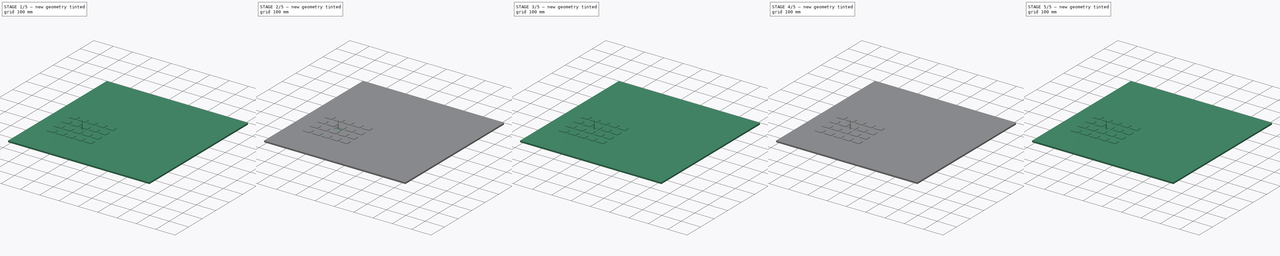
[diagram: build sequence overview — one tinted view per stage of 5, left to right]
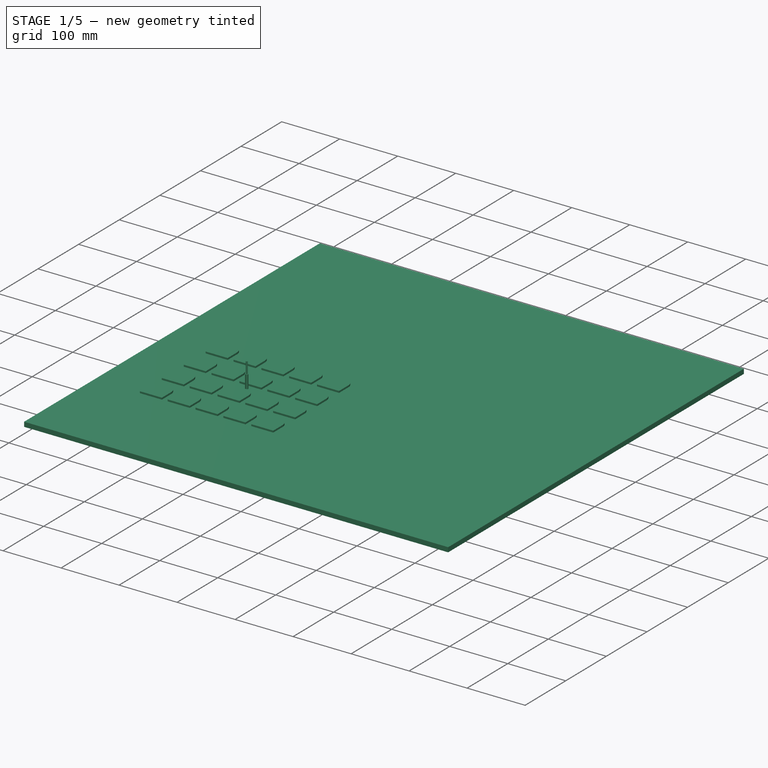
[diagram: stage 1 of 5 — iso view after this stage's code; geometry added in this stage tinted green]
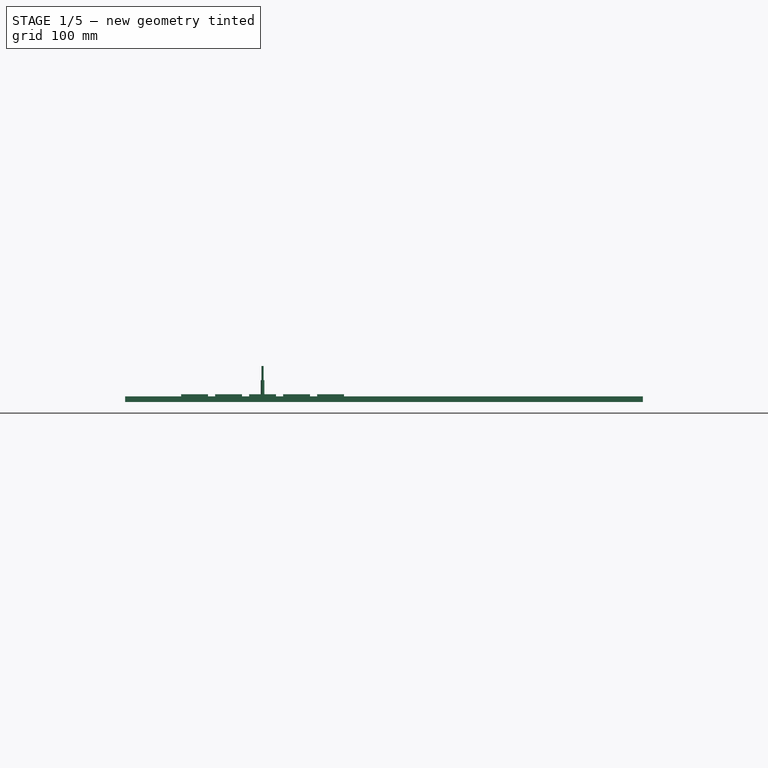
[diagram: stage 1 of 5 — front view after this stage's code; geometry added in this stage tinted green]
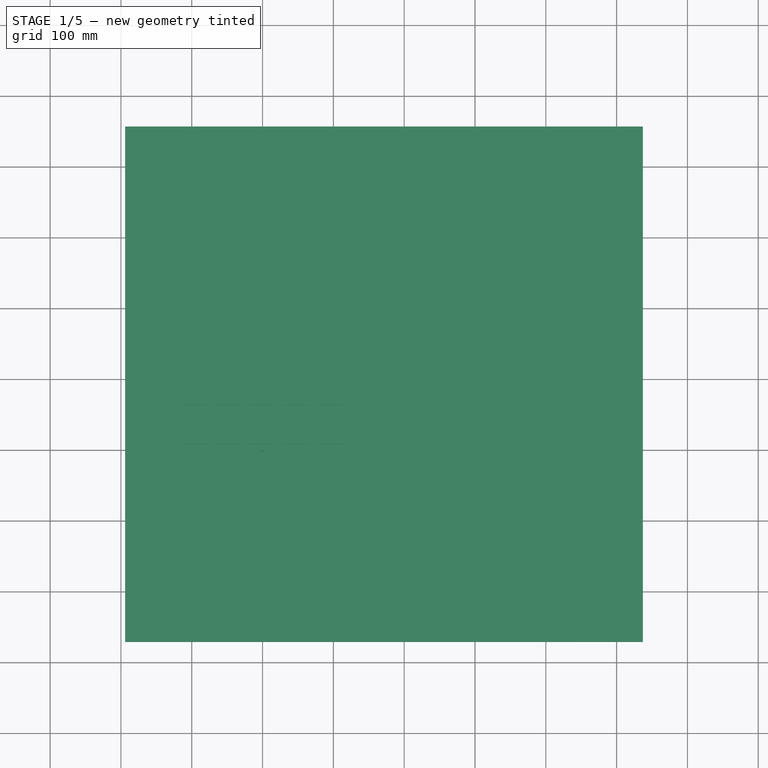
[diagram: stage 1 of 5 — top view after this stage's code; geometry added in this stage tinted green]
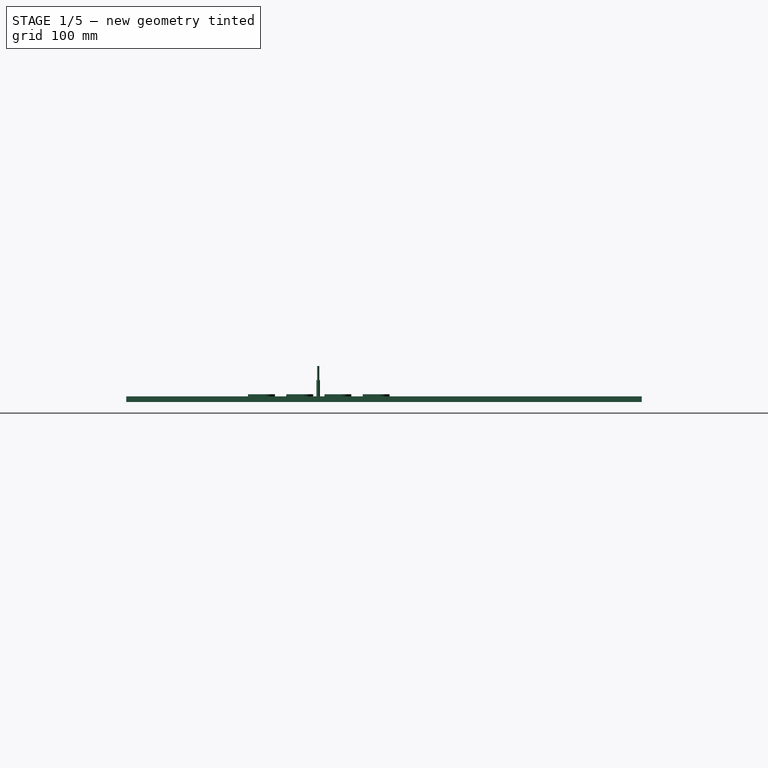
[diagram: stage 1 of 5 — right view after this stage's code; geometry added in this stage tinted green]
FCSTD DOCUMENT  (FreeCAD 0.21R33771 (Git))
Label: logic-gates
License: All rights reserved
LicenseURL: http://en.wikipedia.org/wiki/All_rights_reserved
objects: Sketcher::SketchObject×44, PartDesign::Pad×40, PartDesign::SubShapeBinder×40, PartDesign::Body×35, PartDesign::Pocket×28, PartDesign::Fillet×16, PartDesign::FeatureBase×16, App::Part×7, PartDesign::Thickness×4, PartDesign::Hole×4, PartDesign::Boolean×4, PartDesign::ShapeBinder×3, Part::FeaturePython×3, App::DocumentObjectGroup×3, Spreadsheet::Sheet×2, Part::Fillet×2, Part::Box×2, Path::FeaturePython×2, PartDesign::PolarPattern×1, Image::ImagePlane×1, +4 more types
note: 333 computed .brp shape members not serialized (recipe doc carries the construction recipe); baked Part::Feature solids carry a one-line shape summary decoded from their .brp

FEATURE [PartDesign::Body] Body  label="Board"
  Group = -> [Sketch,Pad]
  Origin = -> Origin
  Tip = -> Pad
FEATURE [Sketcher::SketchObject] Sketch003
  FullyConstrained = true
  MapMode = 5
  expr: Constraints[1] = Spreadsheet.DiodeDiameter / 2
  expr: Constraints[2] = Spreadsheet.DiodeYSeparation
  sketch-geometry (1):
    g0: Circle CenterX=0 CenterY=7 CenterZ=0 NormalX=0 NormalY=0 NormalZ=1 AngleXU=0 Radius=2.5
  constraints (3):
    c: PointOnObject(g0,g-2)
    c: Radius(g0) = 2.5
    c: DistanceY(g-1,g0) = 7
FEATURE [PartDesign::Pad] Pad003
  Direction = (0,0,1)
  Length = 7
  Length2 = 10
  Profile = -> Sketch003
  ReferenceAxis = -> Sketch003 [N_Axis]
  Type = 0
FEATURE [Part::Fillet] Fillet002  label="LED"
  Base = -> Pad003
  Edges = 1 edges r=2: [Edge3]
  Placement = pos=(0,0,-1) rot=(0,0,1;0rad)
FEATURE [Sketcher::SketchObject] Sketch022
  FullyConstrained = true
  MapMode = 5
  Placement = pos=(0,0,0) rot=(1,0,0;1.5708rad)
  Support = -> [XZ_Plane015]
  expr: Constraints[10] = Spreadsheet.ClosingTabZOffset
  expr: Constraints[7] = 1 mm
  expr: Constraints[8] = Spreadsheet.ClosingTabWidth + 0.2
  sketch-geometry (4):
    g0: LineSegment StartX=-1.1 StartY=5.65 StartZ=0 EndX=1.1 EndY=5.65 EndZ=0
    g1: LineSegment StartX=1.1 StartY=5.65 StartZ=0 EndX=1.1 EndY=4.65 EndZ=0
    g2: LineSegment StartX=1.1 StartY=4.65 StartZ=0 EndX=-1.1 EndY=4.65 EndZ=0
    g3: LineSegment StartX=-1.1 StartY=4.65 StartZ=0 EndX=-1.1 EndY=5.65 EndZ=0
  constraints (11):
    c: Coincident(g0,g1)
    c: Coincident(g1,g2)
    c: Coincident(g2,g3)
    c: Coincident(g3,g0)
    c: Horizontal(g2)
    c: Vertical(g1)
    c: Vertical(g3)
    c: DistanceY(g1,g1) = 1
    c: DistanceX(g0,g0) = 2.2
    c: Symmetric(g0,g0,g-2)
    c: DistanceY(g-1,g2) = 4.65
FEATURE [PartDesign::Pad] Pad017
  Direction = (0,-1,-2e-16)
  Length = 7.2
  Length2 = 10
  Placement = pos=(0,0,0) rot=(1,0,0;1.5708rad)
  Profile = -> Sketch022
  ReferenceAxis = -> Sketch022 [N_Axis]
  Type = 0
  expr: Length = Spreadsheet.OutsideBoxWidth / 5
FEATURE [PartDesign::PolarPattern] PolarPattern
  Angle = 360
  Axis = -> Sketch022 [V_Axis]
  BaseFeature = -> Pad017
  Occurrences = 3
  Originals = -> [Pad017]
  Placement = pos=(0,0,0) rot=(1,0,0;1.5708rad)
FEATURE [PartDesign::FeatureBase] Clone002
  BaseFeature = -> Pad017
  Placement = pos=(0,0,0) rot=(1,0,0;1.5708rad)
FEATURE [PartDesign::Body] Body015
  Group = -> [Clone002]
  Origin = -> Origin020
  Placement = pos=(9,0,0) rot=(0,0,1;0rad)
  Tip = -> Clone002
  expr: .Placement.Base.x = Spreadsheet.OutsideBoxWidth / 4
FEATURE [PartDesign::FeatureBase] Clone003
  BaseFeature = -> Pad017
  Placement = pos=(0,0,0) rot=(1,0,0;1.5708rad)
FEATURE [PartDesign::Body] Body028  label="ContainerTopXOR"
  Group = -> [Binder038,Pad039,Binder039,Binder040,Pad040,Sketch044,Pocket023,Sketch045,Pad041,Boolean003,Binder041,Sketch047,Pocket024,Fillet020]
  Origin = -> Origin035
  Tip = -> Fillet020
FEATURE [App::Part] Part005  label="EnclosureXOR"
  Group = -> [Body027,Body028]
  Origin = -> Origin033
FEATURE [Spreadsheet::Sheet] Spreadsheet001  label="SpreadsheetBoard"
  cells = A1='StockWidth; B1(StockWidth)=600; A2='StockHeight; B2(StockHeight)=600; A3='StockThickness; B3(StockThickness)=6; A4='GameBoardInputs; B4(GameBoardInputs)=5; C4='Also same number of outputs; A5='GameCircuitDepth; B5(GameCircuitDepth)=4; C5='Max number of gates connected inline; A6='LogicGatesWidthSeparation; B6(LogicGatesWidthSeparation)=20; A7='LogicGatesHeightSeparation; B7(LogicGatesHeightSeparation)=18; A8='GameBoardBorder; B8(GameBoardBorder)=9; A9='GamePlayableAreaWidth; B9(GamePlayableAreaWidth)==GameBoardWidth - GameControlPanelWidth - GameBoardBorder * 2; A10='GameControlPanelWidth; B10(GameControlPanelWidth)=30; A11='GameBoardWidth; B11(GameBoardWidth)==(LogicGatesWidthSeparation + Spreadsheet.OutsideBoxWidth) * (GameBoardInputs - 1) + LogicGatesWidthSeparation + GameBoardBorder * 2 + GameControlPanelWidth; A12='GameBoardHeight; B12(GameBoardHeight)==(LogicGatesHeightSeparation + Spreadsheet.OutsideBoxHeight) * GameCircuitDepth + LogicGatesHeightSeparation + GameBoardBorder * 2; A13='GameBoardCornerRadius; B13(GameBoardCornerRadius)=12; A14='GameBoardLayerCount; B14(GameBoardLayerCount)=4; A15='GameBoardLayerThickness; B15(GameBoardLayerThickness)=6; A16='GameBoardThickness; B16(GameBoardThickness)==GameBoardLayerCount * GameBoardLayerThickness; A17='GameBoardScrewHoleDiameter; B17(GameBoardScrewHoleDiameter)=3.3; A18='DiodeDiameter; B18(DiodeDiameter)=5; A19='ConnectorWidth; B19(ConnectorWidth)=2.52; A20='ConnectorLength; B20(ConnectorLength)=21.2; A21='LedInputSeparation; B21(LedInputSeparation)==(GamePlayableAreaWidth - ConnectorWidth) / GameBoardInputs; C21==(GamePlayableAreaWidth - ConnectorWidth) / (GameBoardInputs - 1); A22='LogicGatesVerticalSeparation; B22(LogicGatesVerticalSeparation)==(GameBoardHeight - GameBoardBorder * 2 - ConnectorLength) / 4; A23='ScreenWidth; B23(ScreenWidth)=20; A24='ScreenHeight; B24(ScreenHeight)=32; A25='RotaryEncoderDiameter; B25(RotaryEncoderDiameter)=7; A26='PowerSwitchWidth; B26(PowerSwitchWidth)=10; A27='PowerSwitchHeight; B27(PowerSwitchHeight)=5
FEATURE [Sketcher::SketchObject] Sketch048
  FullyConstrained = true
  MapMode = 5
  Support = -> [XY_Plane041]
  expr: Constraints[21] = Spreadsheet001.GameBoardCornerRadius
  expr: Constraints[29] = Spreadsheet001.GameBoardScrewHoleDiameter / 2
  expr: Constraints[35] = Spreadsheet001.GamePlayableAreaWidth / 2 + Spreadsheet001.GameBoardBorder
  expr: Constraints[38] = Spreadsheet001.GameBoardBorder / 2
  expr: Constraints[44] = Spreadsheet001.GameBoardBorder / 2
  expr: Constraints[4] = Spreadsheet001.GameBoardWidth
  expr: Constraints[57] = Spreadsheet001.GameBoardBorder / 2
  expr: Constraints[5] = Spreadsheet001.GameBoardHeight
  expr: Constraints[62] = Spreadsheet001.GameBoardBorder / 2
  expr: Constraints[64] = Spreadsheet001.GameBoardBorder / 2
  expr: Constraints[68] = Spreadsheet001.GameBoardBorder / 2
  expr: Constraints[70] = Spreadsheet001.GameBoardBorder / 2
  expr: Constraints[78] = Spreadsheet001.GameBoardBorder / 2
  expr: Constraints[80] = Spreadsheet001.GameControlPanelWidth / 2
  expr: Constraints[82] = Spreadsheet001.GameControlPanelWidth / 2
  sketch-geometry (30):
    g0: LineSegment StartX=-131 StartY=126 StartZ=0 EndX=161 EndY=126 EndZ=0
    g1: LineSegment StartX=161 StartY=126 StartZ=0 EndX=161 EndY=-126 EndZ=0
    g2: LineSegment StartX=161 StartY=-126 StartZ=0 EndX=-131 EndY=-126 EndZ=0
    g3: LineSegment StartX=-131 StartY=-126 StartZ=0 EndX=-131 EndY=126 EndZ=0
    g4: ArcOfCircle CenterX=-119 CenterY=114 CenterZ=0 NormalX=0 NormalY=0 NormalZ=1 AngleXU=0 Radius=12 StartAngle=1.5708 EndAngle=3.14159
    g5: LineSegment StartX=-119 StartY=126 StartZ=0 EndX=149 EndY=126 EndZ=0
    g6: ArcOfCircle CenterX=149 CenterY=114 CenterZ=0 NormalX=0 NormalY=0 NormalZ=1 AngleXU=0 Radius=12 StartAngle=0 EndAngle=1.5708
    g7: LineSegment StartX=161 StartY=114 StartZ=0 EndX=161 EndY=-114 EndZ=0
    g8: ArcOfCircle CenterX=149 CenterY=-114 CenterZ=0 NormalX=0 NormalY=0 NormalZ=1 AngleXU=0 Radius=12 StartAngle=4.71239 EndAngle=6.28319
    g9: LineSegment StartX=149 StartY=-126 StartZ=0 EndX=-119 EndY=-126 EndZ=0
    g10: ArcOfCircle CenterX=-119 CenterY=-114 CenterZ=0 NormalX=0 NormalY=0 NormalZ=1 AngleXU=0 Radius=12 StartAngle=3.14159 EndAngle=4.71239
    g11: LineSegment StartX=-131 StartY=-114 StartZ=0 EndX=-131 EndY=114 EndZ=0
    g12: GeomPoint X=-131 Y=126 Z=0
    g13: GeomPoint X=161 Y=-126 Z=0
    g14: Circle CenterX=-124.303 CenterY=119.303 CenterZ=0 NormalX=0 NormalY=0 NormalZ=1 AngleXU=0 Radius=1.65
    g15: Circle CenterX=154.303 CenterY=119.303 CenterZ=0 NormalX=0 NormalY=0 NormalZ=1 AngleXU=0 Radius=1.65
    g16: Circle CenterX=154.303 CenterY=-119.303 CenterZ=0 NormalX=0 NormalY=0 NormalZ=1 AngleXU=0 Radius=1.65
    g17: Circle CenterX=-124.303 CenterY=-119.303 CenterZ=0 NormalX=0 NormalY=0 NormalZ=1 AngleXU=0 Radius=1.65
    g18: Circle CenterX=15 CenterY=-121.5 CenterZ=0 NormalX=0 NormalY=0 NormalZ=1 AngleXU=0 Radius=1.65
    g19: Circle CenterX=15 CenterY=121.5 CenterZ=0 NormalX=0 NormalY=0 NormalZ=1 AngleXU=0 Radius=1.65
    g20: LineSegment StartX=-126.5 StartY=121.5 StartZ=0 EndX=156.5 EndY=121.5 EndZ=0
    g21: LineSegment StartX=156.5 StartY=-121.5 StartZ=0 EndX=-126.5 EndY=-121.5 EndZ=0
    g22: LineSegment StartX=-126.5 StartY=126 StartZ=0 EndX=-126.5 EndY=-126 EndZ=0
    g23: LineSegment StartX=156.5 StartY=-126 StartZ=0 EndX=156.5 EndY=126 EndZ=0
    g24: Circle CenterX=-126.5 CenterY=0 CenterZ=0 NormalX=0 NormalY=0 NormalZ=1 AngleXU=0 Radius=1.65
    g25: Circle CenterX=156.5 CenterY=0 CenterZ=0 NormalX=0 NormalY=0 NormalZ=1 AngleXU=0 Radius=1.65
    g26: LineSegment StartX=-127.485 StartY=-122.485 StartZ=0 EndX=-119 EndY=-114 EndZ=0
    g27: LineSegment StartX=-127.485 StartY=122.485 StartZ=0 EndX=-119 EndY=114 EndZ=0
    g28: LineSegment StartX=157.485 StartY=122.485 StartZ=0 EndX=149 EndY=114 EndZ=0
    g29: LineSegment StartX=157.485 StartY=-122.485 StartZ=0 EndX=149 EndY=-114 EndZ=0
  constraints (85):
    c: Horizontal(g0)
    c: Horizontal(g2)
    c: Vertical(g1)
    c: Vertical(g3)
    c: DistanceX(g0,g0) = 292
    c: DistanceY(g3,g3) = 252
    c: Tangent(g6,g7) = 1.5708
    c: Tangent(g7,g8) = 1.5708
    c: Tangent(g8,g9) = 1.5708
    c: Tangent(g10,g11) = 1.5708
    c: Tangent(g11,g4) = 1.5708
    c: Horizontal(g5)
    c: Horizontal(g9)
    c: Vertical(g7)
    c: Equal(g4,g6)
    c: Equal(g6,g8)
    c: Equal(g8,g10)
    c: PointOnObject(g12,g5)
    c: PointOnObject(g12,g11)
    c: PointOnObject(g13,g7)
    c: PointOnObject(g13,g9)
    c: Radius(g4) = 12
    c: Equal(g14,g17)
    c: Equal(g17,g18)
    c: Equal(g18,g16)
    c: Equal(g16,g15)
    c: Equal(g15,g19)
    c: Horizontal(g20)
    c: Horizontal(g21)
    c: Radius(g14) = 1.65
    c: PointOnObject(g24,g-1)
    c: PointOnObject(g25,g-1)
    c: Equal(g25,g24)
    c: Equal(g24,g14)
    c: Symmetric(g4,g10,g-1)
    c: DistanceX(g4,g-1) = 131
    c: Tangent(g5,g4) = 1.5708
    c: PointOnObject(g22,g0)
    c: DistanceX(g0,g22) = 4.5
    c: Tangent(g9,g10) = 1.5708
    c: PointOnObject(g22,g2)
    c: Vertical(g22)
    c: Tangent(g6,g5) = 1.5708
    c: PointOnObject(g23,g0)
    c: DistanceX(g23,g0) = 4.5
    c: PointOnObject(g23,g2)
    c: Vertical(g23)
    c: Coincident(g26,g10)
    c: Coincident(g27,g4)
    c: Coincident(g28,g6)
    c: Coincident(g29,g8)
    c: PointOnObject(g21,g23)
    c: PointOnObject(g16,g29)
    c: Coincident(g2,g1)
    c: Coincident(g13,g1)
    c: PointOnObject(g29,g8)
    c: PointOnObject(g21,g29)
    c: Distance(g16,g29) = 4.5
    c: PointOnObject(g21,g26)
    c: PointOnObject(g21,g22)
    c: Coincident(g2,g3)
    c: PointOnObject(g26,g10)
    c: DistanceY(g22,g21) = 4.5
    c: PointOnObject(g17,g26)
    c: Distance(g17,g26) = 4.5
    c: Coincident(g12,g3)
    c: Coincident(g12,g0)
    c: PointOnObject(g20,g22)
    c: DistanceY(g20,g22) = 4.5
    c: PointOnObject(g14,g27)
    c: Distance(g14,g27) = 4.5
    c: PointOnObject(g27,g4)
    c: PointOnObject(g20,g27)
    c: PointOnObject(g15,g28)
    c: PointOnObject(g20,g23)
    c: Coincident(g1,g0)
    c: PointOnObject(g0,g28)
    c: PointOnObject(g28,g6)
    c: Distance(g15,g28) = 4.5
    c: PointOnObject(g18,g21)
    c: DistanceX(g-1,g18) = 15
    c: PointOnObject(g19,g20)
    c: DistanceX(g-1,g19) = 15
    c: PointOnObject(g24,g22)
    c: PointOnObject(g25,g23)
FEATURE [PartDesign::Pad] Pad043
  Direction = (0,0,1)
  Length = 6
  Length2 = 10
  Profile = -> Sketch048
  ReferenceAxis = -> Sketch048 [N_Axis]
  Type = 0
  expr: Length = Spreadsheet001.GameBoardLayerThickness
FEATURE [PartDesign::Body] Body032  label="GameBoardLayerBottom"
  Group = -> [Sketch048,Pad043]
  Origin = -> Origin040
  Placement = pos=(0,0,-24) rot=(0,0,1;0rad)
  Tip = -> Pad043
  expr: .Placement.Base.z = -Spreadsheet001.GameBoardLayerCount * Spreadsheet001.GameBoardLayerThickness
FEATURE [Sketcher::SketchObject] Sketch049
  FullyConstrained = true
  MapMode = 5
  Support = -> [XY_Plane042]
  expr: Constraints[31] = Spreadsheet001.GameBoardCornerRadius
  expr: Constraints[50] = Spreadsheet001.GameBoardCornerRadius / 3
  expr: Constraints[52] = Spreadsheet001.GameBoardHeight / 2 - Spreadsheet001.GameBoardBorder
  expr: Constraints[53] = Spreadsheet001.GameBoardBorder
  expr: Constraints[54] = Spreadsheet001.GamePlayableAreaWidth / 2 + Spreadsheet001.GameBoardBorder
  expr: Constraints[55] = Spreadsheet001.GameBoardBorder
  expr: Constraints[56] = Spreadsheet001.GameBoardBorder
  expr: Constraints[8] = Spreadsheet001.GameBoardWidth
  expr: Constraints[9] = Spreadsheet001.GameBoardHeight
  sketch-geometry (24):
    g0: LineSegment StartX=-131 StartY=126 StartZ=0 EndX=161 EndY=126 EndZ=0
    g1: LineSegment StartX=161 StartY=126 StartZ=0 EndX=161 EndY=-126 EndZ=0
    g2: LineSegment StartX=161 StartY=-126 StartZ=0 EndX=-131 EndY=-126 EndZ=0
    g3: LineSegment StartX=-131 StartY=-126 StartZ=0 EndX=-131 EndY=126 EndZ=0
    g4: ArcOfCircle CenterX=-119 CenterY=114 CenterZ=0 NormalX=0 NormalY=0 NormalZ=1 AngleXU=0 Radius=12 StartAngle=1.5708 EndAngle=3.14159
    g5: LineSegment StartX=-119 StartY=126 StartZ=0 EndX=149 EndY=126 EndZ=0
    g6: ArcOfCircle CenterX=149 CenterY=114 CenterZ=0 NormalX=0 NormalY=0 NormalZ=1 AngleXU=0 Radius=12 StartAngle=5e-16 EndAngle=1.5708
    g7: LineSegment StartX=161 StartY=114 StartZ=0 EndX=161 EndY=-114 EndZ=0
    g8: ArcOfCircle CenterX=149 CenterY=-114 CenterZ=0 NormalX=0 NormalY=0 NormalZ=1 AngleXU=0 Radius=12 StartAngle=4.71239 EndAngle=6.28319
    g9: LineSegment StartX=149 StartY=-126 StartZ=0 EndX=-119 EndY=-126 EndZ=0
    g10: ArcOfCircle CenterX=-119 CenterY=-114 CenterZ=0 NormalX=0 NormalY=0 NormalZ=1 AngleXU=0 Radius=12 StartAngle=3.14159 EndAngle=4.71239
    g11: LineSegment StartX=-131 StartY=-114 StartZ=0 EndX=-131 EndY=114 EndZ=0
    g12: GeomPoint X=-131 Y=126 Z=0
    g13: GeomPoint X=161 Y=-126 Z=0
    g14: ArcOfCircle CenterX=-118 CenterY=113 CenterZ=0 NormalX=0 NormalY=0 NormalZ=1 AngleXU=0 Radius=4 StartAngle=1.5708 EndAngle=3.14159
    g15: LineSegment StartX=-118 StartY=117 StartZ=0 EndX=148 EndY=117 EndZ=0
    g16: ArcOfCircle CenterX=148 CenterY=113 CenterZ=0 NormalX=0 NormalY=0 NormalZ=1 AngleXU=0 Radius=4 StartAngle=4e-16 EndAngle=1.5708
    g17: LineSegment StartX=152 StartY=113 StartZ=0 EndX=152 EndY=-113 EndZ=0
    g18: ArcOfCircle CenterX=148 CenterY=-113 CenterZ=0 NormalX=0 NormalY=0 NormalZ=1 AngleXU=0 Radius=4 StartAngle=4.71239 EndAngle=6.28319
    g19: LineSegment StartX=148 StartY=-117 StartZ=0 EndX=-118 EndY=-117 EndZ=0
    g20: ArcOfCircle CenterX=-118 CenterY=-113 CenterZ=0 NormalX=0 NormalY=0 NormalZ=1 AngleXU=0 Radius=4 StartAngle=3.14159 EndAngle=4.71239
    g21: LineSegment StartX=-122 StartY=-113 StartZ=0 EndX=-122 EndY=113 EndZ=0
    g22: GeomPoint X=-122 Y=117 Z=0
    g23: GeomPoint X=152 Y=-117 Z=0
  constraints (57):
    c: Coincident(g0,g1)
    c: Coincident(g1,g2)
    c: Coincident(g2,g3)
    c: Coincident(g3,g0)
    c: Horizontal(g0)
    c: Horizontal(g2)
    c: Vertical(g1)
    c: Vertical(g3)
    c: DistanceX(g0,g0) = 292
    c: DistanceY(g3,g3) = 252
    c: Tangent(g4,g5) = 1.5708
    c: Tangent(g5,g6) = 1.5708
    c: Tangent(g6,g7) = 1.5708
    c: Tangent(g7,g8) = 1.5708
    c: Tangent(g8,g9) = 1.5708
    c: Tangent(g9,g10) = 1.5708
    c: Tangent(g10,g11) = 1.5708
    c: Tangent(g11,g4) = 1.5708
    c: Horizontal(g5)
    c: Horizontal(g9)
    c: Vertical(g7)
    c: Vertical(g11)
    c: Equal(g4,g6)
    c: Equal(g6,g8)
    c: Equal(g8,g10)
    c: PointOnObject(g12,g5)
    c: PointOnObject(g12,g11)
    c: PointOnObject(g13,g7)
    c: PointOnObject(g13,g9)
    c: Coincident(g12,g0)
    c: Coincident(g13,g1)
    c: Radius(g4) = 12
    c: Tangent(g14,g15) = 1.5708
    c: Tangent(g15,g16) = 1.5708
    c: Tangent(g16,g17) = 1.5708
    c: Tangent(g17,g18) = 1.5708
    c: Tangent(g18,g19) = 1.5708
    c: Tangent(g19,g20) = 1.5708
    c: Tangent(g20,g21) = 1.5708
    c: Tangent(g21,g14) = 1.5708
    c: Horizontal(g15)
    c: Horizontal(g19)
    c: Vertical(g17)
    c: Vertical(g21)
    c: Equal(g14,g16)
    c: Equal(g18,g20)
    c: PointOnObject(g22,g15)
    c: PointOnObject(g22,g21)
    c: PointOnObject(g23,g17)
    c: PointOnObject(g23,g19)
    c: Radius(g14) = 4
    c: Symmetric(g15,g18,g-1)
    c: DistanceY(g-1,g14) = 117
    c: DistanceX(g16,g6) = 9
    c: DistanceX(g4,g-1) = 131
    c: DistanceX(g4,g14) = 9
    c: DistanceY(g15,g5) = 9
FEATURE [PartDesign::Pad] Pad044
  Direction = (0,0,1)
  Length = 6
  Length2 = 10
  Profile = -> Sketch049
  ReferenceAxis = -> Sketch049 [N_Axis]
  Type = 0
  expr: Length = Spreadsheet001.GameBoardLayerThickness
FEATURE [Sketcher::SketchObject] Sketch050
  FullyConstrained = true
  MapMode = 5
  Support = -> [XY_Plane043]
  expr: Constraints[168] = Spreadsheet001.ConnectorWidth
  expr: Constraints[169] = Spreadsheet001.ConnectorLength
  expr: Constraints[182] = Spreadsheet001.LedInputSeparation
  expr: Constraints[228] = Spreadsheet001.GameBoardHeight - Spreadsheet001.GameBoardBorder * 2 - Spreadsheet001.ConnectorWidth - 1
  expr: Constraints[307] = Spreadsheet001.ConnectorWidth
  expr: Constraints[308] = Spreadsheet001.ConnectorLength
  expr: Constraints[30] = Spreadsheet001.GameBoardCornerRadius
  expr: Constraints[321] = Spreadsheet001.LedInputSeparation - 0.2
  expr: Constraints[390] = Spreadsheet001.LogicGatesVerticalSeparation
  expr: Constraints[48] = Spreadsheet001.GameBoardCornerRadius / 3
  expr: Constraints[50] = Spreadsheet001.GameBoardHeight / 2 - Spreadsheet001.GameBoardBorder * 1.5
  expr: Constraints[51] = Spreadsheet001.GameBoardBorder / 2
  expr: Constraints[52] = Spreadsheet001.GameControlPanelWidth
  expr: Constraints[549] = 56
  expr: Constraints[554] = Spreadsheet001.GameBoardBorder / 1.5
  expr: Constraints[58] = Spreadsheet001.GamePlayableAreaWidth
  expr: Constraints[59] = Spreadsheet001.GameBoardHeight - Spreadsheet001.GameBoardBorder * 2
  expr: Constraints[60] = Spreadsheet001.GameBoardBorder
  expr: Constraints[61] = Spreadsheet001.GameBoardBorder
  expr: Constraints[63] = Spreadsheet001.GamePlayableAreaWidth / 2 + Spreadsheet001.GameBoardBorder
  expr: Constraints[64] = Spreadsheet.ConnectorDiameter / 2 + 0.1
  expr: Constraints[68] = Spreadsheet001.LedInputSeparation
  expr: Constraints[87] = Spreadsheet001.LogicGatesVerticalSeparation
  expr: Constraints[8] = Spreadsheet001.GameBoardWidth
  expr: Constraints[9] = Spreadsheet001.GameBoardHeight
  sketch-geometry (208):
    g0: LineSegment StartX=-131 StartY=126 StartZ=0 EndX=161 EndY=126 EndZ=0
    g1: LineSegment StartX=161 StartY=126 StartZ=0 EndX=161 EndY=-126 EndZ=0
    g2: LineSegment StartX=161 StartY=-126 StartZ=0 EndX=-131 EndY=-126 EndZ=0
    g3: LineSegment StartX=-131 StartY=-126 StartZ=0 EndX=-131 EndY=126 EndZ=0
    g4: ArcOfCircle CenterX=-119 CenterY=114 CenterZ=0 NormalX=0 NormalY=0 NormalZ=1 AngleXU=0 Radius=12 StartAngle=1.5708 EndAngle=3.14159
    g5: LineSegment StartX=-119 StartY=126 StartZ=0 EndX=149 EndY=126 EndZ=0
    g6: ArcOfCircle CenterX=149 CenterY=114 CenterZ=0 NormalX=0 NormalY=0 NormalZ=1 AngleXU=0 Radius=12 StartAngle=4e-16 EndAngle=1.5708
    g7: LineSegment StartX=161 StartY=114 StartZ=0 EndX=161 EndY=-114 EndZ=0
    g8: ArcOfCircle CenterX=149 CenterY=-114 CenterZ=0 NormalX=0 NormalY=0 NormalZ=1 AngleXU=0 Radius=12 StartAngle=4.71239 EndAngle=6.28319
    g9: LineSegment StartX=149 StartY=-126 StartZ=0 EndX=-119 EndY=-126 EndZ=0
    g10: ArcOfCircle CenterX=-119 CenterY=-114 CenterZ=0 NormalX=0 NormalY=0 NormalZ=1 AngleXU=0 Radius=12 StartAngle=3.14159 EndAngle=4.71239
    g11: LineSegment StartX=-131 StartY=-114 StartZ=0 EndX=-131 EndY=114 EndZ=0
    g12: GeomPoint X=-131 Y=126 Z=0
    g13: GeomPoint X=161 Y=-126 Z=0
    g14: ArcOfCircle CenterX=130.5 CenterY=108.5 CenterZ=0 NormalX=0 NormalY=0 NormalZ=1 AngleXU=0 Radius=4 StartAngle=1.5708 EndAngle=3.14159
    g15: LineSegment StartX=130.5 StartY=112.5 StartZ=0 EndX=152.5 EndY=112.5 EndZ=0
    g16: ArcOfCircle CenterX=152.5 CenterY=108.5 CenterZ=0 NormalX=0 NormalY=0 NormalZ=1 AngleXU=0 Radius=4 StartAngle=1e-15 EndAngle=1.5708
    g17: LineSegment StartX=156.5 StartY=108.5 StartZ=0 EndX=156.5 EndY=6 EndZ=0
    g18: ArcOfCircle CenterX=152.5 CenterY=-108.5 CenterZ=0 NormalX=0 NormalY=0 NormalZ=1 AngleXU=0 Radius=4 StartAngle=4.71239 EndAngle=6.28319
    g19: LineSegment StartX=152.5 StartY=-112.5 StartZ=0 EndX=130.5 EndY=-112.5 EndZ=0
    g20: ArcOfCircle CenterX=130.5 CenterY=-108.5 CenterZ=0 NormalX=0 NormalY=0 NormalZ=1 AngleXU=0 Radius=4 StartAngle=3.14159 EndAngle=4.71239
    g21: LineSegment StartX=126.5 StartY=-108.5 StartZ=0 EndX=126.5 EndY=108.5 EndZ=0
    g22: GeomPoint X=126.5 Y=112.5 Z=0
    g23: GeomPoint X=156.5 Y=-112.5 Z=0
    g24: LineSegment StartX=-122 StartY=117 StartZ=0 EndX=122 EndY=117 EndZ=0
    g25: LineSegment StartX=122 StartY=117 StartZ=0 EndX=122 EndY=-117 EndZ=0
    g26: LineSegment StartX=122 StartY=-117 StartZ=0 EndX=-122 EndY=-117 EndZ=0
    g27: Circle CenterX=-96.592 CenterY=79.8 CenterZ=0 NormalX=0 NormalY=0 NormalZ=1 AngleXU=0 Radius=3.85
    g28: Circle CenterX=-48.296 CenterY=79.8 CenterZ=0 NormalX=0 NormalY=0 NormalZ=1 AngleXU=0 Radius=3.85
    g29: LineSegment StartX=-96.592 StartY=79.8 StartZ=0 EndX=-48.296 EndY=79.8 EndZ=0
    g30: Circle CenterX=0 CenterY=79.8 CenterZ=0 NormalX=0 NormalY=0 NormalZ=1 AngleXU=0 Radius=3.85
    g31: LineSegment StartX=-48.296 StartY=79.8 StartZ=0 EndX=0 EndY=79.8 EndZ=0
    g32: Circle CenterX=48.296 CenterY=79.8 CenterZ=0 NormalX=0 NormalY=0 NormalZ=1 AngleXU=0 Radius=3.85
    g33: LineSegment StartX=0 StartY=79.8 StartZ=0 EndX=48.296 EndY=79.8 EndZ=0
    g34: Circle CenterX=96.592 CenterY=79.8 CenterZ=0 NormalX=0 NormalY=0 NormalZ=1 AngleXU=0 Radius=3.85
    g35: LineSegment StartX=48.296 StartY=79.8 StartZ=0 EndX=96.592 EndY=79.8 EndZ=0
    g36: Circle CenterX=-96.592 CenterY=26.6 CenterZ=0 NormalX=0 NormalY=0 NormalZ=1 AngleXU=0 Radius=3.85
    g37: LineSegment StartX=-96.592 StartY=79.8 StartZ=0 EndX=-96.592 EndY=26.6 EndZ=0
    g38: Circle CenterX=-48.296 CenterY=26.6 CenterZ=0 NormalX=0 NormalY=0 NormalZ=1 AngleXU=0 Radius=3.85
    g39: LineSegment StartX=-96.592 StartY=26.6 StartZ=0 EndX=-48.296 EndY=26.6 EndZ=0
    g40: Circle CenterX=-7.1e-15 CenterY=26.6 CenterZ=0 NormalX=0 NormalY=0 NormalZ=1 AngleXU=0 Radius=3.85
    g41: LineSegment StartX=-48.296 StartY=26.6 StartZ=0 EndX=-7.1e-15 EndY=26.6 EndZ=0
    g42: Circle CenterX=48.296 CenterY=26.6 CenterZ=0 NormalX=0 NormalY=0 NormalZ=1 AngleXU=0 Radius=3.85
    g43: LineSegment StartX=-7.1e-15 StartY=26.6 StartZ=0 EndX=48.296 EndY=26.6 EndZ=0
    g44: Circle CenterX=96.592 CenterY=26.6 CenterZ=0 NormalX=0 NormalY=0 NormalZ=1 AngleXU=0 Radius=3.85
    g45: LineSegment StartX=48.296 StartY=26.6 StartZ=0 EndX=96.592 EndY=26.6 EndZ=0
    g46: Circle CenterX=-96.592 CenterY=-26.6 CenterZ=0 NormalX=0 NormalY=0 NormalZ=1 AngleXU=0 Radius=3.85
    g47: LineSegment StartX=-96.592 StartY=26.6 StartZ=0 EndX=-96.592 EndY=-26.6 EndZ=0
    g48: Circle CenterX=-48.296 CenterY=-26.6 CenterZ=0 NormalX=0 NormalY=0 NormalZ=1 AngleXU=0 Radius=3.85
    g49: LineSegment StartX=-96.592 StartY=-26.6 StartZ=0 EndX=-48.296 EndY=-26.6 EndZ=0
    g50: Circle CenterX=-1.42e-14 CenterY=-26.6 CenterZ=0 NormalX=0 NormalY=0 NormalZ=1 AngleXU=0 Radius=3.85
    g51: LineSegment StartX=-48.296 StartY=-26.6 StartZ=0 EndX=-1.42e-14 EndY=-26.6 EndZ=0
    g52: Circle CenterX=48.296 CenterY=-26.6 CenterZ=0 NormalX=0 NormalY=0 NormalZ=1 AngleXU=0 Radius=3.85
    g53: LineSegment StartX=-1.42e-14 StartY=-26.6 StartZ=0 EndX=48.296 EndY=-26.6 EndZ=0
    g54: Circle CenterX=96.592 CenterY=-26.6 CenterZ=0 NormalX=0 NormalY=0 NormalZ=1 AngleXU=0 Radius=3.85
    g55: LineSegment StartX=48.296 StartY=-26.6 StartZ=0 EndX=96.592 EndY=-26.6 EndZ=0
    g56: Circle CenterX=-96.592 CenterY=-79.8 CenterZ=0 NormalX=0 NormalY=0 NormalZ=1 AngleXU=0 Radius=3.85
    g57: LineSegment StartX=-96.592 StartY=-26.6 StartZ=0 EndX=-96.592 EndY=-79.8 EndZ=0
    g58: Circle CenterX=-48.296 CenterY=-79.8 CenterZ=0 NormalX=0 NormalY=0 NormalZ=1 AngleXU=0 Radius=3.85
    g59: LineSegment StartX=-96.592 StartY=-79.8 StartZ=0 EndX=-48.296 EndY=-79.8 EndZ=0
    g60: Circle CenterX=0 CenterY=-79.8 CenterZ=0 NormalX=0 NormalY=0 NormalZ=1 AngleXU=0 Radius=3.85
    g61: LineSegment StartX=-48.296 StartY=-79.8 StartZ=0 EndX=0 EndY=-79.8 EndZ=0
    g62: Circle CenterX=48.296 CenterY=-79.8 CenterZ=0 NormalX=0 NormalY=0 NormalZ=1 AngleXU=0 Radius=3.85
    g63: LineSegment StartX=0 StartY=-79.8 StartZ=0 EndX=48.296 EndY=-79.8 EndZ=0
    g64: Circle CenterX=96.592 CenterY=-79.8 CenterZ=0 NormalX=0 NormalY=0 NormalZ=1 AngleXU=0 Radius=3.85
    g65: LineSegment StartX=48.296 StartY=-79.8 StartZ=0 EndX=96.592 EndY=-79.8 EndZ=0
    g66: LineSegment StartX=-107.192 StartY=116.5 StartZ=0 EndX=-85.992 EndY=116.5 EndZ=0
    g67: LineSegment StartX=-85.992 StartY=116.5 StartZ=0 EndX=-85.992 EndY=113.98 EndZ=0
    g68: LineSegment StartX=-85.992 StartY=113.98 StartZ=0 EndX=-107.192 EndY=113.98 EndZ=0
    g69: LineSegment StartX=-107.192 StartY=113.98 StartZ=0 EndX=-107.192 EndY=116.5 EndZ=0
    g70: LineSegment StartX=-58.896 StartY=116.5 StartZ=0 EndX=-37.696 EndY=116.5 EndZ=0
    g71: LineSegment StartX=-37.696 StartY=116.5 StartZ=0 EndX=-37.696 EndY=113.98 EndZ=0
    g72: LineSegment StartX=-37.696 StartY=113.98 StartZ=0 EndX=-58.896 EndY=113.98 EndZ=0
    g73: LineSegment StartX=-58.896 StartY=113.98 StartZ=0 EndX=-58.896 EndY=116.5 EndZ=0
    g74: LineSegment StartX=-107.192 StartY=116.5 StartZ=0 EndX=-58.896 EndY=116.5 EndZ=0
    g75: LineSegment StartX=-10.6 StartY=116.5 StartZ=0 EndX=10.6 EndY=116.5 EndZ=0
    g76: LineSegment StartX=10.6 StartY=116.5 StartZ=0 EndX=10.6 EndY=113.98 EndZ=0
    g77: LineSegment StartX=10.6 StartY=113.98 StartZ=0 EndX=-10.6 EndY=113.98 EndZ=0
    g78: LineSegment StartX=-10.6 StartY=113.98 StartZ=0 EndX=-10.6 EndY=116.5 EndZ=0
    g79: LineSegment StartX=-58.896 StartY=116.5 StartZ=0 EndX=-10.6 EndY=116.5 EndZ=0
    g80: LineSegment StartX=37.696 StartY=116.5 StartZ=0 EndX=58.896 EndY=116.5 EndZ=0
    g81: LineSegment StartX=58.896 StartY=116.5 StartZ=0 EndX=58.896 EndY=113.98 EndZ=0
    g82: LineSegment StartX=58.896 StartY=113.98 StartZ=0 EndX=37.696 EndY=113.98 EndZ=0
    g83: LineSegment StartX=37.696 StartY=113.98 StartZ=0 EndX=37.696 EndY=116.5 EndZ=0
    g84: LineSegment StartX=-10.6 StartY=116.5 StartZ=0 EndX=37.696 EndY=116.5 EndZ=0
    g85: LineSegment StartX=85.992 StartY=116.5 StartZ=0 EndX=107.192 EndY=116.5 EndZ=0
    g86: LineSegment StartX=107.192 StartY=116.5 StartZ=0 EndX=107.192 EndY=113.98 EndZ=0
    g87: LineSegment StartX=107.192 StartY=113.98 StartZ=0 EndX=85.992 EndY=113.98 EndZ=0
    g88: LineSegment StartX=85.992 StartY=113.98 StartZ=0 EndX=85.992 EndY=116.5 EndZ=0
    g89: LineSegment StartX=37.696 StartY=116.5 StartZ=0 EndX=85.992 EndY=116.5 EndZ=0
    g90: LineSegment StartX=-107.192 StartY=-113.98 StartZ=0 EndX=-85.992 EndY=-113.98 EndZ=0
    g91: LineSegment StartX=-107.192 StartY=116.5 StartZ=0 EndX=-107.192 EndY=-113.98 EndZ=0
    g92: LineSegment StartX=-85.992 StartY=-113.98 StartZ=0 EndX=-85.992 EndY=-116.5 EndZ=0
    g93: LineSegment StartX=-85.992 StartY=-116.5 StartZ=0 EndX=-107.192 EndY=-116.5 EndZ=0
    g94: LineSegment StartX=-107.192 StartY=-116.5 StartZ=0 EndX=-107.192 EndY=-113.98 EndZ=0
    g95: LineSegment StartX=-58.896 StartY=-113.98 StartZ=0 EndX=-107.192 EndY=-113.98 EndZ=0
    g96: LineSegment StartX=-58.896 StartY=-113.98 StartZ=0 EndX=-37.696 EndY=-113.98 EndZ=0
    g97: LineSegment StartX=-37.696 StartY=-113.98 StartZ=0 EndX=-37.696 EndY=-116.5 EndZ=0
    g98: LineSegment StartX=-37.696 StartY=-116.5 StartZ=0 EndX=-58.896 EndY=-116.5 EndZ=0
    g99: LineSegment StartX=-58.896 StartY=-116.5 StartZ=0 EndX=-58.896 EndY=-113.98 EndZ=0
    g100: LineSegment StartX=-107.192 StartY=-113.98 StartZ=0 EndX=-58.896 EndY=-113.98 EndZ=0
    g101: LineSegment StartX=-10.6 StartY=-113.98 StartZ=0 EndX=10.6 EndY=-113.98 EndZ=0
    g102: LineSegment StartX=10.6 StartY=-113.98 StartZ=0 EndX=10.6 EndY=-116.5 EndZ=0
    g103: LineSegment StartX=10.6 StartY=-116.5 StartZ=0 EndX=-10.6 EndY=-116.5 EndZ=0
    g104: LineSegment StartX=-10.6 StartY=-116.5 StartZ=0 EndX=-10.6 EndY=-113.98 EndZ=0
    g105: LineSegment StartX=-58.896 StartY=-113.98 StartZ=0 EndX=-10.6 EndY=-113.98 EndZ=0
    g106: LineSegment StartX=37.696 StartY=-113.98 StartZ=0 EndX=58.896 EndY=-113.98 EndZ=0
    g107: LineSegment StartX=58.896 StartY=-113.98 StartZ=0 EndX=58.896 EndY=-116.5 EndZ=0
    g108: LineSegment StartX=58.896 StartY=-116.5 StartZ=0 EndX=37.696 EndY=-116.5 EndZ=0
    g109: LineSegment StartX=37.696 StartY=-116.5 StartZ=0 EndX=37.696 EndY=-113.98 EndZ=0
    g110: LineSegment StartX=-10.6 StartY=-113.98 StartZ=0 EndX=37.696 EndY=-113.98 EndZ=0
    g111: LineSegment StartX=85.992 StartY=-113.98 StartZ=0 EndX=107.192 EndY=-113.98 EndZ=0
    g112: LineSegment StartX=107.192 StartY=-113.98 StartZ=0 EndX=107.192 EndY=-116.5 EndZ=0
    g113: LineSegment StartX=107.192 StartY=-116.5 StartZ=0 EndX=85.992 EndY=-116.5 EndZ=0
    g114: LineSegment StartX=85.992 StartY=-116.5 StartZ=0 EndX=85.992 EndY=-113.98 EndZ=0
    g115: LineSegment StartX=37.696 StartY=-113.98 StartZ=0 EndX=85.992 EndY=-113.98 EndZ=0
    g116: LineSegment StartX=-121.5 StartY=61 StartZ=0 EndX=-118.98 EndY=61 EndZ=0
    g117: LineSegment StartX=-118.98 StartY=61 StartZ=0 EndX=-118.98 EndY=39.8 EndZ=0
    g118: LineSegment StartX=-118.98 StartY=39.8 StartZ=0 EndX=-121.5 EndY=39.8 EndZ=0
    g119: LineSegment StartX=-121.5 StartY=39.8 StartZ=0 EndX=-121.5 EndY=61 EndZ=0
    g120: LineSegment StartX=-73.404 StartY=61 StartZ=0 EndX=-70.884 EndY=61 EndZ=0
    g121: LineSegment StartX=-70.884 StartY=61 StartZ=0 EndX=-70.884 EndY=39.8 EndZ=0
    g122: LineSegment StartX=-70.884 StartY=39.8 StartZ=0 EndX=-73.404 EndY=39.8 EndZ=0
    g123: LineSegment StartX=-73.404 StartY=39.8 StartZ=0 EndX=-73.404 EndY=61 EndZ=0
    g124: LineSegment StartX=-121.5 StartY=61 StartZ=0 EndX=-73.404 EndY=61 EndZ=0
    g125: LineSegment StartX=-25.308 StartY=61 StartZ=0 EndX=-22.788 EndY=61 EndZ=0
    g126: LineSegment StartX=-22.788 StartY=61 StartZ=0 EndX=-22.788 EndY=39.8 EndZ=0
    g127: LineSegment StartX=-22.788 StartY=39.8 StartZ=0 EndX=-25.308 EndY=39.8 EndZ=0
    g128: LineSegment StartX=-25.308 StartY=39.8 StartZ=0 EndX=-25.308 EndY=61 EndZ=0
    g129: LineSegment StartX=-73.404 StartY=61 StartZ=0 EndX=-25.308 EndY=61 EndZ=0
    g130: LineSegment StartX=22.788 StartY=61 StartZ=0 EndX=25.308 EndY=61 EndZ=0
    g131: LineSegment StartX=25.308 StartY=61 StartZ=0 EndX=25.308 EndY=39.8 EndZ=0
    g132: LineSegment StartX=25.308 StartY=39.8 StartZ=0 EndX=22.788 EndY=39.8 EndZ=0
    g133: LineSegment StartX=22.788 StartY=39.8 StartZ=0 EndX=22.788 EndY=61 EndZ=0
    g134: LineSegment StartX=-25.308 StartY=61 StartZ=0 EndX=22.788 EndY=61 EndZ=0
    g135: LineSegment StartX=70.884 StartY=61 StartZ=0 EndX=73.404 EndY=61 EndZ=0
    g136: LineSegment StartX=73.404 StartY=61 StartZ=0 EndX=73.404 EndY=39.8 EndZ=0
    g137: LineSegment StartX=73.404 StartY=39.8 StartZ=0 EndX=70.884 EndY=39.8 EndZ=0
    g138: LineSegment StartX=70.884 StartY=39.8 StartZ=0 EndX=70.884 EndY=61 EndZ=0
    g139: LineSegment StartX=22.788 StartY=61 StartZ=0 EndX=70.884 EndY=61 EndZ=0
    g140: LineSegment StartX=118.98 StartY=61 StartZ=0 EndX=121.5 EndY=61 EndZ=0
    g141: LineSegment StartX=121.5 StartY=61 StartZ=0 EndX=121.5 EndY=39.8 EndZ=0
    g142: LineSegment StartX=121.5 StartY=39.8 StartZ=0 EndX=118.98 EndY=39.8 EndZ=0
    g143: LineSegment StartX=118.98 StartY=39.8 StartZ=0 EndX=118.98 EndY=61 EndZ=0
    g144: LineSegment StartX=70.884 StartY=61 StartZ=0 EndX=118.98 EndY=61 EndZ=0
    g145: LineSegment StartX=-121.5 StartY=7.8 StartZ=0 EndX=-118.98 EndY=7.8 EndZ=0
    g146: LineSegment StartX=-118.98 StartY=7.8 StartZ=0 EndX=-118.98 EndY=-13.4 EndZ=0
    g147: LineSegment StartX=-118.98 StartY=-13.4 StartZ=0 EndX=-121.5 EndY=-13.4 EndZ=0
    g148: LineSegment StartX=-121.5 StartY=-13.4 StartZ=0 EndX=-121.5 EndY=7.8 EndZ=0
    g149: LineSegment StartX=-121.5 StartY=61 StartZ=0 EndX=-121.5 EndY=7.8 EndZ=0
    g150: LineSegment StartX=-73.404 StartY=7.8 StartZ=0 EndX=-70.884 EndY=7.8 EndZ=0
    g151: LineSegment StartX=-70.884 StartY=7.8 StartZ=0 EndX=-70.884 EndY=-13.4 EndZ=0
    g152: LineSegment StartX=-70.884 StartY=-13.4 StartZ=0 EndX=-73.404 EndY=-13.4 EndZ=0
    g153: LineSegment StartX=-73.404 StartY=-13.4 StartZ=0 EndX=-73.404 EndY=7.8 EndZ=0
    g154: LineSegment StartX=-121.5 StartY=7.8 StartZ=0 EndX=-73.404 EndY=7.8 EndZ=0
    g155: LineSegment StartX=-25.308 StartY=7.8 StartZ=0 EndX=-22.788 EndY=7.8 EndZ=0
    g156: LineSegment StartX=-22.788 StartY=7.8 StartZ=0 EndX=-22.788 EndY=-13.4 EndZ=0
    g157: LineSegment StartX=-22.788 StartY=-13.4 StartZ=0 EndX=-25.308 EndY=-13.4 EndZ=0
    g158: LineSegment StartX=-25.308 StartY=-13.4 StartZ=0 EndX=-25.308 EndY=7.8 EndZ=0
    g159: LineSegment StartX=-73.404 StartY=7.8 StartZ=0 EndX=-25.308 EndY=7.8 EndZ=0
    g160: LineSegment StartX=22.788 StartY=7.8 StartZ=0 EndX=25.308 EndY=7.8 EndZ=0
    g161: LineSegment StartX=25.308 StartY=7.8 StartZ=0 EndX=25.308 EndY=-13.4 EndZ=0
    g162: LineSegment StartX=25.308 StartY=-13.4 StartZ=0 EndX=22.788 EndY=-13.4 EndZ=0
    g163: LineSegment StartX=22.788 StartY=-13.4 StartZ=0 EndX=22.788 EndY=7.8 EndZ=0
    g164: LineSegment StartX=-25.308 StartY=7.8 StartZ=0 EndX=22.788 EndY=7.8 EndZ=0
    g165: LineSegment StartX=70.884 StartY=7.8 StartZ=0 EndX=73.404 EndY=7.8 EndZ=0
    g166: LineSegment StartX=73.404 StartY=7.8 StartZ=0 EndX=73.404 EndY=-13.4 EndZ=0
    g167: LineSegment StartX=73.404 StartY=-13.4 StartZ=0 EndX=70.884 EndY=-13.4 EndZ=0
    g168: LineSegment StartX=70.884 StartY=-13.4 StartZ=0 EndX=70.884 EndY=7.8 EndZ=0
    g169: LineSegment StartX=22.788 StartY=7.8 StartZ=0 EndX=70.884 EndY=7.8 EndZ=0
    g170: LineSegment StartX=118.98 StartY=7.8 StartZ=0 EndX=121.5 EndY=7.8 EndZ=0
    g171: LineSegment StartX=121.5 StartY=7.8 StartZ=0 EndX=121.5 EndY=-13.4 EndZ=0
    g172: LineSegment StartX=121.5 StartY=-13.4 StartZ=0 EndX=118.98 EndY=-13.4 EndZ=0
    g173: LineSegment StartX=118.98 StartY=-13.4 StartZ=0 EndX=118.98 EndY=7.8 EndZ=0
    g174: LineSegment StartX=70.884 StartY=7.8 StartZ=0 EndX=118.98 EndY=7.8 EndZ=0
    g175: LineSegment StartX=-121.5 StartY=-45.4 StartZ=0 EndX=-118.98 EndY=-45.4 EndZ=0
    g176: LineSegment StartX=-118.98 StartY=-45.4 StartZ=0 EndX=-118.98 EndY=-66.6 EndZ=0
    g177: LineSegment StartX=-118.98 StartY=-66.6 StartZ=0 EndX=-121.5 EndY=-66.6 EndZ=0
    g178: LineSegment StartX=-121.5 StartY=-66.6 StartZ=0 EndX=-121.5 EndY=-45.4 EndZ=0
    g179: LineSegment StartX=-121.5 StartY=7.8 StartZ=0 EndX=-121.5 EndY=-45.4 EndZ=0
    g180: LineSegment StartX=-73.404 StartY=-45.4 StartZ=0 EndX=-70.884 EndY=-45.4 EndZ=0
    g181: LineSegment StartX=-70.884 StartY=-45.4 StartZ=0 EndX=-70.884 EndY=-66.6 EndZ=0
    g182: LineSegment StartX=-70.884 StartY=-66.6 StartZ=0 EndX=-73.404 EndY=-66.6 EndZ=0
    g183: LineSegment StartX=-73.404 StartY=-66.6 StartZ=0 EndX=-73.404 EndY=-45.4 EndZ=0
    g184: LineSegment StartX=-121.5 StartY=-45.4 StartZ=0 EndX=-73.404 EndY=-45.4 EndZ=0
    g185: LineSegment StartX=-25.308 StartY=-45.4 StartZ=0 EndX=-22.788 EndY=-45.4 EndZ=0
    g186: LineSegment StartX=-22.788 StartY=-45.4 StartZ=0 EndX=-22.788 EndY=-66.6 EndZ=0
    g187: LineSegment StartX=-22.788 StartY=-66.6 StartZ=0 EndX=-25.308 EndY=-66.6 EndZ=0
    g188: LineSegment StartX=-25.308 StartY=-66.6 StartZ=0 EndX=-25.308 EndY=-45.4 EndZ=0
    g189: LineSegment StartX=-73.404 StartY=-45.4 StartZ=0 EndX=-25.308 EndY=-45.4 EndZ=0
    g190: LineSegment StartX=22.788 StartY=-45.4 StartZ=0 EndX=25.308 EndY=-45.4 EndZ=0
    g191: LineSegment StartX=25.308 StartY=-45.4 StartZ=0 EndX=25.308 EndY=-66.6 EndZ=0
    g192: LineSegment StartX=25.308 StartY=-66.6 StartZ=0 EndX=22.788 EndY=-66.6 EndZ=0
    g193: LineSegment StartX=22.788 StartY=-66.6 StartZ=0 EndX=22.788 EndY=-45.4 EndZ=0
    g194: LineSegment StartX=-25.308 StartY=-45.4 StartZ=0 EndX=22.788 EndY=-45.4 EndZ=0
    g195: LineSegment StartX=70.884 StartY=-45.4 StartZ=0 EndX=73.404 EndY=-45.4 EndZ=0
    g196: LineSegment StartX=73.404 StartY=-45.4 StartZ=0 EndX=73.404 EndY=-66.6 EndZ=0
    g197: LineSegment StartX=73.404 StartY=-66.6 StartZ=0 EndX=70.884 EndY=-66.6 EndZ=0
    g198: LineSegment StartX=70.884 StartY=-66.6 StartZ=0 EndX=70.884 EndY=-45.4 EndZ=0
    g199: LineSegment StartX=22.788 StartY=-45.4 StartZ=0 EndX=70.884 EndY=-45.4 EndZ=0
    g200: LineSegment StartX=118.98 StartY=-45.4 StartZ=0 EndX=121.5 EndY=-45.4 EndZ=0
    g201: LineSegment StartX=121.5 StartY=-45.4 StartZ=0 EndX=121.5 EndY=-66.6 EndZ=0
    g202: LineSegment StartX=121.5 StartY=-66.6 StartZ=0 EndX=118.98 EndY=-66.6 EndZ=0
    g203: LineSegment StartX=118.98 StartY=-66.6 StartZ=0 EndX=118.98 EndY=-45.4 EndZ=0
    g204: LineSegment StartX=70.884 StartY=-45.4 StartZ=0 EndX=118.98 EndY=-45.4 EndZ=0
    g205: LineSegment StartX=-122 StartY=117 StartZ=0 EndX=-122 EndY=-117 EndZ=0
    g206: ArcOfCircle CenterX=156.5 CenterY=0 CenterZ=0 NormalX=0 NormalY=0 NormalZ=1 AngleXU=0 Radius=6 StartAngle=1.5708 EndAngle=4.71239
    g207: LineSegment StartX=156.5 StartY=-6 StartZ=0 EndX=156.5 EndY=-108.5 EndZ=0
  constraints (560):
    c: Coincident(g0,g1)
    c: Coincident(g1,g2)
    c: Coincident(g2,g3)
    c: Coincident(g3,g0)
    c: Horizontal(g0)
    c: Horizontal(g2)
    c: Vertical(g1)
    c: Vertical(g3)
    c: DistanceX(g0,g0) = 292
    c: DistanceY(g3,g3) = 252
    c: Tangent(g4,g5) = 1.5708
    c: Tangent(g5,g6) = 1.5708
    c: Tangent(g6,g7) = 1.5708
    c: Tangent(g7,g8) = 1.5708
    c: Tangent(g8,g9) = 1.5708
    c: Tangent(g9,g10) = 1.5708
    c: Tangent(g10,g11) = 1.5708
    c: Tangent(g11,g4) = 1.5708
    c: Horizontal(g5)
    c: Horizontal(g9)
    c: Vertical(g7)
    c: Vertical(g11)
    c: Equal(g4,g6)
    c: Equal(g8,g10)
    c: PointOnObject(g12,g5)
    c: PointOnObject(g12,g11)
    c: PointOnObject(g13,g7)
    c: PointOnObject(g13,g9)
    c: Coincident(g12,g0)
    c: Coincident(g13,g1)
    c: Radius(g4) = 12
    c: Tangent(g14,g15) = 1.5708
    c: Tangent(g15,g16) = 1.5708
    c: Tangent(g16,g17) = 1.5708
    c: Tangent(g18,g19) = 1.5708
    c: Tangent(g19,g20) = 1.5708
    c: Tangent(g20,g21) = 1.5708
    c: Tangent(g21,g14) = 1.5708
    c: Horizontal(g15)
    c: Horizontal(g19)
    c: Vertical(g17)
    c: Vertical(g21)
    c: Equal(g14,g16)
    c: Equal(g18,g20)
    c: PointOnObject(g22,g15)
    c: PointOnObject(g22,g21)
    c: PointOnObject(g23,g17)
    c: PointOnObject(g23,g19)
    c: Radius(g14) = 4
    c: Symmetric(g15,g18,g-1)
    c: DistanceY(g-1,g14) = 112.5
    c: DistanceX(g16,g6) = 4.5
    c: DistanceX(g14,g16) = 30
    c: Coincident(g24,g25)
    c: Coincident(g25,g26)
    c: Horizontal(g24)
    c: Horizontal(g26)
    c: Vertical(g25)
    c: DistanceX(g24,g24) = 244
    c: DistanceY(g26,g24) = 234
    c: DistanceY(g24,g4) = 9
    c: DistanceX(g4,g24) = 9
    c: Symmetric(g5,g8,g-1)
    c: DistanceX(g4,g-1) = 131
    c: Radius(g27) = 3.85
    c: Equal(g27,g28) = 3.85
    c: Coincident(g27,g29)
    c: Coincident(g28,g29)
    c: Distance(g29) = 48.296
    c: Angle(g29) = 0
    c: Equal(g27,g30) = 3.85
    c: Coincident(g28,g31)
    c: Coincident(g30,g31)
    c: Equal(g29,g31)
    c: Parallel(g31,g29)
    c: Equal(g27,g32) = 3.85
    c: Coincident(g30,g33)
    c: Coincident(g32,g33)
    c: Equal(g29,g33)
    c: Parallel(g33,g29)
    c: Equal(g27,g34) = 3.85
    c: Coincident(g32,g35)
    c: Coincident(g34,g35)
    c: Equal(g29,g35)
    c: Equal(g27,g36) = 3.85
    c: Coincident(g27,g37)
    c: Coincident(g36,g37)
    c: Distance(g37) = 53.2
    c: Perpendicular(g37,g29)
    c: Equal(g27,g38) = 3.85
    c: Coincident(g36,g39)
    c: Coincident(g38,g39)
    c: Equal(g29,g39)
    c: Parallel(g39,g29)
    c: Equal(g27,g40) = 3.85
    c: Coincident(g38,g41)
    c: Coincident(g40,g41)
    c: Equal(g29,g41)
    c: Parallel(g41,g29)
    c: Equal(g27,g42) = 3.85
    c: Coincident(g40,g43)
    c: Coincident(g42,g43)
    c: Equal(g29,g43)
    c: Parallel(g43,g29)
    c: Equal(g27,g44) = 3.85
    c: Coincident(g42,g45)
    c: Coincident(g44,g45)
    c: Equal(g29,g45)
    c: Parallel(g45,g29)
    c: Equal(g27,g46) = 3.85
    c: Coincident(g36,g47)
    c: Coincident(g46,g47)
    c: Equal(g37,g47)
    c: Perpendicular(g47,g29)
    c: Equal(g27,g48) = 3.85
    c: Coincident(g46,g49)
    c: Coincident(g48,g49)
    c: Equal(g29,g49)
    c: Parallel(g49,g29)
    c: Equal(g27,g50) = 3.85
    c: Coincident(g48,g51)
    c: Coincident(g50,g51)
    c: Equal(g29,g51)
    c: Parallel(g51,g29)
    c: Equal(g27,g52) = 3.85
    c: Coincident(g50,g53)
    c: Coincident(g52,g53)
    c: Equal(g29,g53)
    c: Parallel(g53,g29)
    c: Equal(g27,g54) = 3.85
    c: Coincident(g52,g55)
    c: Coincident(g54,g55)
    c: Equal(g29,g55)
    c: Parallel(g55,g29)
    c: Equal(g27,g56) = 3.85
    c: Coincident(g46,g57)
    c: Coincident(g56,g57)
    c: Equal(g37,g57)
    c: Equal(g27,g58) = 3.85
    c: Coincident(g56,g59)
    c: Coincident(g58,g59)
    c: Equal(g29,g59)
    c: Parallel(g59,g29)
    c: Equal(g27,g60) = 3.85
    c: Coincident(g58,g61)
    c: Coincident(g60,g61)
    c: Equal(g29,g61)
    c: Parallel(g61,g29)
    c: Equal(g27,g62) = 3.85
    c: Coincident(g60,g63)
    c: Coincident(g62,g63)
    c: Equal(g29,g63)
    c: Parallel(g63,g29)
    c: Equal(g27,g64) = 3.85
    c: Coincident(g62,g65)
    c: Coincident(g64,g65)
    c: Equal(g29,g65)
    c: Parallel(g65,g29)
    c: Symmetric(g27,g34,g-2)
    c: Symmetric(g27,g56,g-1)
    c: Coincident(g66,g67)
    c: Coincident(g67,g68)
    c: Coincident(g68,g69)
    c: Coincident(g69,g66)
    c: Horizontal(g66)
    c: Horizontal(g68)
    c: Vertical(g67)
    c: Vertical(g69)
    c: DistanceY(g69,g69) = 2.52
    c: DistanceX(g68,g68) = 21.2
    c: Coincident(g70,g71)
    c: Coincident(g71,g72)
    c: Coincident(g72,g73)
    c: Coincident(g73,g70)
    c: Horizontal(g70)
    c: Horizontal(g72)
    c: Vertical(g71)
    c: Vertical(g73)
    c: Equal(g69,g73) = 2.5
    c: Equal(g68,g72) = 21
    c: Coincident(g66,g74)
    c: Coincident(g70,g74)
    c: Distance(g74) = 48.296
    c: Angle(g74) = 0
    c: Coincident(g75,g76)
    c: Coincident(g76,g77)
    c: Coincident(g77,g78)
    c: Coincident(g78,g75)
    c: Horizontal(g75)
    c: Horizontal(g77)
    c: Vertical(g76)
    c: Vertical(g78)
    c: Equal(g69,g78) = 2.5
    c: Equal(g68,g77) = 21
    c: Coincident(g70,g79)
    c: Coincident(g75,g79)
    c: Equal(g74,g79)
    c: Parallel(g79,g74)
    c: Coincident(g80,g81)
    c: Coincident(g81,g82)
    c: Coincident(g82,g83)
    c: Coincident(g83,g80)
    c: Horizontal(g80)
    c: Horizontal(g82)
    c: Vertical(g81)
    c: Vertical(g83)
    c: Equal(g69,g83) = 2.5
    c: Equal(g68,g82) = 21
    c: Coincident(g75,g84)
    c: Coincident(g80,g84)
    c: Equal(g74,g84)
    c: Parallel(g84,g74)
    c: Coincident(g85,g86)
    c: Coincident(g86,g87)
    c: Coincident(g87,g88)
    c: Coincident(g88,g85)
    c: Horizontal(g85)
    c: Horizontal(g87)
    c: Vertical(g86)
    c: Vertical(g88)
    c: Equal(g69,g88) = 2.5
    c: Equal(g68,g87) = 21
    c: Coincident(g80,g89)
    c: Coincident(g85,g89)
    c: Equal(g74,g89)
    c: Parallel(g89,g74)
    c: Horizontal(g90)
    c: Coincident(g66,g91)
    c: Distance(g91) = 230.48
    c: Perpendicular(g91,g74)
    c: Coincident(g92,g93)
    c: Coincident(g93,g94)
    c: Horizontal(g93)
    c: Vertical(g92)
    c: Equal(g69,g94) = 2.5
    c: Equal(g68,g93) = 21
    c: Equal(g74,g95)
    c: Parallel(g95,g74)
    c: Coincident(g96,g97)
    c: Coincident(g97,g98)
    c: Coincident(g98,g99)
    c: Coincident(g99,g96)
    c: Horizontal(g96)
    c: Horizontal(g98)
    c: Vertical(g97)
    c: Vertical(g99)
    c: Equal(g69,g99) = 2.5
    c: Equal(g68,g98) = 21
    c: Coincident(g96,g100)
    c: Equal(g74,g100)
    c: Parallel(g100,g74)
    c: Coincident(g101,g102)
    c: Coincident(g102,g103)
    c: Coincident(g103,g104)
    c: Coincident(g104,g101)
    c: Horizontal(g101)
    c: Horizontal(g103)
    c: Vertical(g102)
    c: Vertical(g104)
    c: Equal(g69,g104) = 2.5
    c: Equal(g68,g103) = 21
    c: Coincident(g96,g105)
    c: Coincident(g101,g105)
    c: Equal(g74,g105)
    c: Parallel(g105,g74)
    c: Coincident(g106,g107)
    c: Coincident(g107,g108)
    c: Coincident(g108,g109)
    c: Coincident(g109,g106)
    c: Horizontal(g106)
    c: Horizontal(g108)
    c: Vertical(g107)
    c: Vertical(g109)
    c: Equal(g69,g109) = 2.5
    c: Equal(g68,g108) = 21
    c: Coincident(g101,g110)
    c: Coincident(g106,g110)
    c: Equal(g74,g110)
    c: Parallel(g110,g74)
    c: Coincident(g90,g92)
    c: Coincident(g95,g90)
    c: Coincident(g90,g94)
    c: Coincident(g90,g91)
    c: Coincident(g90,g100)
    c: Coincident(g111,g112)
    c: Coincident(g112,g113)
    c: Coincident(g113,g114)
    c: Coincident(g114,g111)
    c: Horizontal(g111)
    c: Horizontal(g113)
    c: Vertical(g112)
    c: Vertical(g114)
    c: Equal(g111,g106)
    c: Equal(g114,g107)
    c: Coincident(g115,g106)
    c: Coincident(g115,g111)
    c: Equal(g115,g110)
    c: Symmetric(g66,g93,g-1)
    c: Symmetric(g112,g93,g-2)
    c: Coincident(g116,g117)
    c: Coincident(g117,g118)
    c: Coincident(g118,g119)
    c: Coincident(g119,g116)
    c: Horizontal(g116)
    c: Horizontal(g118)
    c: Vertical(g117)
    c: Vertical(g119)
    c: DistanceX(g116,g116) = 2.52
    c: DistanceY(g119,g119) = 21.2
    c: Coincident(g120,g121)
    c: Coincident(g121,g122)
    c: Coincident(g122,g123)
    c: Coincident(g123,g120)
    c: Horizontal(g120)
    c: Horizontal(g122)
    c: Vertical(g121)
    c: Vertical(g123)
    c: Equal(g116,g120) = 2.5
    c: Equal(g119,g123) = 21
    c: Coincident(g116,g124)
    c: Coincident(g120,g124)
    c: Distance(g124) = 48.096
    c: Angle(g124) = 0
    c: Coincident(g125,g126)
    c: Coincident(g126,g127)
    c: Coincident(g127,g128)
    c: Coincident(g128,g125)
    c: Horizontal(g125)
    c: Horizontal(g127)
    c: Vertical(g126)
    c: Vertical(g128)
    c: Equal(g116,g125) = 2.5
    c: Equal(g119,g128) = 21
    c: Coincident(g120,g129)
    c: Coincident(g125,g129)
    c: Equal(g124,g129)
    c: Parallel(g129,g124)
    c: Coincident(g130,g131)
    c: Coincident(g131,g132)
    c: Coincident(g132,g133)
    c: Coincident(g133,g130)
    c: Horizontal(g130)
    c: Horizontal(g132)
    c: Vertical(g131)
    c: Vertical(g133)
    c: Equal(g116,g130) = 2.5
    c: Equal(g119,g133) = 21
    c: Coincident(g125,g134)
    c: Coincident(g130,g134)
    c: Equal(g124,g134)
    c: Parallel(g134,g124)
    c: Coincident(g135,g136)
    c: Coincident(g136,g137)
    c: Coincident(g137,g138)
    c: Coincident(g138,g135)
    c: Horizontal(g135)
    c: Horizontal(g137)
    c: Vertical(g136)
    c: Vertical(g138)
    c: Equal(g116,g135) = 2.5
    c: Equal(g119,g138) = 21
    c: Coincident(g130,g139)
    c: Coincident(g135,g139)
    c: Equal(g124,g139)
    c: Parallel(g139,g124)
    c: Coincident(g140,g141)
    c: Coincident(g141,g142)
    c: Coincident(g142,g143)
    c: Coincident(g143,g140)
    c: Horizontal(g140)
    c: Horizontal(g142)
    c: Vertical(g141)
    c: Vertical(g143)
    c: Equal(g116,g140) = 2.5
    c: Equal(g119,g143) = 21
    c: Coincident(g135,g144)
    c: Coincident(g140,g144)
    c: Equal(g124,g144)
    c: Coincident(g145,g146)
    c: Coincident(g146,g147)
    c: Coincident(g147,g148)
    c: Coincident(g148,g145)
    c: Horizontal(g145)
    c: Horizontal(g147)
    c: Vertical(g146)
    c: Vertical(g148)
    c: Equal(g116,g145) = 2.5
    c: Equal(g119,g148) = 21
    c: Coincident(g116,g149)
    c: Coincident(g145,g149)
    c: Distance(g149) = 53.2
    c: Perpendicular(g149,g124)
    c: Coincident(g150,g151)
    c: Coincident(g151,g152)
    c: Coincident(g152,g153)
    c: Coincident(g153,g150)
    c: Horizontal(g150)
    c: Horizontal(g152)
    c: Vertical(g151)
    c: Vertical(g153)
    c: Equal(g116,g150) = 2.5
    c: Equal(g119,g153) = 21
    c: Coincident(g145,g154)
    c: Coincident(g150,g154)
    c: Equal(g124,g154)
    c: Parallel(g154,g124)
    c: Coincident(g155,g156)
    c: Coincident(g156,g157)
    c: Coincident(g157,g158)
    c: Coincident(g158,g155)
    c: Horizontal(g155)
    c: Horizontal(g157)
    c: Vertical(g156)
    c: Vertical(g158)
    c: Equal(g116,g155) = 2.5
    c: Equal(g119,g158) = 21
    c: Coincident(g150,g159)
    c: Coincident(g155,g159)
    c: Equal(g124,g159)
    c: Parallel(g159,g124)
    c: Coincident(g160,g161)
    c: Coincident(g161,g162)
    c: Coincident(g162,g163)
    c: Coincident(g163,g160)
    c: Horizontal(g160)
    c: Horizontal(g162)
    c: Vertical(g161)
    c: Vertical(g163)
    c: Equal(g116,g160) = 2.5
    c: Equal(g119,g163) = 21
    c: Coincident(g155,g164)
    c: Coincident(g160,g164)
    c: Equal(g124,g164)
    c: Parallel(g164,g124)
    c: Coincident(g165,g166)
    c: Coincident(g166,g167)
    c: Coincident(g167,g168)
    c: Coincident(g168,g165)
    c: Horizontal(g165)
    c: Horizontal(g167)
    c: Vertical(g166)
    c: Vertical(g168)
    c: Equal(g116,g165) = 2.5
    c: Equal(g119,g168) = 21
    c: Coincident(g160,g169)
    c: Coincident(g165,g169)
    c: Equal(g124,g169)
    c: Parallel(g169,g124)
    c: Coincident(g170,g171)
    c: Coincident(g171,g172)
    c: Coincident(g172,g173)
    c: Coincident(g173,g170)
    c: Horizontal(g170)
    c: Horizontal(g172)
    c: Vertical(g171)
    c: Vertical(g173)
    c: Equal(g116,g170) = 2.5
    c: Equal(g119,g173) = 21
    c: Coincident(g165,g174)
    c: Coincident(g170,g174)
    c: Equal(g124,g174)
    c: Parallel(g174,g124)
    c: Coincident(g175,g176)
    c: Coincident(g176,g177)
    c: Coincident(g177,g178)
    c: Coincident(g178,g175)
    c: Horizontal(g175)
    c: Horizontal(g177)
    c: Vertical(g176)
    c: Vertical(g178)
    c: Equal(g116,g175) = 2.5
    c: Equal(g119,g178) = 21
    c: Coincident(g145,g179)
    c: Coincident(g175,g179)
    c: Equal(g149,g179)
    c: Perpendicular(g179,g124)
    c: Coincident(g180,g181)
    c: Coincident(g181,g182)
    c: Coincident(g182,g183)
    c: Coincident(g183,g180)
    c: Horizontal(g180)
    c: Horizontal(g182)
    c: Vertical(g181)
    c: Vertical(g183)
    c: Equal(g116,g180) = 2.5
    c: Equal(g119,g183) = 21
    c: Coincident(g175,g184)
    c: Coincident(g180,g184)
    c: Equal(g124,g184)
    c: Parallel(g184,g124)
    c: Coincident(g185,g186)
    c: Coincident(g186,g187)
    c: Coincident(g187,g188)
    c: Coincident(g188,g185)
    c: Horizontal(g185)
    c: Horizontal(g187)
    c: Vertical(g186)
    c: Vertical(g188)
    c: Equal(g116,g185) = 2.5
    c: Equal(g119,g188) = 21
    c: Coincident(g180,g189)
    c: Coincident(g185,g189)
    c: Equal(g124,g189)
    c: Parallel(g189,g124)
    c: Coincident(g190,g191)
    c: Coincident(g191,g192)
    c: Coincident(g192,g193)
    c: Coincident(g193,g190)
    c: Horizontal(g190)
    c: Horizontal(g192)
    c: Vertical(g191)
    c: Vertical(g193)
    c: Equal(g116,g190) = 2.5
    c: Equal(g119,g193) = 21
    c: Coincident(g185,g194)
    c: Coincident(g190,g194)
    c: Equal(g124,g194)
    c: Parallel(g194,g124)
    c: Coincident(g195,g196)
    c: Coincident(g196,g197)
    c: Coincident(g197,g198)
    c: Coincident(g198,g195)
    c: Horizontal(g195)
    c: Horizontal(g197)
    c: Vertical(g196)
    c: Vertical(g198)
    c: Equal(g116,g195) = 2.5
    c: Equal(g119,g198) = 21
    c: Coincident(g190,g199)
    c: Coincident(g195,g199)
    c: Equal(g124,g199)
    c: Parallel(g199,g124)
    c: Coincident(g200,g201)
    c: Coincident(g201,g202)
    c: Coincident(g202,g203)
    c: Coincident(g203,g200)
    c: Horizontal(g200)
    c: Horizontal(g202)
    c: Vertical(g201)
    c: Vertical(g203)
    c: Equal(g116,g200) = 2.5
    c: Equal(g119,g203) = 21
    c: Coincident(g195,g204)
    c: Coincident(g200,g204)
    c: Parallel(g204,g124)
    c: Symmetric(g116,g140,g-2)
    c: Coincident(g205,g24)
    c: Coincident(g205,g26)
    c: Vertical(g205)
    c: DistanceY(g116,g24) = 56
    c: Equal(g204,g199)
    c: DistanceX(g14,g16) = 30
    c: PointOnObject(g206,g-1)
    c: PointOnObject(g206,g17)
    c: Radius(g206) = 6
    c: Coincident(g17,g206)
    c: Coincident(g207,g206)
    c: Equal(g207,g17)
    c: Vertical(g207)
    c: Tangent(g207,g18) = 1.5708
FEATURE [PartDesign::Pad] Pad045
  Direction = (0,0,1)
  Length = 6
  Length2 = 10
  Profile = -> Sketch050
  ReferenceAxis = -> Sketch050 [N_Axis]
  Type = 0
  expr: Length = Spreadsheet001.GameBoardLayerThickness
FEATURE [Sketcher::SketchObject] Sketch051
  FullyConstrained = false
  MapMode = 5
  Support = -> [XY_Plane044]
  expr: Constraints[117] = Spreadsheet.DiodeDiameter / 2
  expr: Constraints[124] = <<SpreadsheetBoard>>.ScreenWidth
  expr: Constraints[125] = <<SpreadsheetBoard>>.ScreenHeight
  expr: Constraints[134] = Spreadsheet001.RotaryEncoderDiameter / 2
  expr: Constraints[135] = 254 mm / 10
  expr: Constraints[143] = Spreadsheet001.PowerSwitchWidth
  expr: Constraints[145] = Spreadsheet001.PowerSwitchHeight
  expr: Constraints[30] = Spreadsheet001.GameBoardCornerRadius
  expr: Constraints[49] = Spreadsheet001.GameBoardCornerRadius / 3
  expr: Constraints[51] = Spreadsheet001.GameBoardHeight / 2 - Spreadsheet001.GameBoardBorder
  expr: Constraints[52] = Spreadsheet001.GameBoardBorder + Spreadsheet001.GameControlPanelWidth
  expr: Constraints[56] = Spreadsheet001.GameBoardBorder / 2
  expr: Constraints[60] = Spreadsheet001.GameBoardBorder / 2
  expr: Constraints[84] = Spreadsheet001.LedInputSeparation
  expr: Constraints[86] = Spreadsheet001.GamePlayableAreaWidth / 2 + Spreadsheet001.GameBoardBorder
  expr: Constraints[87] = Spreadsheet001.GameBoardBorder
  expr: Constraints[8] = Spreadsheet001.GameBoardWidth
  expr: Constraints[9] = Spreadsheet001.GameBoardHeight
  sketch-geometry (59):
    g0: LineSegment StartX=-131 StartY=126 StartZ=0 EndX=161 EndY=126 EndZ=0
    g1: LineSegment StartX=161 StartY=126 StartZ=0 EndX=161 EndY=-126 EndZ=0
    g2: LineSegment StartX=161 StartY=-126 StartZ=0 EndX=-131 EndY=-126 EndZ=0
    g3: LineSegment StartX=-131 StartY=-126 StartZ=0 EndX=-131 EndY=126 EndZ=0
    g4: ArcOfCircle CenterX=-119 CenterY=114 CenterZ=0 NormalX=0 NormalY=0 NormalZ=1 AngleXU=0 Radius=12 StartAngle=1.5708 EndAngle=3.14159
    g5: LineSegment StartX=-119 StartY=126 StartZ=0 EndX=149 EndY=126 EndZ=0
    g6: ArcOfCircle CenterX=149 CenterY=114 CenterZ=0 NormalX=0 NormalY=0 NormalZ=1 AngleXU=0 Radius=12 StartAngle=0 EndAngle=1.5708
    g7: LineSegment StartX=161 StartY=114 StartZ=0 EndX=161 EndY=-114 EndZ=0
    g8: ArcOfCircle CenterX=149 CenterY=-114 CenterZ=0 NormalX=0 NormalY=0 NormalZ=1 AngleXU=0 Radius=12 StartAngle=4.71239 EndAngle=6.28319
    g9: LineSegment StartX=149 StartY=-126 StartZ=0 EndX=-119 EndY=-126 EndZ=0
    g10: ArcOfCircle CenterX=-119 CenterY=-114 CenterZ=0 NormalX=0 NormalY=0 NormalZ=1 AngleXU=0 Radius=12 StartAngle=3.14159 EndAngle=4.71239
    g11: LineSegment StartX=-131 StartY=-114 StartZ=0 EndX=-131 EndY=114 EndZ=0
    g12: GeomPoint X=-131 Y=126 Z=0
    g13: GeomPoint X=161 Y=-126 Z=0
    g14: ArcOfCircle CenterX=-118 CenterY=113 CenterZ=0 NormalX=0 NormalY=0 NormalZ=1 AngleXU=0 Radius=4 StartAngle=1.5708 EndAngle=3.14159
    g15: LineSegment StartX=-118 StartY=117 StartZ=0 EndX=118 EndY=117 EndZ=0
    g16: ArcOfCircle CenterX=118 CenterY=113 CenterZ=0 NormalX=0 NormalY=0 NormalZ=1 AngleXU=0 Radius=4 StartAngle=-1.8e-15 EndAngle=1.5708
    g17: LineSegment StartX=122 StartY=113 StartZ=0 EndX=122 EndY=-113 EndZ=0
    g18: ArcOfCircle CenterX=118 CenterY=-113 CenterZ=0 NormalX=0 NormalY=0 NormalZ=1 AngleXU=0 Radius=4 StartAngle=4.71239 EndAngle=6.28319
    g19: LineSegment StartX=118 StartY=-117 StartZ=0 EndX=-118 EndY=-117 EndZ=0
    g20: ArcOfCircle CenterX=-118 CenterY=-113 CenterZ=0 NormalX=0 NormalY=0 NormalZ=1 AngleXU=0 Radius=4 StartAngle=3.14159 EndAngle=4.71239
    g21: LineSegment StartX=-122 StartY=-113 StartZ=0 EndX=-122 EndY=113 EndZ=0
    g22: GeomPoint X=-122 Y=117 Z=0
    g23: GeomPoint X=122 Y=-117 Z=0
    g24: LineSegment StartX=-131 StartY=121.5 StartZ=0 EndX=161 EndY=121.5 EndZ=0
    g25: LineSegment StartX=-131 StartY=-121.5 StartZ=0 EndX=161 EndY=-121.5 EndZ=0
    g26: LineSegment StartX=-96.592 StartY=121.5 StartZ=0 EndX=-96.592 EndY=-121.5 EndZ=0
    g27: LineSegment StartX=-48.296 StartY=121.5 StartZ=0 EndX=-48.296 EndY=-121.5 EndZ=0
    g28: LineSegment StartX=0 StartY=-121.5 StartZ=0 EndX=0 EndY=121.5 EndZ=0
    g29: LineSegment StartX=96.592 StartY=121.5 StartZ=0 EndX=96.592 EndY=-121.5 EndZ=0
    g30: LineSegment StartX=-96.592 StartY=-121.5 StartZ=0 EndX=-96.592 EndY=121.5 EndZ=0
    g31: LineSegment StartX=1.7e-15 StartY=121.5 StartZ=0 EndX=1.7e-15 EndY=-121.5 EndZ=0
    g32: LineSegment StartX=-96.592 StartY=121.5 StartZ=0 EndX=-48.296 EndY=121.5 EndZ=0
    g33: LineSegment StartX=-48.296 StartY=121.5 StartZ=0 EndX=0 EndY=121.5 EndZ=0
    g34: LineSegment StartX=-96.592 StartY=121.5 StartZ=0 EndX=-48.296 EndY=121.5 EndZ=0
    g35: LineSegment StartX=48.296 StartY=121.5 StartZ=0 EndX=48.296 EndY=-121.5 EndZ=0
    g36: LineSegment StartX=0 StartY=121.5 StartZ=0 EndX=48.296 EndY=121.5 EndZ=0
    g37: LineSegment StartX=48.296 StartY=121.5 StartZ=0 EndX=96.592 EndY=121.5 EndZ=0
    g38: Circle CenterX=-96.592 CenterY=121.5 CenterZ=0 NormalX=0 NormalY=0 NormalZ=1 AngleXU=0 Radius=2.5
    g39: Circle CenterX=-48.296 CenterY=121.5 CenterZ=0 NormalX=0 NormalY=0 NormalZ=1 AngleXU=0 Radius=2.5
    g40: Circle CenterX=0 CenterY=121.5 CenterZ=0 NormalX=0 NormalY=0 NormalZ=1 AngleXU=0 Radius=2.5
    g41: Circle CenterX=48.296 CenterY=121.5 CenterZ=0 NormalX=0 NormalY=0 NormalZ=1 AngleXU=0 Radius=2.5
    g42: Circle CenterX=96.592 CenterY=121.5 CenterZ=0 NormalX=0 NormalY=0 NormalZ=1 AngleXU=0 Radius=2.5
    g43: Circle CenterX=96.592 CenterY=-121.5 CenterZ=0 NormalX=0 NormalY=0 NormalZ=1 AngleXU=0 Radius=2.5
    g44: Circle CenterX=48.296 CenterY=-121.5 CenterZ=0 NormalX=0 NormalY=0 NormalZ=1 AngleXU=0 Radius=2.5
    g45: Circle CenterX=0 CenterY=-121.5 CenterZ=0 NormalX=0 NormalY=0 NormalZ=1 AngleXU=0 Radius=2.5
    g46: Circle CenterX=-48.296 CenterY=-121.5 CenterZ=0 NormalX=0 NormalY=0 NormalZ=1 AngleXU=0 Radius=2.5
    g47: Circle CenterX=-96.592 CenterY=-121.5 CenterZ=0 NormalX=0 NormalY=0 NormalZ=1 AngleXU=0 Radius=2.5
    g48: LineSegment StartX=131.5 StartY=-28.5728 StartZ=0 EndX=151.5 EndY=-28.5728 EndZ=0
    g49: LineSegment StartX=151.5 StartY=-28.5728 StartZ=0 EndX=151.5 EndY=-60.5728 EndZ=0
    g50: LineSegment StartX=151.5 StartY=-60.5728 StartZ=0 EndX=131.5 EndY=-60.5728 EndZ=0
    g51: LineSegment StartX=131.5 StartY=-60.5728 StartZ=0 EndX=131.5 EndY=-28.5728 EndZ=0
    g52: LineSegment StartX=122 StartY=113 StartZ=0 EndX=161 EndY=113 EndZ=0
    g53: LineSegment StartX=141.5 StartY=113 StartZ=0 EndX=141.5 EndY=-121.5 EndZ=0
    g54: Circle CenterX=141.5 CenterY=-85.9728 CenterZ=0 NormalX=0 NormalY=0 NormalZ=1 AngleXU=0 Radius=3.5
    g55: LineSegment StartX=136.5 StartY=96.5862 StartZ=0 EndX=146.5 EndY=96.5862 EndZ=0
    g56: LineSegment StartX=146.5 StartY=96.5862 StartZ=0 EndX=146.5 EndY=91.5862 EndZ=0
    g57: LineSegment StartX=146.5 StartY=91.5862 StartZ=0 EndX=136.5 EndY=91.5862 EndZ=0
    g58: LineSegment StartX=136.5 StartY=91.5862 StartZ=0 EndX=136.5 EndY=96.5862 EndZ=0
  constraints (147):
    c: Coincident(g0,g1)
    c: Coincident(g1,g2)
    c: Coincident(g2,g3)
    c: Coincident(g3,g0)
    c: Horizontal(g0)
    c: Horizontal(g2)
    c: Vertical(g1)
    c: Vertical(g3)
    c: DistanceX(g0,g0) = 292
    c: DistanceY(g3,g3) = 252
    c: Tangent(g4,g5) = 1.5708
    c: Tangent(g5,g6) = 1.5708
    c: Tangent(g6,g7) = 1.5708
    c: Tangent(g7,g8) = 1.5708
    c: Tangent(g8,g9) = 1.5708
    c: Tangent(g9,g10) = 1.5708
    c: Tangent(g10,g11) = 1.5708
    c: Tangent(g11,g4) = 1.5708
    c: Horizontal(g5)
    c: Horizontal(g9)
    c: Vertical(g7)
    c: Vertical(g11)
    c: Equal(g4,g6)
    c: Equal(g8,g10)
    c: PointOnObject(g12,g5)
    c: PointOnObject(g12,g11)
    c: PointOnObject(g13,g7)
    c: PointOnObject(g13,g9)
    c: Coincident(g12,g0)
    c: Coincident(g13,g1)
    c: Radius(g4) = 12
    c: Tangent(g14,g15) = 1.5708
    c: Tangent(g15,g16) = 1.5708
    c: Tangent(g16,g17) = 1.5708
    c: Tangent(g17,g18) = 1.5708
    c: Tangent(g18,g19) = 1.5708
    c: Tangent(g19,g20) = 1.5708
    c: Tangent(g20,g21) = 1.5708
    c: Tangent(g21,g14) = 1.5708
    c: Horizontal(g15)
    c: Horizontal(g19)
    c: Vertical(g17)
    c: Vertical(g21)
    c: Equal(g14,g16)
    c: Equal(g18,g20)
    c: PointOnObject(g22,g15)
    c: PointOnObject(g22,g21)
    c: PointOnObject(g23,g17)
    c: PointOnObject(g23,g19)
    c: Radius(g14) = 4
    c: Symmetric(g15,g18,g-1)
    c: DistanceY(g-1,g14) = 117
    c: DistanceX(g16,g6) = 39
    c: PointOnObject(g24,g3)
    c: PointOnObject(g24,g1)
    c: Horizontal(g24)
    c: DistanceY(g24,g0) = 4.5
    c: PointOnObject(g25,g3)
    c: PointOnObject(g25,g1)
    c: Horizontal(g25)
    c: DistanceY(g2,g25) = 4.5
    c: Vertical(g26)
    c: Vertical(g27)
    c: Vertical(g28)
    c: Vertical(g29)
    c: PointOnObject(g31,g25)
    c: Symmetric(g16,g14,g31)
    c: PointOnObject(g31,g24)
    c: PointOnObject(g29,g24)
    c: PointOnObject(g27,g24)
    c: PointOnObject(g28,g24)
    c: PointOnObject(g29,g25)
    c: PointOnObject(g28,g25)
    c: PointOnObject(g27,g25)
    c: PointOnObject(g26,g25)
    c: Coincident(g32,g26)
    c: Coincident(g32,g27)
    c: Coincident(g33,g27)
    c: Coincident(g33,g28)
    c: Coincident(g34,g26)
    c: Coincident(g34,g27)
    c: PointOnObject(g35,g24)
    c: PointOnObject(g35,g25)
    c: Vertical(g35)
    c: DistanceX(g26,g27) = 48.296
    c: Symmetric(g5,g8,g-1)
    c: DistanceX(g4,g-1) = 131
    c: DistanceX(g4,g14) = 9
    c: Coincident(g36,g28)
    c: Coincident(g36,g35)
    c: Coincident(g37,g35)
    c: Coincident(g37,g29)
    c: Equal(g32,g33)
    c: Equal(g33,g36)
    c: Equal(g36,g37)
    c: Coincident(g26,g30)
    c: Symmetric(g29,g26,g-2)
    c: Coincident(g30,g26)
    c: Coincident(g38,g26)
    c: Coincident(g39,g27)
    c: Coincident(g40,g28)
    c: Coincident(g41,g35)
    c: Coincident(g42,g29)
    c: Coincident(g43,g29)
    c: Coincident(g44,g35)
    c: Coincident(g45,g28)
    c: Coincident(g46,g27)
    c: Coincident(g47,g26)
    c: Equal(g47,g46)
    c: Equal(g46,g45)
    c: Equal(g45,g44)
    c: Equal(g44,g43)
    c: Equal(g43,g42)
    c: Equal(g42,g41)
    c: Equal(g41,g40)
    c: Equal(g40,g39)
    c: Equal(g39,g38)
    c: Radius(g38) = 2.5
    c: Coincident(g48,g49)
    c: Coincident(g49,g50)
    c: Coincident(g50,g51)
    c: Coincident(g51,g48)
    c: Horizontal(g48)
    c: Horizontal(g50)
    c: DistanceX(g48,g48) = 20
    c: DistanceY(g51,g51) = 32
    c: Vertical(g49)
    c: Coincident(g52,g16)
    c: PointOnObject(g52,g7)
    c: PointOnObject(g53,g52)
    c: PointOnObject(g53,g25)
    c: Symmetric(g52,g16,g53)
    c: Symmetric(g48,g48,g53)
    c: PointOnObject(g54,g53)
    c: Radius(g54) = 3.5
    c: DistanceY(g54,g49) = 25.4
    c: Coincident(g55,g56)
    c: Coincident(g56,g57)
    c: Coincident(g57,g58)
    c: Coincident(g58,g55)
    c: Horizontal(g57)
    c: Vertical(g56)
    c: Vertical(g58)
    c: DistanceX(g55,g55) = 10
    c: Symmetric(g55,g55,g53)
    c: DistanceY(g58,g58) = 5
    c: Vertical(g51)
FEATURE [PartDesign::Pad] Pad046
  Direction = (0,0,1)
  Length = 6
  Length2 = 10
  Profile = -> Sketch051
  ReferenceAxis = -> Sketch051 [N_Axis]
  Type = 0
  expr: Length = Spreadsheet001.GameBoardLayerThickness
FEATURE [Part::Box] Box  label="Cube"
  AttacherType = Attacher::AttachEngine3D
  Height = 10
  Length = 38
  Placement = pos=(-123,57,0) rot=(0,0,1;0rad)
  Width = 38
FEATURE [Part::Fillet] Fillet021
  Base = -> Box
  Edges = 2 edges r=15: [Edge3,Edge7]
FEATURE [Part::FeaturePython] Array  # Draft array (typed FeaturePython)
  AlwaysSyncPlacement = false
  Angle = 360
  ArrayType = 0
  Axis = (0,0,1)
  Base = -> Fillet021
  Center = (0,0,0)
  Count = 20
  ExpandArray = false
  Fuse = false
  IntervalAxis = (0,0,0)
  IntervalX = (48,0,0)
  IntervalY = (0,54,0)
  IntervalZ = (0,0,100)
  NumberCircles = 3
  NumberPolar = 5
  NumberX = 5
  NumberY = 4
  NumberZ = 1
  Placement = pos=(8,-156,0) rot=(0,0,1;0rad)
  PlacementList = 20 placements: [(0,0,0),(0,54,0),(0,108,0),(0,162,0),(48,0,0),(48,54,0),(48,108,0),(48,162,0),(96,0,0),(96,54,0),(96,108,0),(96,162,0),(144,0,0),(144,54,0),(144,108,0),(144,162,0),(192,0,0),(192,54,0),(192,108,0),(192,162,0)]
  RadialDistance = 50
  ScaleList = (20) [(1,1,1),(1,1,1),(1,1,1),(1,1,1),(1,1,1),(1,1,1),(1,1,1),(1,1,1),(1,1,1),(1,1,1),(1,1,1),(1,1,1),(1,1,1),(1,1,1),(1,1,1),(1,1,1),(1,1,1),(1,1,1),(1,1,1),(1,1,1)]
  Symmetry = 1
  TangentialDistance = 25
FEATURE [PartDesign::SubShapeBinder] Binder042
  BindCopyOnChange = 0
  BindMode = 0
  ClaimChildren = false
  Context = -> Part006 [Body033.Binder042.]
  Fuse = false
  MakeFace = true
  OffsetFill = false
  OffsetIntersection = false
  OffsetJoinType = 0
  OffsetOpenResult = false
  PartialLoad = false
  Relative = true
  Support = -> [Body032[Pad043.Edge45,Pad043.Edge30,Pad043.Edge42,Pad043.Edge27,Pad043.Edge48,Pad043.Edge36,Pad043.Edge39,Pad043.Edge33]]
  _Version = 2
FEATURE [PartDesign::Pocket] Pocket025
  BaseFeature = -> Pad044
  Direction = (0,0,-1)
  Length = 5
  Length2 = 5
  Profile = -> Binder042
  Reversed = true
  Type = 1
FEATURE [PartDesign::Body] Body033  label="GameBoardLayerHollow"
  Group = -> [Sketch049,Pad044,Binder042,Pocket025]
  Origin = -> Origin041
  Placement = pos=(0,0,-18) rot=(0,0,1;0rad)
  Tip = -> Pocket025
  expr: .Placement.Base.z = -(Spreadsheet001.GameBoardLayerCount - 1) * Spreadsheet001.GameBoardLayerThickness
FEATURE [PartDesign::SubShapeBinder] Binder043
  BindCopyOnChange = 0
  BindMode = 0
  ClaimChildren = false
  Context = -> Part006 [Body034.Binder043.]
  Fuse = false
  MakeFace = true
  OffsetFill = false
  OffsetIntersection = false
  OffsetJoinType = 0
  OffsetOpenResult = false
  PartialLoad = false
  Relative = true
  Support = -> [Body032[Pad043.Edge45,Pad043.Edge30,Pad043.Edge42,Pad043.Edge27,Pad043.Edge48,Pad043.Edge36,Pad043.Edge39,Pad043.Edge33]]
  _Version = 2
FEATURE [PartDesign::SubShapeBinder] Binder044
  BindCopyOnChange = 0
  BindMode = 0
  ClaimChildren = false
  Context = -> Part006 [Body033.Binder044.]
  Fuse = false
  MakeFace = true
  OffsetFill = false
  OffsetIntersection = false
  OffsetJoinType = 0
  OffsetOpenResult = false
  PartialLoad = false
  Relative = true
  Support = -> [Body032[Pad043.Edge45,Pad043.Edge30,Pad043.Edge42,Pad043.Edge27,Pad043.Edge48,Pad043.Edge36,Pad043.Edge39,Pad043.Edge33]]
  _Version = 2
FEATURE [PartDesign::Pocket] Pocket027
  BaseFeature = -> Pad046
  Direction = (0,0,-1)
  Length = 5
  Length2 = 5
  Profile = -> Binder044
  Reversed = true
  Type = 1
FEATURE [PartDesign::Body] Body035  label="GameBoardLayerTop"
  Group = -> [Sketch051,Pad046,Binder044,Pocket027]
  Origin = -> Origin043
  Placement = pos=(0,0,-6) rot=(0,0,1;0rad)
  Tip = -> Pocket027
  expr: .Placement.Base.z = -(Spreadsheet001.GameBoardLayerCount - 3) * Spreadsheet001.GameBoardLayerThickness
FEATURE [PartDesign::Pocket] Pocket028
  BaseFeature = -> Pad045
  Direction = (0,0,-1)
  Length = 5
  Length2 = 5
  Profile = -> Binder043
  Reversed = true
  Type = 1
FEATURE [App::DocumentObjectGroup] Operations
FEATURE [App::FeaturePython] SetupSheet  # Path/CAM operation (typed FeaturePython)
  ClearanceHeightExpression = OpStockZMax+SetupSheet.ClearanceHeightOffset
  ClearanceHeightOffset = 5
  CoolantMode = 0
  CoolantModes = None | Flood | Mist
  FinalDepthExpression = OpFinalDepth
  HorizRapid = 0
  SafeHeightExpression = OpStockZMax+SetupSheet.SafeHeightOffset
  SafeHeightOffset = 3
  StartDepthExpression = OpStartDepth
  StepDownExpression = OpToolDiameter
  VertRapid = 0
FEATURE [Part::FeaturePython] ToolBit  label="Endmill"  # Path/CAM toolbit (typed FeaturePython)
  BitPropertyNames = Chipload | CuttingEdgeHeight | Diameter | Flutes | Length | Material | ShankDiameter | SpindleDirection
  BitShape = <path>
  Chipload = 0
  CuttingEdgeHeight = 30
  Diameter = 5
  Flutes = 0
  Length = 50
  Material = 0
  ShankDiameter = 3
  ShapeName = endmill
  SpindleDirection = 0
FEATURE [Path::FeaturePython] TC__Default_Tool  label="TC: Default Tool"  # Path/CAM operation (typed FeaturePython)
  HorizFeed = 0
  HorizRapid = 0
  SpindleDir = 0
  SpindleSpeed = 0
  Tool = -> ToolBit
  ToolNumber = 1
  VertFeed = 0
  VertRapid = 0
  expr: HorizRapid = SetupSheet.HorizRapid
  expr: VertRapid = SetupSheet.VertRapid
FEATURE [App::DocumentObjectGroup] Tools
  Group = -> [TC__Default_Tool]
FEATURE [PartDesign::FeatureBase] Clone012
  BaseFeature = -> Body032
  expr: .Placement.Base.z = 0
FEATURE [PartDesign::Body] Body036
  Group = -> [Clone012]
  Origin = -> Origin044
  Placement = pos=(137,-132,-6) rot=(0,0,1;0rad)
  Tip = -> Clone012
FEATURE [PartDesign::FeatureBase] Clone013
  BaseFeature = -> Body033
FEATURE [PartDesign::Body] Body037
  Group = -> [Clone013]
  Origin = -> Origin045
  Placement = pos=(434,-132,-6) rot=(0,0,1;0rad)
  Tip = -> Clone013
FEATURE [PartDesign::FeatureBase] Clone015
  BaseFeature = -> Body035
FEATURE [PartDesign::Body] Body039
  Group = -> [Clone015]
  Origin = -> Origin047
  Placement = pos=(137,-392,-6) rot=(0,0,1;0rad)
  Tip = -> Clone015
FEATURE [Part::Box] Box001  label="Stock material"
  AttacherType = Attacher::AttachEngine3D
  Height = 6
  Length = 600
  Placement = pos=(0,-600,-6) rot=(0,0,1;0rad)
  Width = 600
FEATURE [Part::FeaturePython] Stock  # WARN: FeaturePython — macro-defined, semantics opaque (R4)
  Base = -> Box001
  ExtXneg = 1
  ExtXpos = 1
  ExtYneg = 1
  ExtYpos = 1
  ExtZneg = 1
  ExtZpos = 1
  Placement = pos=(-193,-270,0) rot=(0,0,1;0rad)
  StockType = FromBase
FEATURE [TechDraw::DrawSVGTemplate] Template
  Height = 594
  Orientation = 1
  Template = <path>
  Width = 841
FEATURE [PartDesign::SubShapeBinder] Binder045
  BindCopyOnChange = 0
  BindMode = 0
  ClaimChildren = false
  Context = -> Part006 [Body034.Binder045.]
  Fuse = false
  MakeFace = true
  OffsetFill = false
  OffsetIntersection = false
  OffsetJoinType = 0
  OffsetOpenResult = false
  PartialLoad = false
  Relative = true
  Support = -> [Body035[Pocket027.Edge79,Pocket027.Edge80,Pocket027.Edge81,Pocket027.Edge84,Pocket027.Edge85,Pocket027.Edge62,Pocket027.Edge61,Pocket027.Edge59]]
  _Version = 2
FEATURE [PartDesign::Body] Pad003Body
  Origin = -> Origin048
FEATURE [PartDesign::Hole] Hole004
  BaseFeature = -> Pocket028
  CustomThreadClearance = 0
  Depth = 25
  DepthType = 0
  Diameter = 3
  DrillForDepth = false
  DrillPoint = 1
  DrillPointAngle = 118
  HoleCutCountersinkAngle = 90
  HoleCutCustomValues = false
  HoleCutDepth = 0
  HoleCutDiameter = 6.1
  HoleCutType = 0
  ModelThread = false
  Profile = -> Binder045
  Tapered = false
  TaperedAngle = 90
  ThreadClass = 0
  ThreadDepth = 25
  ThreadDepthType = 0
  ThreadDirection = 0
  ThreadFit = 0
  ThreadSize = 0
  ThreadType = 0
  Threaded = false
  UseCustomThreadClearance = false
FEATURE [PartDesign::Body] Body034  label="GameBoardLayerPanel"
  Group = -> [Sketch050,Pad045,Binder043,Pocket028,Binder045,Hole004]
  Origin = -> Origin042
  Placement = pos=(0,0,-12) rot=(0,0,1;0rad)
  Tip = -> Hole004
  expr: .Placement.Base.z = -(Spreadsheet001.GameBoardLayerCount - 2) * Spreadsheet001.GameBoardLayerThickness
FEATURE [App::Part] Part006  label="PlayingBoard"
  Group = -> [Body032,Body033,Body034,Body035,Box,Array,Pad003Body]
  Origin = -> Origin039
FEATURE [PartDesign::FeatureBase] Clone014
  BaseFeature = -> Body034
FEATURE [PartDesign::Body] Body038
  Group = -> [Clone014]
  Origin = -> Origin046
  Placement = pos=(434,-392,-6) rot=(0,0,1;0rad)
  Tip = -> Clone014
FEATURE [App::DocumentObjectGroup] Model
  Group = -> [Body036,Body037,Body038,Body039]
FEATURE [Path::FeaturePython] Job  # Path/CAM operation (typed FeaturePython)
  CycleTime = 00:00:00
  Fixtures = G54
  GeometryTolerance = 0.01
  JobType = 0
  LastPostProcessDate = 2024-11-28 17:07:18.955746
  LastPostProcessOutput = logic-gates.nc
  Model = -> Model
  Operations = -> Operations
  OrderOutputBy = 0
  PostProcessor = 1
  SetupSheet = -> SetupSheet
  SplitOutput = false
  Stock = -> Box001
  Tools = -> Tools
FEATURE [TechDraw::DrawViewPart] View
  CoarseView = false
  Direction = (0,0,1)
  Focus = 100
  HardHidden = false
  IsoCount = 0
  IsoHidden = false
  IsoVisible = false
  LockPosition = false
  Perspective = false
  Rotation = 0
  ScaleType = 0
  ScrubCount = 0
  SeamHidden = false
  SeamVisible = false
  SmoothHidden = false
  SmoothVisible = true
  Source = -> [Body036,Body037,Body038,Body039]
  X = 420.5
  XDirection = (1,0,0)
  Y = 297
FEATURE [TechDraw::DrawPage] Page
  KeepUpdated = true
  NextBalloonIndex = 1
  ProjectionType = 0
  Template = -> Template
  Views = -> [View]
note: 2 file-system paths scrubbed to <path> (originals preserved in the JSON sidecar)
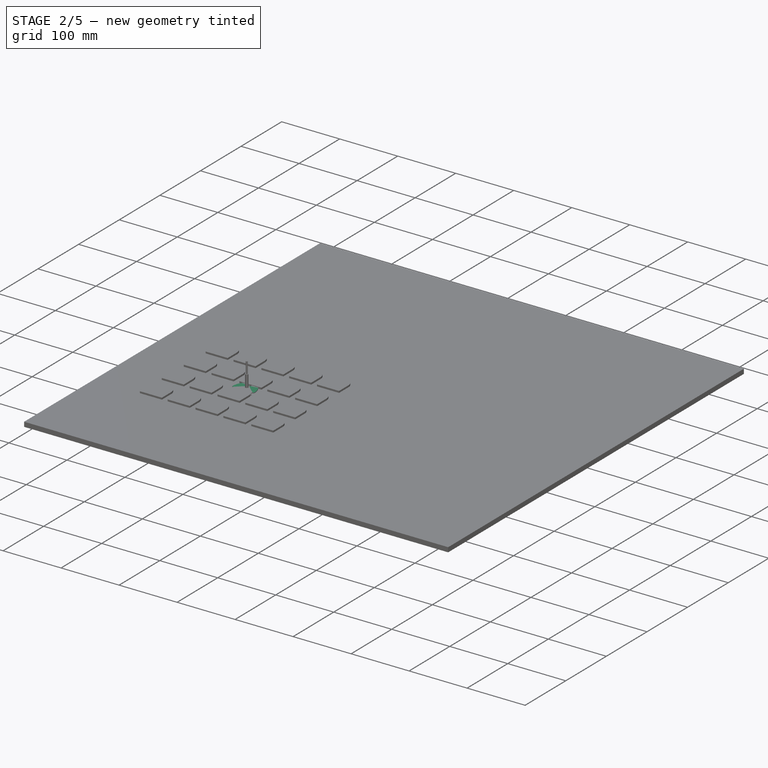
[diagram: stage 2 of 5 — iso view after this stage's code; geometry added in this stage tinted green]
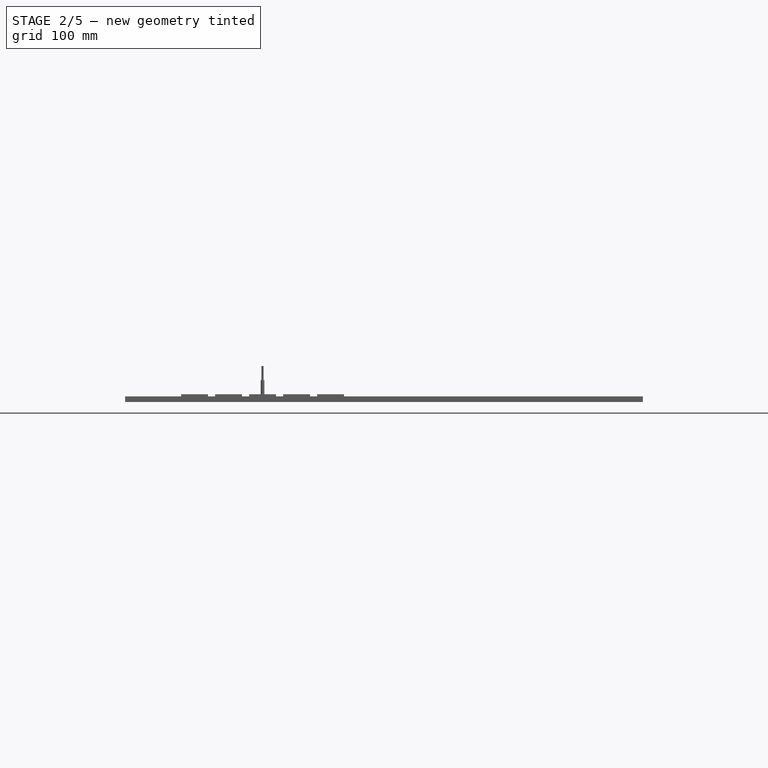
[diagram: stage 2 of 5 — front view after this stage's code; geometry added in this stage tinted green]
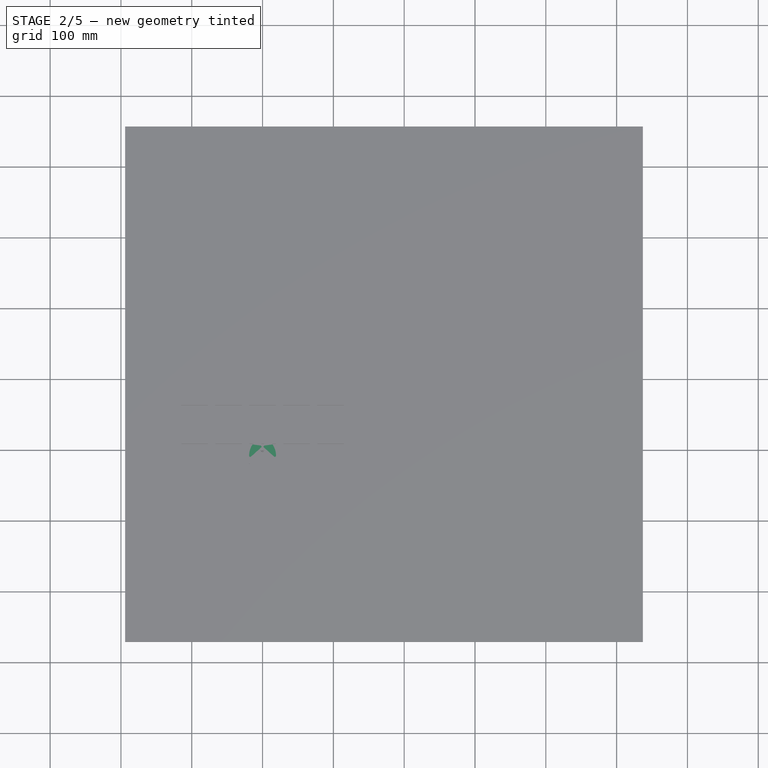
[diagram: stage 2 of 5 — top view after this stage's code; geometry added in this stage tinted green]
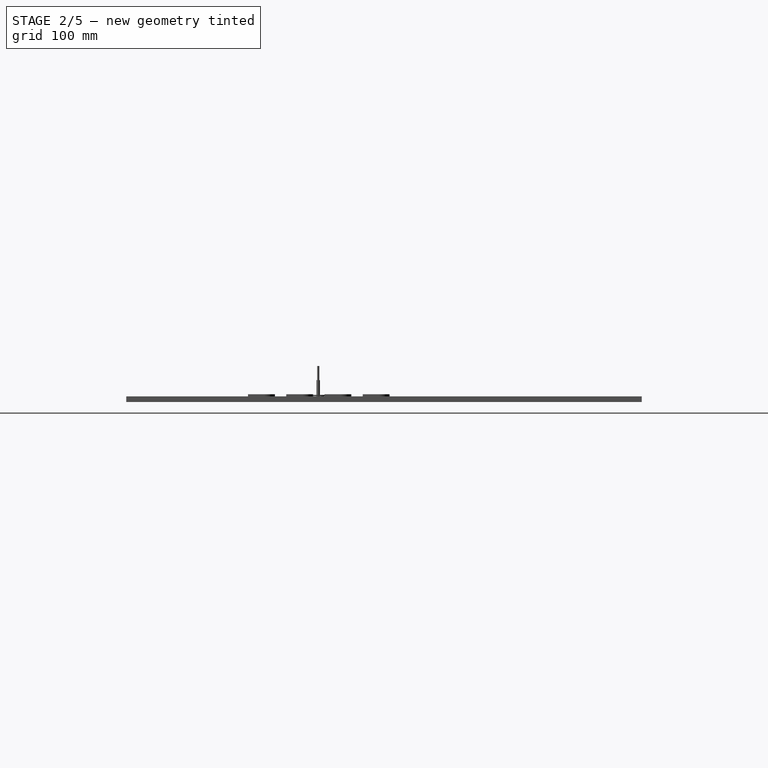
[diagram: stage 2 of 5 — right view after this stage's code; geometry added in this stage tinted green]
FEATURE [Spreadsheet::Sheet] Spreadsheet
  cells = A2='LowerHoleXSeparation; B2(LowerHoleXSeparation)==25.4 / 2; A3='LowerHoleYSeparation; B3(LowerHoleYSeparation)=14; A4='UpperHoleXSeparation; B4(UpperHoleXSeparation)==22.86 / 2; A5='UpperHoleYSeparation; B5(UpperHoleYSeparation)==19 - 14; A6='ConnectorHoleXSeparation; B6(ConnectorHoleXSeparation)==15.24 / 2; A7='PCBWidth; B7(PCBWidth)=30.48; A8='PCBHeight; B8(PCBHeight)=30.48; A9='PCBLowerYSeparation; B9(PCBLowerYSeparation)=16.51; A10='PCBThickness; B10(PCBThickness)=1.6; A11='HoleRadius; B11(HoleRadius)=1.27; A12='HollowBoxHeight; B12(HollowBoxHeight)=7; A13='OutsideBoxWidth; B13(OutsideBoxWidth)=36; A14='OutsideBoxHeight; B14(OutsideBoxHeight)=36; A15='OutsideBoxThickness; B15(OutsideBoxThickness)=10; A16='DiodeDiameter; B16(DiodeDiameter)=5; A17='DiodeYSeparation; B17(DiodeYSeparation)=7; A18='PCBZOffset; B18(PCBZOffset)=2; A19='ConnectorDiameter; B19(ConnectorDiameter)=7.5; A20='WireHoleDiameter; B20(WireHoleDiameter)=1.6; A21='WallsThickness; B21(WallsThickness)=0.9; A22='ClosingTabWidth; B22(ClosingTabWidth)==(WallsThickness + 0.1) * 2; A23='ClosingTabZOffset; B23(ClosingTabZOffset)==OutsideBoxThickness / 2 - 0.35
FEATURE [Sketcher::SketchObject] Sketch
  FullyConstrained = true
  MapMode = 5
  Support = -> [XY_Plane]
  expr: Constraints[26] = Spreadsheet.LowerHoleXSeparation
  expr: Constraints[27] = Spreadsheet.PCBWidth / 2
  expr: Constraints[28] = Spreadsheet.HoleRadius
  expr: Constraints[29] = Spreadsheet.UpperHoleXSeparation
  expr: Constraints[30] = Spreadsheet.ConnectorHoleXSeparation
  expr: Constraints[31] = Spreadsheet.LowerHoleYSeparation
  expr: Constraints[33] = Spreadsheet.UpperHoleYSeparation
  expr: Constraints[37] = Spreadsheet.HoleRadius
  expr: Constraints[38] = Spreadsheet.PCBLowerYSeparation
  sketch-geometry (16):
    g0: Circle CenterX=7.62 CenterY=0 CenterZ=0 NormalX=0 NormalY=0 NormalZ=1 AngleXU=0 Radius=1.27
    g1: Circle CenterX=-7.62 CenterY=0 CenterZ=0 NormalX=0 NormalY=0 NormalZ=1 AngleXU=0 Radius=1.27
    g2: Circle CenterX=-11.43 CenterY=5 CenterZ=0 NormalX=0 NormalY=0 NormalZ=1 AngleXU=0 Radius=1.27
    g3: Circle CenterX=11.43 CenterY=5 CenterZ=0 NormalX=0 NormalY=0 NormalZ=1 AngleXU=0 Radius=1.27
    g4: Circle CenterX=-12.7 CenterY=-14 CenterZ=0 NormalX=0 NormalY=0 NormalZ=1 AngleXU=0 Radius=1.27
    g5: Circle CenterX=12.7 CenterY=-14 CenterZ=0 NormalX=0 NormalY=0 NormalZ=1 AngleXU=0 Radius=1.27
    g6: LineSegment StartX=-11.43 StartY=5 StartZ=0 EndX=11.43 EndY=5 EndZ=0
    g7: LineSegment StartX=7.62 StartY=0 StartZ=0 EndX=-7.62 EndY=0 EndZ=0
    g8: LineSegment StartX=-12.7 StartY=-14 StartZ=0 EndX=12.7 EndY=-14 EndZ=0
    g9: LineSegment StartX=-15.24 StartY=-1.8e-15 StartZ=0 EndX=15.24 EndY=-3e-16 EndZ=0
    g10: LineSegment StartX=15.24 StartY=-3e-16 StartZ=0 EndX=15.24 EndY=-15.24 EndZ=0
    g11: LineSegment StartX=13.97 StartY=-16.51 StartZ=0 EndX=-13.97 EndY=-16.51 EndZ=0
    g12: LineSegment StartX=-15.24 StartY=-15.24 StartZ=0 EndX=-15.24 EndY=-1.8e-15 EndZ=0
    g13: ArcOfCircle CenterX=-6e-16 CenterY=-0.635 CenterZ=0 NormalX=0 NormalY=0 NormalZ=1 AngleXU=0 Radius=15.2532 StartAngle=0.0416426 EndAngle=3.09995
    g14: ArcOfCircle CenterX=-13.97 CenterY=-15.24 CenterZ=0 NormalX=0 NormalY=0 NormalZ=1 AngleXU=0 Radius=1.27 StartAngle=3.14159 EndAngle=4.71239
    g15: ArcOfCircle CenterX=13.97 CenterY=-15.24 CenterZ=0 NormalX=0 NormalY=0 NormalZ=1 AngleXU=0 Radius=1.27 StartAngle=4.71239 EndAngle=6.28319
  constraints (39):
    c: Coincident(g6,g2)
    c: Coincident(g6,g3)
    c: Coincident(g7,g0)
    c: Coincident(g7,g1)
    c: Coincident(g8,g4)
    c: Coincident(g8,g5)
    c: Symmetric(g2,g3,g-2)
    c: Symmetric(g1,g0,g-2)
    c: Symmetric(g4,g5,g-2)
    c: Equal(g4,g1)
    c: Equal(g1,g2)
    c: Equal(g2,g0)
    c: Equal(g0,g3)
    c: Equal(g3,g5)
    c: Coincident(g9,g10)
    c: Coincident(g12,g9)
    c: Vertical(g10)
    c: Vertical(g12)
    c: Coincident(g13,g9)
    c: Coincident(g13,g9)
    c: DistanceY(g13,g9) = 0.635
    c: Tangent(g12,g14) = 1.5708
    c: Tangent(g11,g14) = 1.5708
    c: Tangent(g11,g15) = 1.5708
    c: Tangent(g10,g15) = 1.5708
    c: PointOnObject(g1,g9)
    c: DistanceX(g-1,g5) = 12.7
    c: DistanceX(g-1,g10) = 15.24
    c: Radius(g2) = 1.27
    c: DistanceX(g-1,g3) = 11.43
    c: DistanceX(g-1,g0) = 7.62
    c: DistanceY(g5,g-1) = 14
    c: PointOnObject(g0,g-1)
    c: DistanceY(g-1,g3) = 5
    c: Symmetric(g12,g10,g-2)
    c: Horizontal(g11)
    c: Equal(g15,g14)
    c: Radius(g14) = 1.27
    c: DistanceY(g11,g-1) = 16.51
FEATURE [PartDesign::Pad] Pad
  Direction = (0,0,1)
  Length = 1.6
  Length2 = 10
  Midplane = true
  Profile = -> Sketch
  ReferenceAxis = -> Sketch [N_Axis]
  Type = 0
  expr: Length = Spreadsheet.PCBThickness
FEATURE [Sketcher::SketchObject] Sketch004
  FullyConstrained = true
  MapMode = 5
  Support = -> [XY_Plane006]
  expr: Constraints[1] = Spreadsheet.ConnectorDiameter / 2
  sketch-geometry (1):
    g0: Circle CenterX=0 CenterY=0 CenterZ=0 NormalX=0 NormalY=0 NormalZ=1 AngleXU=0 Radius=3.75
  constraints (2):
    c: Coincident(g0,g-1)
    c: Radius(g0) = 3.75
FEATURE [PartDesign::Pad] Pad004
  Direction = (0,0,1)
  Length = 5.7
  Length2 = 10
  Profile = -> Sketch004
  ReferenceAxis = -> Sketch004 [N_Axis]
  Reversed = true
  Type = 0
  expr: Length = 5.7 mm
FEATURE [PartDesign::Body] Body023  label="ContainerTopOR"
  Group = -> [Binder031,Pad029,Binder032,Sketch034,Binder033,Sketch036,Pad033,Pocket016,Pad034,Boolean002,Fillet016]
  Origin = -> Origin029
  Tip = -> Fillet016
FEATURE [App::Part] Part004  label="EnclosureOR"
  Group = -> [Body022,Body023]
  Origin = -> Origin027
FEATURE [Sketcher::SketchObject] Sketch037
  FullyConstrained = false
  MapMode = 5
  Support = -> [XY_Plane035]
  expr: Constraints[21] = Spreadsheet.OutsideBoxWidth
  sketch-geometry (33):
    g0: LineSegment StartX=-18 StartY=-18.9516 StartZ=0 EndX=-18 EndY=-15.6393 EndZ=0
    g1: ArcOfCircle CenterX=0 CenterY=0 CenterZ=0 NormalX=0 NormalY=0 NormalZ=1 AngleXU=0 Radius=18 StartAngle=0 EndAngle=3.1389
    g2: LineSegment StartX=18 StartY=-15.6393 StartZ=0 EndX=18 EndY=-18.9516 EndZ=0
    g3: Circle CenterX=0 CenterY=14 CenterZ=0 NormalX=0 NormalY=0 NormalZ=1 AngleXU=0 Radius=4
    g4: LineSegment StartX=-18 StartY=-14.9516 StartZ=0 EndX=-3.6e-15 EndY=18 EndZ=0
    g5: LineSegment StartX=-3.6e-15 StartY=18 StartZ=0 EndX=18 EndY=-14.9516 EndZ=0
    g6: LineSegment StartX=0 StartY=0 StartZ=0 EndX=31.1769 EndY=18 EndZ=0
    g7: LineSegment StartX=0 StartY=0 StartZ=0 EndX=0 EndY=-36 EndZ=0
    g8: LineSegment StartX=0 StartY=0 StartZ=0 EndX=-31.1769 EndY=18 EndZ=0
    g9: Circle CenterX=0 CenterY=0 CenterZ=0 NormalX=0 NormalY=0 NormalZ=1 AngleXU=0 Radius=36
    g10: ArcOfCircle CenterX=-3.4e-15 CenterY=-62.7694 CenterZ=0 NormalX=0 NormalY=0 NormalZ=1 AngleXU=0 Radius=46 StartAngle=1.2007 EndAngle=1.94089
    g11: LineSegment StartX=-18 StartY=-18.9516 StartZ=0 EndX=18 EndY=-18.9516 EndZ=0
    g12: ArcOfCircle CenterX=17 CenterY=-18.9516 CenterZ=0 NormalX=0 NormalY=0 NormalZ=1 AngleXU=0 Radius=1 StartAngle=4.3423 EndAngle=6.28319
    g13: ArcOfCircle CenterX=-17 CenterY=-18.9516 CenterZ=0 NormalX=0 NormalY=0 NormalZ=1 AngleXU=0 Radius=1 StartAngle=3.14159 EndAngle=5.08248
    g14: ArcOfCircle CenterX=10 CenterY=-8.15381 CenterZ=0 NormalX=0 NormalY=0 NormalZ=1 AngleXU=0 Radius=28.0004 StartAngle=1.936 EndAngle=3.13605
    g15: ArcOfCircle CenterX=-9.99996 CenterY=-8.15384 CenterZ=0 NormalX=0 NormalY=0 NormalZ=1 AngleXU=0 Radius=28.0004 StartAngle=0.00553929 EndAngle=1.2056
    g16: LineSegment StartX=-18 StartY=-8.95162 StartZ=0 EndX=18 EndY=-8.95162 EndZ=0
    g17: ArcOfCircle CenterX=7e-16 CenterY=-57.2894 CenterZ=0 NormalX=0 NormalY=0 NormalZ=1 AngleXU=0 Radius=46 StartAngle=1.18374 EndAngle=1.22711
    g18: ArcOfCircle CenterX=4.88e-14 CenterY=-51.2894 CenterZ=0 NormalX=0 NormalY=0 NormalZ=1 AngleXU=0 Radius=46 StartAngle=1.18937 EndAngle=1.22711
    g19: LineSegment StartX=-15.5 StartY=-7.97949 StartZ=0 EndX=-15.5 EndY=-13.9795 EndZ=0
    g20: LineSegment StartX=15.5 StartY=-7.97949 StartZ=0 EndX=15.5 EndY=-13.9795 EndZ=0
    g21: LineSegment StartX=-18 StartY=-13.9795 StartZ=0 EndX=18 EndY=-13.9795 EndZ=0
    g22: LineSegment StartX=18 StartY=-8.95162 StartZ=0 EndX=18 EndY=-14.9516 EndZ=0
    g23: LineSegment StartX=-18 StartY=-8.1534 StartZ=0 EndX=-18 EndY=-14.9516 EndZ=0
    g24: ArcOfCircle CenterX=17.3611 CenterY=-8.00228 CenterZ=0 NormalX=0 NormalY=0 NormalZ=1 AngleXU=0 Radius=0.638888 StartAngle=4.33096 EndAngle=6.28872
    g25: ArcOfCircle CenterX=16.9773 CenterY=-15.6393 CenterZ=0 NormalX=0 NormalY=0 NormalZ=1 AngleXU=0 Radius=1.02268 StartAngle=0 EndAngle=1.18374
    g26: ArcOfCircle CenterX=-17.3611 CenterY=-8.00225 CenterZ=0 NormalX=0 NormalY=0 NormalZ=1 AngleXU=0 Radius=0.638888 StartAngle=3.13605 EndAngle=5.09369
    g27: ArcOfCircle CenterX=-16.9773 CenterY=-15.6393 CenterZ=0 NormalX=0 NormalY=0 NormalZ=1 AngleXU=0 Radius=1.02268 StartAngle=1.95785 EndAngle=3.14159
    g28: LineSegment StartX=-18 StartY=-15.6393 StartZ=0 EndX=18 EndY=-15.6393 EndZ=0
    g29: ArcOfCircle CenterX=7e-16 CenterY=-57.2894 CenterZ=0 NormalX=0 NormalY=0 NormalZ=1 AngleXU=0 Radius=46 StartAngle=1.91448 EndAngle=1.95785
    g30: ArcOfCircle CenterX=4.88e-14 CenterY=-51.2894 CenterZ=0 NormalX=0 NormalY=0 NormalZ=1 AngleXU=0 Radius=46 StartAngle=1.91448 EndAngle=1.95222
    g31: ArcOfCircle CenterX=7e-16 CenterY=-57.2894 CenterZ=0 NormalX=0 NormalY=0 NormalZ=1 AngleXU=0 Radius=46 StartAngle=1.22711 EndAngle=1.91448
    g32: ArcOfCircle CenterX=4.88e-14 CenterY=-51.2894 CenterZ=0 NormalX=0 NormalY=0 NormalZ=1 AngleXU=0 Radius=46 StartAngle=1.22711 EndAngle=1.91448
  constraints (84):
    c: Vertical(g0)
    c: Vertical(g2)
    c: PointOnObject(g4,g1)
    c: DistanceX(g11,g11) = 36
    c: PointOnObject(g4,g-2)
    c: PointOnObject(g3,g-2)
    c: PointOnObject(g4,g3)
    c: Radius(g3) = 4
    c: DistanceY(g-1,g4) = 18
    c: Coincident(g5,g4)
    c: Equal(g4,g5)
    c: DistanceY(g11,g4) = 4
    c: Coincident(g6,g1)
    c: Coincident(g7,g1)
    c: PointOnObject(g7,g-2)
    c: Coincident(g8,g1)
    c: Coincident(g9,g1)
    c: PointOnObject(g8,g9)
    c: PointOnObject(g7,g9)
    c: Symmetric(g6,g8,g-2)
    c: Angle(g-1,g6) = 0.523599
    c: Radius(g9) = 36
    c: Radius(g10) = 46
    c: Tangent(g2,g12) = 1.5708
    c: Tangent(g10,g12) = 1.5708
    c: Tangent(g10,g13) = 1.5708
    c: Tangent(g0,g13) = 1.5708
    c: Coincident(g2,g11)
    c: Radius(g12) = 1
    c: PointOnObject(g1,g-1)
    c: Coincident(g1,g-1)
    c: Symmetric(g10,g10,g7)
    c: Coincident(g11,g0)
    c: Coincident(g15,g14)
    c: Equal(g15,g14)
    c: Coincident(g14,g4)
    c: DistanceY(g0,g1) = 19
    c: DistanceX(g15,g14) = 20
    c: Vertical(g19)
    c: Vertical(g20)
    c: Horizontal(g21)
    c: PointOnObject(g19,g21)
    c: Equal(g18,g17)
    c: Horizontal(g16)
    c: DistanceY(g19,g19) = 6
    c: Equal(g17,g10)
    c: DistanceX(g16,g19) = 2.5
    c: Equal(g16,g21)
    c: Coincident(g22,g16)
    c: Coincident(g22,g5)
    c: Vertical(g22)
    c: PointOnObject(g21,g22)
    c: Coincident(g23,g4)
    c: Vertical(g23)
    c: PointOnObject(g21,g23)
    c: Tangent(g15,g24) = -1.5708
    c: Tangent(g18,g24) = 1.5708
    c: Tangent(g17,g25) = -1.5708
    c: Tangent(g2,g25) = 1.5708
    c: Tangent(g14,g26) = -1.5708
    c: Coincident(g30,g26) = 1.5708
    c: Coincident(g29,g27) = -1.5708
    c: Tangent(g0,g27) = 1.5708
    c: Equal(g27,g25)
    c: Equal(g24,g26)
    c: Coincident(g28,g0)
    c: Coincident(g28,g2)
    c: PointOnObject(g25,g28)
    c: Equal(g17,g29)
    c: Coincident(g17,g20)
    c: Coincident(g17,g29)
    c: PointOnObject(g29,g19)
    c: Coincident(g30,g19)
    c: Coincident(g18,g30)
    c: Coincident(g18,g20)
    c: Symmetric(g17,g19,g7)
    c: Symmetric(g26,g18,g7)
    c: DistanceY(g10,g17) = 5.48
    c: Coincident(g31,g17)
    c: Coincident(g31,g19)
    c: Coincident(g31,g17)
    c: Coincident(g32,g18)
    c: Coincident(g32,g19)
    c: Coincident(g32,g18)
FEATURE [PartDesign::Pad] Pad035
  Direction = (0,0,1)
  Length = 8
  Length2 = 10
  Profile = -> Sketch037
  ReferenceAxis = -> Sketch037 [N_Axis]
  Type = 0
  expr: Length = Spreadsheet.OutsideBoxThickness - 2
FEATURE [PartDesign::Thickness] Thickness003
  Base = -> Pad035 [Face19]
  BaseFeature = -> Pad035
  Intersection = false
  Join = 1
  Mode = 0
  SupportTransform = false
  Value = 1
FEATURE [PartDesign::SubShapeBinder] Binder034
  BindCopyOnChange = 0
  BindMode = 0
  ClaimChildren = false
  Context = -> Part005 [Body027.Binder034.]
  Fuse = false
  MakeFace = true
  OffsetFill = false
  OffsetIntersection = false
  OffsetJoinType = 0
  OffsetOpenResult = false
  PartialLoad = false
  Relative = true
  Support = -> [Part[Body.Pad.Edge30,Body.Pad.Edge21,Body.Pad.Edge36,Body.Pad.Edge33,Body.Pad.Edge24,Body.Pad.Edge27,Body004.Pad004.Edge3]]
  _Version = 2
FEATURE [Sketcher::SketchObject] Sketch038
  ExternalGeometry = -> [Binder034]
  FullyConstrained = true
  MapMode = 5
  Support = -> [XY_Plane035]
  expr: Constraints[7] = Spreadsheet.HoleRadius + 0.5
  sketch-geometry (4):
    g0: Circle CenterX=-11.43 CenterY=5 CenterZ=0 NormalX=0 NormalY=0 NormalZ=1 AngleXU=0 Radius=1.77
    g1: Circle CenterX=11.43 CenterY=5 CenterZ=0 NormalX=0 NormalY=0 NormalZ=1 AngleXU=0 Radius=1.77
    g2: Circle CenterX=12.7 CenterY=-14 CenterZ=0 NormalX=0 NormalY=0 NormalZ=1 AngleXU=0 Radius=1.77
    g3: Circle CenterX=-12.7 CenterY=-14 CenterZ=0 NormalX=0 NormalY=0 NormalZ=1 AngleXU=0 Radius=1.77
  constraints (8):
    c: Coincident(g0,g-3)
    c: Coincident(g1,g-4)
    c: Coincident(g2,g-5)
    c: Coincident(g3,g-6)
    c: Equal(g0,g1)
    c: Equal(g1,g2)
    c: Equal(g2,g3)
    c: Radius(g0) = 1.77
FEATURE [PartDesign::Pad] Pad036
  BaseFeature = -> Thickness003
  Direction = (0,0,1)
  Length = 2
  Length2 = 10
  Profile = -> Sketch038
  ReferenceAxis = -> Sketch038 [N_Axis]
  Type = 0
  expr: Length = Spreadsheet.PCBZOffset
FEATURE [Sketcher::SketchObject] Sketch039
  ExternalGeometry = -> [Binder034]
  FullyConstrained = true
  MapMode = 5
  Support = -> [XY_Plane035]
  expr: Constraints[7] = Spreadsheet.HoleRadius
  sketch-geometry (4):
    g0: Circle CenterX=-11.43 CenterY=5 CenterZ=0 NormalX=0 NormalY=0 NormalZ=1 AngleXU=0 Radius=1.27
    g1: Circle CenterX=11.43 CenterY=5 CenterZ=0 NormalX=0 NormalY=0 NormalZ=1 AngleXU=0 Radius=1.27
    g2: Circle CenterX=12.7 CenterY=-14 CenterZ=0 NormalX=0 NormalY=0 NormalZ=1 AngleXU=0 Radius=1.27
    g3: Circle CenterX=-12.7 CenterY=-14 CenterZ=0 NormalX=0 NormalY=0 NormalZ=1 AngleXU=0 Radius=1.27
  constraints (8):
    c: Coincident(g0,g-3)
    c: Coincident(g1,g-4)
    c: Coincident(g2,g-5)
    c: Coincident(g3,g-6)
    c: Equal(g3,g2)
    c: Equal(g2,g1)
    c: Equal(g1,g0)
    c: Radius(g0) = 1.27
FEATURE [PartDesign::Pad] Pad037
  BaseFeature = -> Pad036
  Direction = (0,0,1)
  Length = 3.6
  Length2 = 10
  Profile = -> Sketch039
  ReferenceAxis = -> Sketch039 [N_Axis]
  Type = 0
  expr: Length = Spreadsheet.PCBThickness + Spreadsheet.PCBZOffset
FEATURE [Sketcher::SketchObject] Sketch040
  ExternalGeometry = -> [Binder034]
  FullyConstrained = true
  MapMode = 5
  Support = -> [XY_Plane035]
  sketch-geometry (1):
    g0: Circle CenterX=0 CenterY=0 CenterZ=0 NormalX=0 NormalY=0 NormalZ=1 AngleXU=0 Radius=3.75
  constraints (2):
    c: Equal(g-3,g0)
    c: Coincident(g0,g-3)
FEATURE [PartDesign::Pocket] Pocket017
  BaseFeature = -> Pad037
  Direction = (0,0,-1)
  Length = 5
  Length2 = 5
  Profile = -> Sketch040
  ReferenceAxis = -> Sketch040 [N_Axis]
  Type = 1
FEATURE [Sketcher::SketchObject] Sketch041
  ExternalGeometry = -> [Binder034]
  FullyConstrained = true
  MapMode = 5
  Support = -> [XY_Plane035]
  expr: Constraints[3] = Spreadsheet.HoleRadius + 0.5
  sketch-geometry (2):
    g0: Circle CenterX=-7.62 CenterY=0 CenterZ=0 NormalX=0 NormalY=0 NormalZ=1 AngleXU=0 Radius=1.77
    g1: Circle CenterX=7.62 CenterY=0 CenterZ=0 NormalX=0 NormalY=0 NormalZ=1 AngleXU=0 Radius=1.77
  constraints (4):
    c: Coincident(g0,g-3)
    c: Coincident(g1,g-4)
    c: Equal(g1,g0)
    c: Radius(g0) = 1.77
FEATURE [PartDesign::Pad] Pad038
  BaseFeature = -> Pocket017
  Direction = (0,0,1)
  Length = 1.4
  Length2 = 10
  Profile = -> Sketch041
  ReferenceAxis = -> Sketch041 [N_Axis]
  Type = 0
  expr: Length = Spreadsheet.PCBZOffset - 0.6
FEATURE [PartDesign::SubShapeBinder] Binder035
  BindCopyOnChange = 0
  BindMode = 0
  ClaimChildren = false
  Context = -> Part005 [Body027.Binder035.]
  Fuse = false
  MakeFace = true
  OffsetFill = false
  OffsetIntersection = false
  OffsetJoinType = 0
  OffsetOpenResult = false
  PartialLoad = false
  Relative = true
  Support = -> [Part003[Body011.PolarPattern.Face10]]
  _Version = 2
FEATURE [PartDesign::SubShapeBinder] Binder036
  BindCopyOnChange = 0
  BindMode = 0
  ClaimChildren = false
  Context = -> Part005 [Body027.Binder036.]
  Fuse = false
  MakeFace = true
  OffsetFill = false
  OffsetIntersection = false
  OffsetJoinType = 0
  OffsetOpenResult = false
  PartialLoad = false
  Relative = true
  Support = -> [Part003[Body011.PolarPattern.Face6]]
  _Version = 2
FEATURE [PartDesign::SubShapeBinder] Binder037
  BindCopyOnChange = 0
  BindMode = 0
  ClaimChildren = false
  Context = -> Part005 [Body027.Binder037.]
  Fuse = false
  MakeFace = true
  OffsetFill = false
  OffsetIntersection = false
  OffsetJoinType = 0
  OffsetOpenResult = false
  PartialLoad = false
  Relative = true
  Support = -> [Part003[Body011.PolarPattern.Face17]]
  _Version = 2
FEATURE [PartDesign::Pocket] Pocket018
  BaseFeature = -> Pad038
  Direction = (0,1,2e-16)
  Length = 5
  Length2 = 5
  Profile = -> Binder035
  Reversed = true
  Type = 1
FEATURE [PartDesign::Pocket] Pocket019
  BaseFeature = -> Pocket018
  Direction = (0.866025,-0.5,-1e-16)
  Length = 5
  Length2 = 5
  Profile = -> Binder036
  Reversed = true
  Type = 1
FEATURE [PartDesign::Pocket] Pocket020
  BaseFeature = -> Pocket019
  Direction = (-0.866025,-0.5,-1e-16)
  Length = 5
  Length2 = 5
  Profile = -> Binder037
  Reversed = true
  Type = 1
FEATURE [Sketcher::SketchObject] Sketch042
  AttachmentOffset = pos=(0,0,15) rot=(0,0,1;0rad)
  FullyConstrained = true
  MapMode = 5
  Placement = pos=(0,-15,-3.3e-15) rot=(1,0,0;1.5708rad)
  Support = -> [XZ_Plane035]
  expr: Constraints[0] = Spreadsheet.WireHoleDiameter / 2
  sketch-geometry (2):
    g0: Circle CenterX=-16 CenterY=4 CenterZ=0 NormalX=0 NormalY=0 NormalZ=1 AngleXU=0 Radius=0.8
    g1: Circle CenterX=16 CenterY=4 CenterZ=0 NormalX=0 NormalY=0 NormalZ=1 AngleXU=0 Radius=0.8
  constraints (5):
    c: Radius(g1) = 0.8
    c: Equal(g0,g1)
    c: Symmetric(g0,g1,g-2)
    c: DistanceX(g0,g-1) = 16
    c: DistanceY(g-1,g0) = 4
FEATURE [PartDesign::Pocket] Pocket021
  BaseFeature = -> Pocket020
  Direction = (0,1,2e-16)
  Length = 5
  Length2 = 5
  Profile = -> Sketch042
  ReferenceAxis = -> Sketch042 [N_Axis]
  Reversed = true
  Type = 1
FEATURE [Sketcher::SketchObject] Sketch043
  AttachmentOffset = pos=(0,0,-12) rot=(0,0,1;0rad)
  FullyConstrained = true
  MapMode = 5
  Placement = pos=(0,12,2.7e-15) rot=(1,0,0;1.5708rad)
  Support = -> [XZ_Plane035]
  expr: Constraints[2] = Spreadsheet.WireHoleDiameter / 2
  sketch-geometry (1):
    g0: Circle CenterX=0 CenterY=4 CenterZ=0 NormalX=0 NormalY=0 NormalZ=1 AngleXU=0 Radius=0.8
  constraints (3):
    c: PointOnObject(g0,g-2)
    c: DistanceY(g-1,g0) = 4
    c: Radius(g0) = 0.8
FEATURE [PartDesign::Pocket] Pocket022
  BaseFeature = -> Pocket021
  Direction = (0,1,2e-16)
  Length = 5
  Length2 = 5
  Profile = -> Sketch043
  ReferenceAxis = -> Sketch043 [N_Axis]
  Type = 1
FEATURE [PartDesign::Fillet] Fillet017
  Base = -> Pocket022 [Edge136,Edge134,Edge177,Edge175,Edge174,Edge172,Edge167,Edge161,Edge155,Edge149,Edge145,Edge143,Edge141,Edge139,Edge138]
  BaseFeature = -> Pocket022
  Radius = 1
  SupportTransform = false
  UseAllEdges = false
FEATURE [PartDesign::Fillet] Fillet018
  Base = -> Fillet017 [Edge94,Edge103,Edge143,Edge99,Edge106,Edge108,Edge110,Edge112,Edge117,Edge114,Edge116,Edge125,Edge134,Edge136,Edge138,Edge140,Edge142,Edge195,Edge198,Edge199,Edge196,Edge197,Edge194]
  BaseFeature = -> Fillet017
  Radius = 0.2
  Refine = true
  SupportTransform = false
  UseAllEdges = false
FEATURE [PartDesign::Body] Body027  label="ContainerBottomXOR"
  Group = -> [Sketch037,Pad035,Thickness003,Binder034,Sketch038,Pad036,Sketch039,Pad037,Sketch040,Pocket017,Sketch041,Pad038,Binder035,Binder036,Binder037,Pocket018,Pocket019,Pocket020,Sketch042,Pocket021,Sketch043,Pocket022,Fillet017,Fillet018]
  Origin = -> Origin034
  Tip = -> Fillet018
FEATURE [PartDesign::SubShapeBinder] Binder038
  BindCopyOnChange = 0
  BindMode = 0
  ClaimChildren = false
  Context = -> Part005 [Body028.Binder038.]
  Fuse = false
  MakeFace = true
  OffsetFill = false
  OffsetIntersection = false
  OffsetJoinType = 0
  OffsetOpenResult = false
  PartialLoad = false
  Relative = true
  Support = -> [Body027[Thickness003.Edge53,Thickness003.Edge54,Thickness003.Edge55,Thickness003.Edge56,Thickness003.Edge57,Thickness003.Edge58,Thickness003.Edge59,Thickness003.Edge60]]
  _Version = 2
FEATURE [PartDesign::Pad] Pad039
  Direction = (0,0,1)
  Length = 1.1
  Length2 = 10
  Profile = -> Binder038
  Type = 0
  expr: Length = Spreadsheet.WallsThickness + 0.2
FEATURE [PartDesign::SubShapeBinder] Binder039
  BindCopyOnChange = 0
  BindMode = 0
  ClaimChildren = false
  Context = -> Part005 [Body028.Binder039.]
  Fuse = false
  MakeFace = true
  OffsetFill = false
  OffsetIntersection = false
  OffsetJoinType = 0
  OffsetOpenResult = false
  PartialLoad = false
  Relative = true
  Support = -> [Part[Body.Pad.Edge29,Body.Pad.Edge20,Body.Pad.Edge26,Body.Pad.Edge23,Fillet002.Face3,Body.Pad.Edge35,Body.Pad.Edge32]]
  _Version = 2
FEATURE [PartDesign::SubShapeBinder] Binder040
  BindCopyOnChange = 0
  BindMode = 0
  ClaimChildren = false
  Context = -> Part005 [Body028.Binder040.]
  Fuse = false
  MakeFace = true
  OffsetFill = false
  OffsetIntersection = false
  OffsetJoinType = 0
  OffsetOpenResult = false
  PartialLoad = false
  Relative = true
  Support = -> [Body027[Thickness003.Edge28,Thickness003.Edge25,Thickness003.Edge22,Thickness003.Edge19,Thickness003.Edge16,Thickness003.Edge13,Thickness003.Edge10,Thickness003.Edge7]]
  _Version = 2
FEATURE [PartDesign::Pad] Pad040
  BaseFeature = -> Pad039
  Direction = (0,0,1)
  Length = 0.7
  Length2 = 10
  Profile = -> Binder040
  Reversed = true
  Type = 0
FEATURE [Sketcher::SketchObject] Sketch044
  ExternalGeometry = -> [Binder039]
  FullyConstrained = true
  MapMode = 5
  Support = -> [XY_Plane036]
  sketch-geometry (1):
    g0: Circle CenterX=0 CenterY=7 CenterZ=0 NormalX=0 NormalY=0 NormalZ=1 AngleXU=0 Radius=2.5
  constraints (2):
    c: Coincident(g0,g-3)
    c: Tangent(g0,g-3)
FEATURE [PartDesign::Pocket] Pocket023
  BaseFeature = -> Pad040
  Direction = (0,0,-1)
  Length = 5
  Length2 = 5
  Profile = -> Sketch044
  ReferenceAxis = -> Sketch044 [N_Axis]
  Reversed = true
  Type = 1
FEATURE [Sketcher::SketchObject] Sketch045
  ExternalGeometry = -> [Binder039]
  FullyConstrained = true
  MapMode = 5
  Placement = pos=(0,0,8) rot=(1,0,0;3.14159rad)
  Support = -> [Pocket023]
  expr: Constraints[7] = Spreadsheet.HoleRadius + 0.5
  sketch-geometry (4):
    g0: Circle CenterX=-12.7 CenterY=14 CenterZ=0 NormalX=0 NormalY=0 NormalZ=1 AngleXU=0 Radius=1.77
    g1: Circle CenterX=12.7 CenterY=14 CenterZ=0 NormalX=0 NormalY=0 NormalZ=1 AngleXU=0 Radius=1.77
    g2: Circle CenterX=11.43 CenterY=-5 CenterZ=0 NormalX=0 NormalY=0 NormalZ=1 AngleXU=0 Radius=1.77
    g3: Circle CenterX=-11.43 CenterY=-5 CenterZ=0 NormalX=0 NormalY=0 NormalZ=1 AngleXU=0 Radius=1.77
  constraints (8):
    c: Coincident(g0,g-3)
    c: Coincident(g1,g-4)
    c: Coincident(g2,g-5)
    c: Coincident(g3,g-6)
    c: Equal(g0,g3)
    c: Equal(g3,g2)
    c: Equal(g2,g1)
    c: Radius(g0) = 1.77
FEATURE [PartDesign::Pad] Pad041
  BaseFeature = -> Pocket023
  Direction = (0,0,-1)
  Length = 4.35
  Length2 = 10
  Profile = -> Sketch045
  ReferenceAxis = -> Sketch045 [N_Axis]
  Type = 0
  expr: Length = Spreadsheet.OutsideBoxThickness - Spreadsheet.PCBThickness - Spreadsheet.PCBZOffset - 2.05
FEATURE [Sketcher::SketchObject] Sketch046
  AttachmentOffset = pos=(0,7.4,0) rot=(0,1,0;1.5708rad)
  FullyConstrained = true
  MapMode = 5
  Placement = pos=(0,-16.6,7.4) rot=(0.57735,-0.57735,-0.57735;2.0944rad)
  expr: .AttachmentOffset.Base.y = Spreadsheet.ClosingTabZOffset + Spreadsheet.WallsThickness * 3 + 0.05
  expr: .Placement.Base.x = 0
  expr: Constraints[12] = Spreadsheet.WallsThickness * 2
  expr: Constraints[13] = Spreadsheet.WallsThickness * 2
  expr: Constraints[14] = Spreadsheet.WallsThickness + 0.1
  expr: Constraints[15] = Spreadsheet.WallsThickness
  expr: Constraints[16] = Spreadsheet.WallsThickness * 2
  sketch-geometry (6):
    g0: LineSegment StartX=0 StartY=0 StartZ=0 EndX=-1.8 EndY=0 EndZ=0
    g1: LineSegment StartX=-1.8 StartY=0 StartZ=0 EndX=-0.8 EndY=-2.7 EndZ=0
    g2: LineSegment StartX=-0.8 StartY=-2.7 StartZ=0 EndX=1 EndY=-2.7 EndZ=0
    g3: LineSegment StartX=1 StartY=-2.7 StartZ=0 EndX=1 EndY=-1.8 EndZ=0
    g4: LineSegment StartX=1 StartY=-1.8 StartZ=0 EndX=0 EndY=-1.8 EndZ=0
    g5: LineSegment StartX=0 StartY=-1.8 StartZ=0 EndX=0 EndY=0 EndZ=0
  constraints (17):
    c: Coincident(g-1,g0)
    c: PointOnObject(g0,g-1)
    c: Coincident(g0,g1)
    c: Coincident(g1,g2)
    c: Horizontal(g2)
    c: Coincident(g2,g3)
    c: Vertical(g3)
    c: Coincident(g3,g4)
    c: PointOnObject(g4,g-2)
    c: Horizontal(g4)
    c: Coincident(g4,g5)
    c: Coincident(g5,g0)
    c: DistanceX(g0,g0) = 1.8
    c: DistanceY(g5,g5) = 1.8
    c: DistanceX(g4,g4) = 1
    c: DistanceY(g3,g3) = 0.9
    c: DistanceX(g2,g2) = 1.8
FEATURE [PartDesign::Pad] Pad042
  Direction = (-1,0,0)
  Length = 2
  Length2 = 10
  Midplane = true
  Placement = pos=(0,-16.6,7.4) rot=(0.57735,-0.57735,-0.57735;2.0944rad)
  Profile = -> Sketch046
  ReferenceAxis = -> Sketch046 [N_Axis]
  Type = 0
  expr: Length = Spreadsheet.ClosingTabWidth
FEATURE [PartDesign::Fillet] Fillet019
  Base = -> Pad042 [Edge17,Edge15,Edge6,Edge9,Edge12,Edge8,Edge11,Edge18,Edge13,Edge10,Edge5,Edge16,Edge7,Edge14]
  BaseFeature = -> Pad042
  Placement = pos=(0,-16.6,7.4) rot=(0.57735,-0.57735,-0.57735;2.0944rad)
  Radius = 0.2
  SupportTransform = false
  UseAllEdges = false
FEATURE [PartDesign::Body] Body029
  Group = -> [Sketch046,Pad042,Fillet019]
  Origin = -> Origin036
  Placement = pos=(0,0.15,0) rot=(0,0,1;0rad)
  Tip = -> Fillet019
FEATURE [PartDesign::FeatureBase] Clone009
  BaseFeature = -> Body029
FEATURE [PartDesign::Body] Body030
  Group = -> [Clone009]
  Origin = -> Origin037
  Placement = pos=(-1.55885,-0.9,0) rot=(0,0,1;2.0944rad)
  Tip = -> Clone009
  expr: .Placement.Base.x = -1.8 * sin(60)
  expr: .Placement.Base.y = -1.8 * cos(60)
FEATURE [PartDesign::FeatureBase] Clone010
  BaseFeature = -> Body029
FEATURE [PartDesign::Body] Body031
  Group = -> [Clone010]
  Origin = -> Origin038
  Placement = pos=(1.55885,-0.9,0) rot=(0,0,1;4.18879rad)
  Tip = -> Clone010
  expr: .Placement.Base.x = 1.8 * sin(60)
  expr: .Placement.Base.y = -1.8 * cos(60)
FEATURE [PartDesign::Boolean] Boolean003
  BaseFeature = -> Pad041
  Group = -> [Body029,Body030,Body031]
  Type = 0
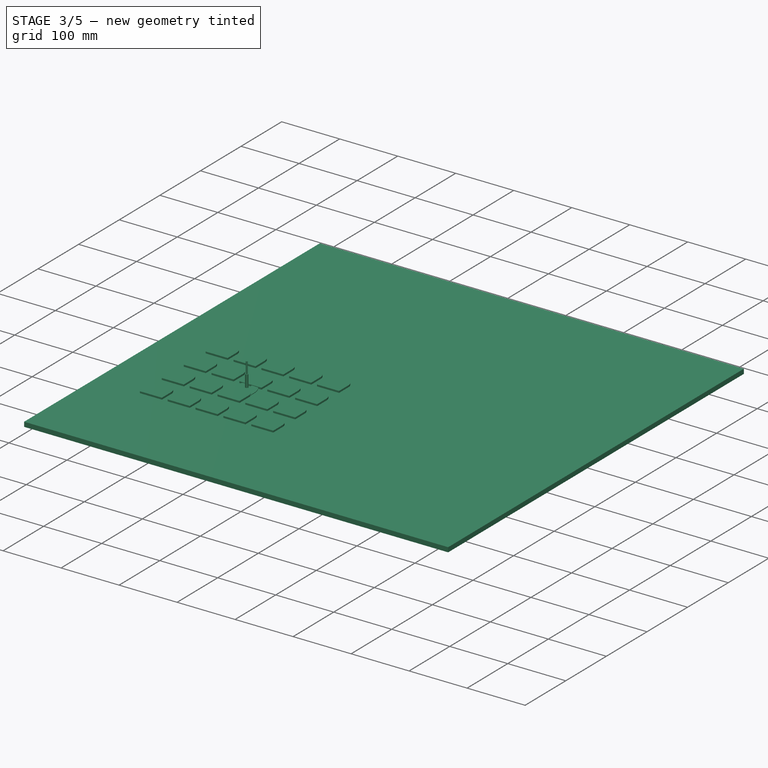
[diagram: stage 3 of 5 — iso view after this stage's code; geometry added in this stage tinted green]
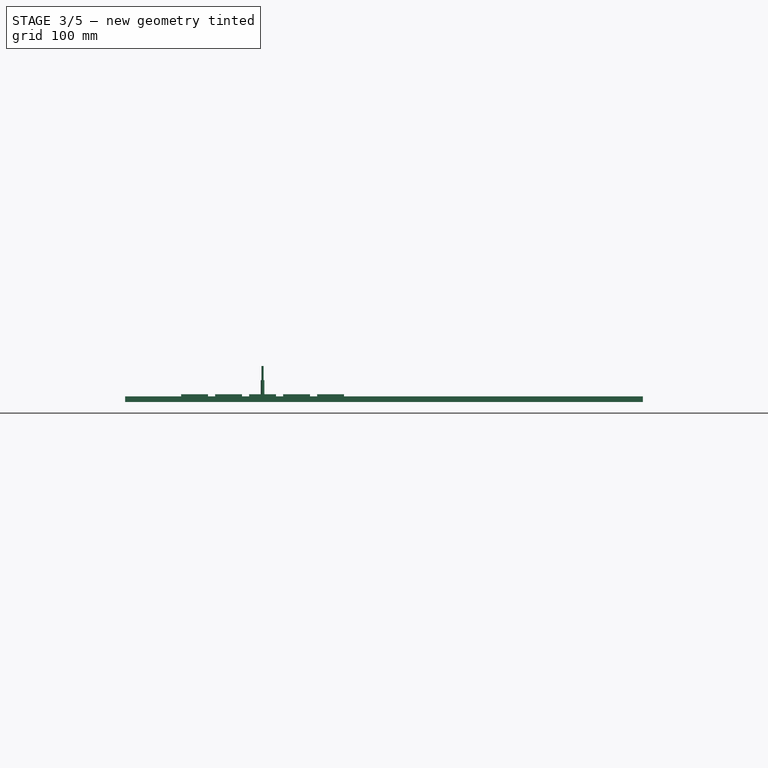
[diagram: stage 3 of 5 — front view after this stage's code; geometry added in this stage tinted green]
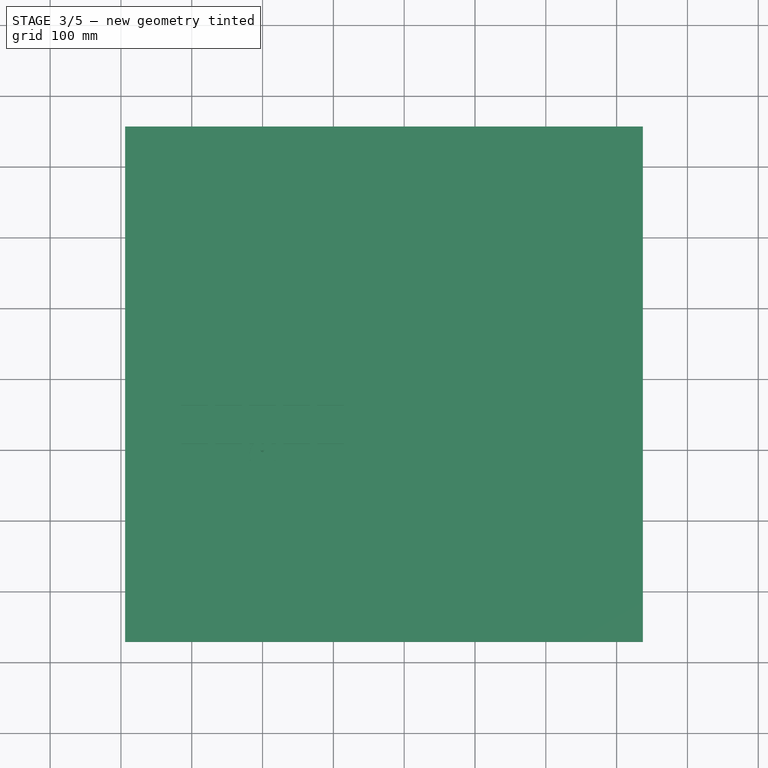
[diagram: stage 3 of 5 — top view after this stage's code; geometry added in this stage tinted green]
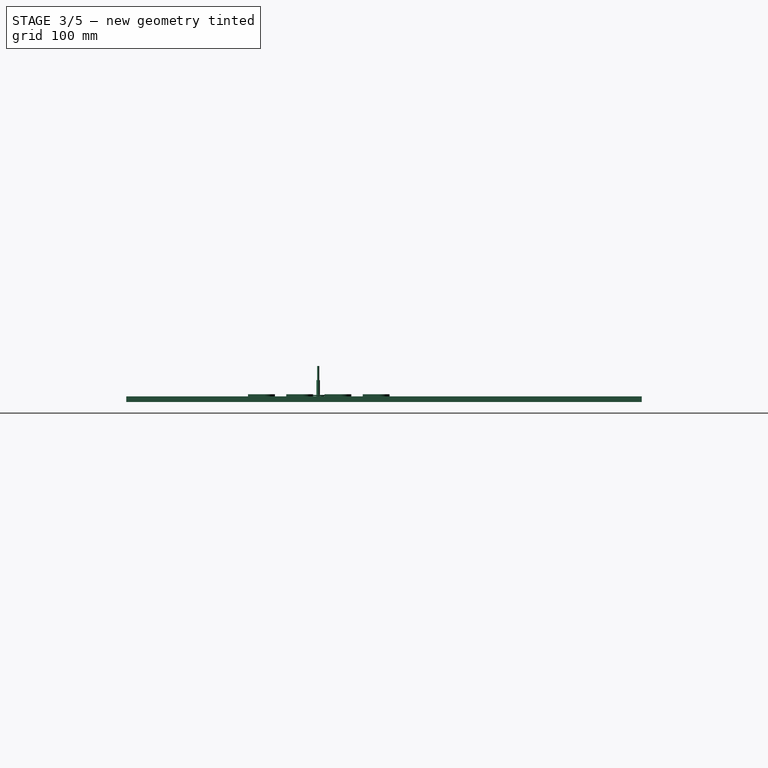
[diagram: stage 3 of 5 — right view after this stage's code; geometry added in this stage tinted green]
FEATURE [PartDesign::Body] Body010  label="ContainerBottomNOT"
  Group = -> [Binder012,Sketch019,Pad014,Thickness001,Binder013,Sketch020,Pad015,Sketch021,Pad016,Binder017,Pocket004,Binder018,Sketch024,Pad020,Binder019,Binder020,Binder021,Pocket005,Pocket006,Pocket007,Sketch025,Pocket008,Fillet013]
  Origin = -> Origin014
  Tip = -> Fillet013
FEATURE [App::Part] Part002  label="EnclosureNOT"
  Group = -> [Body010,Body017]
  Origin = -> Origin013
FEATURE [Sketcher::SketchObject] Sketch028
  FullyConstrained = true
  MapMode = 5
  Support = -> [XY_Plane028]
  expr: Constraints[23] = Spreadsheet.OutsideBoxWidth
  sketch-geometry (17):
    g0: LineSegment StartX=-18 StartY=-19 StartZ=0 EndX=-18 EndY=-8.15339 EndZ=0
    g1: ArcOfCircle CenterX=0 CenterY=0 CenterZ=0 NormalX=0 NormalY=0 NormalZ=1 AngleXU=0 Radius=18 StartAngle=0 EndAngle=3.14159
    g2: LineSegment StartX=18 StartY=-8.15339 StartZ=0 EndX=18 EndY=-19 EndZ=0
    g3: Circle CenterX=0 CenterY=14 CenterZ=0 NormalX=0 NormalY=0 NormalZ=1 AngleXU=0 Radius=4
    g4: LineSegment StartX=-18 StartY=-13 StartZ=0 EndX=0 EndY=18 EndZ=0
    g5: LineSegment StartX=1.8e-15 StartY=18 StartZ=0 EndX=18 EndY=-13 EndZ=0
    g6: LineSegment StartX=0 StartY=0 StartZ=0 EndX=31.1769 EndY=18 EndZ=0
    g7: LineSegment StartX=0 StartY=0 StartZ=0 EndX=0 EndY=-36 EndZ=0
    g8: LineSegment StartX=0 StartY=0 StartZ=0 EndX=-31.1769 EndY=18 EndZ=0
    g9: Circle CenterX=0 CenterY=0 CenterZ=0 NormalX=0 NormalY=0 NormalZ=1 AngleXU=0 Radius=36
    g10: ArcOfCircle CenterX=-3.8e-15 CenterY=-62.8178 CenterZ=0 NormalX=0 NormalY=0 NormalZ=1 AngleXU=0 Radius=46 StartAngle=1.2007 EndAngle=1.94089
    g11: LineSegment StartX=-18 StartY=-19 StartZ=0 EndX=18 EndY=-19 EndZ=0
    g12: ArcOfCircle CenterX=17 CenterY=-19 CenterZ=0 NormalX=0 NormalY=0 NormalZ=1 AngleXU=0 Radius=1 StartAngle=4.3423 EndAngle=6.28319
    g13: ArcOfCircle CenterX=-17 CenterY=-19 CenterZ=0 NormalX=0 NormalY=0 NormalZ=1 AngleXU=0 Radius=1 StartAngle=3.14159 EndAngle=5.08248
    g14: ArcOfCircle CenterX=10 CenterY=-8.15339 CenterZ=0 NormalX=0 NormalY=0 NormalZ=1 AngleXU=0 Radius=28 StartAngle=1.936 EndAngle=3.14159
    g15: ArcOfCircle CenterX=-10 CenterY=-8.15339 CenterZ=0 NormalX=0 NormalY=0 NormalZ=1 AngleXU=0 Radius=28 StartAngle=0 EndAngle=1.20559
    g16: LineSegment StartX=-18 StartY=-8.15339 StartZ=0 EndX=18 EndY=-8.15339 EndZ=0
  constraints (47):
    c: Vertical(g0)
    c: Vertical(g2)
    c: PointOnObject(g4,g1)
    c: DistanceX(g11,g11) = 36
    c: PointOnObject(g4,g-2)
    c: PointOnObject(g3,g-2)
    c: PointOnObject(g4,g3)
    c: Radius(g3) = 4
    c: DistanceY(g-1,g4) = 18
    c: PointOnObject(g4,g0)
    c: PointOnObject(g5,g2)
    c: Coincident(g5,g4)
    c: Equal(g4,g5)
    c: DistanceY(g11,g4) = 6
    c: Coincident(g6,g1)
    c: Coincident(g7,g1)
    c: PointOnObject(g7,g-2)
    c: Coincident(g8,g1)
    c: Coincident(g9,g1)
    c: PointOnObject(g8,g9)
    c: PointOnObject(g7,g9)
    c: Symmetric(g6,g8,g-2)
    c: Angle(g-1,g6) = 0.523599
    c: Radius(g9) = 36
    c: Radius(g10) = 46
    c: Equal(g0,g2)
    c: Tangent(g2,g12) = 1.5708
    c: Tangent(g10,g12) = 1.5708
    c: Tangent(g10,g13) = 1.5708
    c: Tangent(g0,g13) = 1.5708
    c: Coincident(g2,g11)
    c: Radius(g12) = 1
    c: Tangent(g14,g0) = 1.5708
    c: PointOnObject(g1,g-1)
    c: Coincident(g1,g-1)
    c: Symmetric(g10,g10,g7)
    c: Coincident(g11,g0)
    c: Coincident(g15,g2)
    c: Coincident(g15,g14)
    c: Equal(g15,g14)
    c: Equal(g13,g12)
    c: Coincident(g16,g0)
    c: Coincident(g16,g2)
    c: Coincident(g14,g4)
    c: DistanceY(g0,g1) = 19
    c: PointOnObject(g1,g-1)
    c: DistanceX(g15,g14) = 20
FEATURE [PartDesign::Pad] Pad025
  Direction = (0,0,1)
  Length = 8
  Length2 = 10
  Profile = -> Sketch028
  ReferenceAxis = -> Sketch028 [N_Axis]
  Type = 0
  expr: Length = Spreadsheet.OutsideBoxThickness - 2
FEATURE [PartDesign::Thickness] Thickness002
  Base = -> Pad025 [Face9]
  BaseFeature = -> Pad025
  Intersection = true
  Join = 0
  Mode = 0
  SupportTransform = false
  Value = 1
FEATURE [PartDesign::SubShapeBinder] Binder026
  BindCopyOnChange = 0
  BindMode = 0
  ClaimChildren = false
  Context = -> Part004 [Body022.Binder026.]
  Fuse = false
  MakeFace = true
  OffsetFill = false
  OffsetIntersection = false
  OffsetJoinType = 0
  OffsetOpenResult = false
  PartialLoad = false
  Relative = true
  Support = -> [Part[Body.Pad.Edge29,Body.Pad.Edge20,Body.Pad.Edge26,Body.Pad.Edge23,Body.Pad.Edge32,Body.Pad.Edge35]]
  _Version = 2
FEATURE [Sketcher::SketchObject] Sketch029
  ExternalGeometry = -> [Binder026]
  FullyConstrained = true
  MapMode = 5
  Support = -> [XY_Plane028]
  expr: Constraints[7] = Spreadsheet.HoleRadius + 0.5
  sketch-geometry (4):
    g0: Circle CenterX=-12.7 CenterY=-14 CenterZ=0 NormalX=0 NormalY=0 NormalZ=1 AngleXU=0 Radius=1.77
    g1: Circle CenterX=12.7 CenterY=-14 CenterZ=0 NormalX=0 NormalY=0 NormalZ=1 AngleXU=0 Radius=1.77
    g2: Circle CenterX=11.43 CenterY=5 CenterZ=0 NormalX=0 NormalY=0 NormalZ=1 AngleXU=0 Radius=1.77
    g3: Circle CenterX=-11.43 CenterY=5 CenterZ=0 NormalX=0 NormalY=0 NormalZ=1 AngleXU=0 Radius=1.77
  constraints (8):
    c: Coincident(g0,g-7)
    c: Coincident(g1,g-8)
    c: Coincident(g2,g-5)
    c: Coincident(g3,g-3)
    c: Equal(g3,g2)
    c: Equal(g2,g1)
    c: Equal(g1,g0)
    c: Radius(g0) = 1.77
FEATURE [PartDesign::Pad] Pad026
  BaseFeature = -> Thickness002
  Direction = (0,0,1)
  Length = 2
  Length2 = 10
  Profile = -> Sketch029
  ReferenceAxis = -> Sketch029 [N_Axis]
  Type = 0
  expr: Length = Spreadsheet.PCBZOffset
FEATURE [Sketcher::SketchObject] Sketch030
  ExternalGeometry = -> [Binder026]
  FullyConstrained = true
  MapMode = 5
  Support = -> [XY_Plane028]
  expr: Constraints[7] = Spreadsheet.HoleRadius
  sketch-geometry (4):
    g0: Circle CenterX=-11.43 CenterY=5 CenterZ=0 NormalX=0 NormalY=0 NormalZ=1 AngleXU=0 Radius=1.27
    g1: Circle CenterX=11.43 CenterY=5 CenterZ=0 NormalX=0 NormalY=0 NormalZ=1 AngleXU=0 Radius=1.27
    g2: Circle CenterX=12.7 CenterY=-14 CenterZ=0 NormalX=0 NormalY=0 NormalZ=1 AngleXU=0 Radius=1.27
    g3: Circle CenterX=-12.7 CenterY=-14 CenterZ=0 NormalX=0 NormalY=0 NormalZ=1 AngleXU=0 Radius=1.27
  constraints (8):
    c: Coincident(g0,g-3)
    c: Coincident(g1,g-4)
    c: Coincident(g2,g-5)
    c: Coincident(g3,g-6)
    c: Equal(g0,g1)
    c: Equal(g1,g2)
    c: Equal(g2,g3)
    c: Radius(g3) = 1.27
FEATURE [PartDesign::Pad] Pad027
  BaseFeature = -> Pad026
  Direction = (0,0,1)
  Length = 3.6
  Length2 = 10
  Profile = -> Sketch030
  ReferenceAxis = -> Sketch030 [N_Axis]
  Type = 0
  expr: Length = Spreadsheet.PCBThickness + Spreadsheet.PCBZOffset
FEATURE [PartDesign::SubShapeBinder] Binder027
  BindCopyOnChange = 0
  BindMode = 0
  ClaimChildren = false
  Context = -> Part004 [Body022.Binder027.]
  Fuse = false
  MakeFace = true
  OffsetFill = false
  OffsetIntersection = false
  OffsetJoinType = 0
  OffsetOpenResult = false
  PartialLoad = false
  Relative = true
  Support = -> [Part[Body004.Pad004.Edge2]]
  _Version = 2
FEATURE [PartDesign::Pocket] Pocket010
  BaseFeature = -> Pad027
  Direction = (0,0,-1)
  Length = 5
  Length2 = 5
  Midplane = true
  Profile = -> Binder027
  Type = 1
FEATURE [Sketcher::SketchObject] Sketch031
  ExternalGeometry = -> [Binder026]
  FullyConstrained = true
  MapMode = 5
  Support = -> [XY_Plane028]
  expr: Constraints[2] = Spreadsheet.HoleRadius + 0.5
  sketch-geometry (2):
    g0: Circle CenterX=-7.62 CenterY=0 CenterZ=0 NormalX=0 NormalY=0 NormalZ=1 AngleXU=0 Radius=1.77
    g1: Circle CenterX=7.62 CenterY=0 CenterZ=0 NormalX=0 NormalY=0 NormalZ=1 AngleXU=0 Radius=1.77
  constraints (4):
    c: Coincident(g0,g-3)
    c: Coincident(g1,g-4)
    c: Radius(g0) = 1.77
    c: Equal(g0,g1)
FEATURE [PartDesign::Pad] Pad028
  BaseFeature = -> Pocket010
  Direction = (0,0,1)
  Length = 1.4
  Length2 = 10
  Profile = -> Sketch031
  ReferenceAxis = -> Sketch031 [N_Axis]
  Type = 0
  expr: Length = Spreadsheet.PCBZOffset - 0.6
FEATURE [PartDesign::SubShapeBinder] Binder028
  BindCopyOnChange = 0
  BindMode = 0
  ClaimChildren = false
  Context = -> Part004 [Body022.Binder028.]
  Fuse = false
  MakeFace = true
  OffsetFill = false
  OffsetIntersection = false
  OffsetJoinType = 0
  OffsetOpenResult = false
  PartialLoad = false
  Relative = true
  Support = -> [Part003[Body011.PolarPattern.Face10]]
  _Version = 2
FEATURE [PartDesign::SubShapeBinder] Binder029
  BindCopyOnChange = 0
  BindMode = 0
  ClaimChildren = false
  Context = -> Part004 [Body022.Binder029.]
  Fuse = false
  MakeFace = true
  OffsetFill = false
  OffsetIntersection = false
  OffsetJoinType = 0
  OffsetOpenResult = false
  PartialLoad = false
  Relative = true
  Support = -> [Part003[Body011.PolarPattern.Face17]]
  _Version = 2
FEATURE [PartDesign::SubShapeBinder] Binder030
  BindCopyOnChange = 0
  BindMode = 0
  ClaimChildren = false
  Context = -> Part004 [Body022.Binder030.]
  Fuse = false
  MakeFace = true
  OffsetFill = false
  OffsetIntersection = false
  OffsetJoinType = 0
  OffsetOpenResult = false
  PartialLoad = false
  Relative = true
  Support = -> [Part003[Body011.PolarPattern.Face6]]
  _Version = 2
FEATURE [PartDesign::Pocket] Pocket011
  BaseFeature = -> Pad028
  Direction = (0,1,2e-16)
  Length = 5
  Length2 = 5
  Profile = -> Binder028
  Reversed = true
  Type = 1
FEATURE [PartDesign::Pocket] Pocket012
  BaseFeature = -> Pocket011
  Direction = (-0.866025,-0.5,-1e-16)
  Length = 5
  Length2 = 5
  Profile = -> Binder029
  Reversed = true
  Type = 1
FEATURE [PartDesign::Pocket] Pocket013
  BaseFeature = -> Pocket012
  Direction = (0.866025,-0.5,-1e-16)
  Length = 5
  Length2 = 5
  Profile = -> Binder030
  Reversed = true
  Type = 1
FEATURE [Sketcher::SketchObject] Sketch032
  AttachmentOffset = pos=(0,0,16) rot=(0,0,1;0rad)
  FullyConstrained = true
  MapMode = 5
  Placement = pos=(0,-16,-3.6e-15) rot=(1,0,0;1.5708rad)
  Support = -> [XZ_Plane029]
  expr: Constraints[1] = Spreadsheet.WireHoleDiameter / 2
  sketch-geometry (2):
    g0: Circle CenterX=-16 CenterY=4 CenterZ=0 NormalX=0 NormalY=0 NormalZ=1 AngleXU=0 Radius=0.8
    g1: Circle CenterX=16 CenterY=4 CenterZ=0 NormalX=0 NormalY=0 NormalZ=1 AngleXU=0 Radius=0.8
  constraints (5):
    c: Equal(g1,g0)
    c: Radius(g0) = 0.8
    c: DistanceX(g0,g-1) = 16
    c: Symmetric(g1,g0,g-2)
    c: DistanceY(g-1,g0) = 4
FEATURE [PartDesign::Pocket] Pocket014
  BaseFeature = -> Pocket013
  Direction = (0,1,2e-16)
  Length = 5
  Length2 = 5
  Profile = -> Sketch032
  ReferenceAxis = -> Sketch032 [N_Axis]
  Reversed = true
  Type = 0
FEATURE [Sketcher::SketchObject] Sketch033
  FullyConstrained = true
  MapMode = 5
  Placement = pos=(0,0,0) rot=(1,0,0;1.5708rad)
  Support = -> [XZ_Plane029]
  expr: Constraints[1] = Spreadsheet.WireHoleDiameter / 2
  sketch-geometry (1):
    g0: Circle CenterX=0 CenterY=4 CenterZ=0 NormalX=0 NormalY=0 NormalZ=1 AngleXU=0 Radius=0.8
  constraints (3):
    c: PointOnObject(g0,g-2)
    c: Radius(g0) = 0.8
    c: DistanceY(g-1,g0) = 4
FEATURE [PartDesign::Pocket] Pocket015
  BaseFeature = -> Pocket014
  Direction = (0,1,2e-16)
  Length = 50
  Length2 = 5
  Profile = -> Sketch033
  ReferenceAxis = -> Sketch033 [N_Axis]
  Type = 0
FEATURE [PartDesign::Fillet] Fillet014
  Base = -> Pocket015 [Face2,Edge14,Edge16,Edge20,Edge18,Edge19,Edge26,Edge25,Edge22,Edge24,Edge17,Edge21,Edge1]
  BaseFeature = -> Pocket015
  Radius = 0.2
  SupportTransform = false
  UseAllEdges = false
FEATURE [PartDesign::Body] Body022  label="ContainerBottomOR"
  Group = -> [Sketch028,Pad025,Thickness002,Binder026,Sketch029,Pad026,Sketch030,Pad027,Binder027,Pocket010,Sketch031,Pad028,Binder028,Binder029,Binder030,Pocket011,Pocket012,Pocket013,Sketch032,Pocket014,Sketch033,Pocket015,Fillet014]
  Origin = -> Origin028
  Tip = -> Fillet014
FEATURE [PartDesign::SubShapeBinder] Binder031
  BindCopyOnChange = 0
  BindMode = 0
  ClaimChildren = false
  Context = -> Part004 [Body023.Binder031.]
  Fuse = false
  MakeFace = true
  OffsetFill = false
  OffsetIntersection = false
  OffsetJoinType = 0
  OffsetOpenResult = false
  PartialLoad = false
  Relative = true
  Support = -> [Body022[Thickness002.Edge27,Thickness002.Edge26,Thickness002.Edge25,Thickness002.Edge24,Thickness002.Edge23,Thickness002.Edge22,Thickness002.Edge29,Thickness002.Edge28]]
  _Version = 2
FEATURE [PartDesign::Pad] Pad029
  Direction = (0,0,1)
  Length = 1
  Length2 = 10
  Profile = -> Binder031
  Type = 0
  expr: Length = Spreadsheet.WallsThickness + 0.1
FEATURE [PartDesign::SubShapeBinder] Binder032
  BindCopyOnChange = 0
  BindMode = 0
  ClaimChildren = false
  Context = -> Part004 [Body023.Binder032.]
  Fuse = false
  MakeFace = true
  OffsetFill = false
  OffsetIntersection = false
  OffsetJoinType = 0
  OffsetOpenResult = false
  PartialLoad = false
  Relative = true
  Support = -> [Part[Fillet002.Face3]]
  _Version = 2
FEATURE [Sketcher::SketchObject] Sketch034
  AttachmentOffset = pos=(0,0,8) rot=(0,0,1;0rad)
  FullyConstrained = true
  MapMode = 5
  Placement = pos=(0,0,8) rot=(0,0,1;0rad)
  Support = -> [XY_Plane030]
  expr: Constraints[23] = Spreadsheet.OutsideBoxWidth
  sketch-geometry (17):
    g0: LineSegment StartX=-18 StartY=-19 StartZ=0 EndX=-18 EndY=-8.15339 EndZ=0
    g1: ArcOfCircle CenterX=0 CenterY=0 CenterZ=0 NormalX=0 NormalY=0 NormalZ=1 AngleXU=0 Radius=18 StartAngle=0 EndAngle=3.14159
    g2: LineSegment StartX=18 StartY=-8.15339 StartZ=0 EndX=18 EndY=-19 EndZ=0
    g3: Circle CenterX=0 CenterY=14 CenterZ=0 NormalX=0 NormalY=0 NormalZ=1 AngleXU=0 Radius=4
    g4: LineSegment StartX=-18 StartY=-13 StartZ=0 EndX=0 EndY=18 EndZ=0
    g5: LineSegment StartX=1.8e-15 StartY=18 StartZ=0 EndX=18 EndY=-13 EndZ=0
    g6: LineSegment StartX=0 StartY=0 StartZ=0 EndX=31.1769 EndY=18 EndZ=0
    g7: LineSegment StartX=0 StartY=0 StartZ=0 EndX=0 EndY=-36 EndZ=0
    g8: LineSegment StartX=0 StartY=0 StartZ=0 EndX=-31.1769 EndY=18 EndZ=0
    g9: Circle CenterX=0 CenterY=0 CenterZ=0 NormalX=0 NormalY=0 NormalZ=1 AngleXU=0 Radius=36
    g10: ArcOfCircle CenterX=-3.8e-15 CenterY=-62.8178 CenterZ=0 NormalX=0 NormalY=0 NormalZ=1 AngleXU=0 Radius=46 StartAngle=1.2007 EndAngle=1.94089
    g11: LineSegment StartX=-18 StartY=-19 StartZ=0 EndX=18 EndY=-19 EndZ=0
    g12: ArcOfCircle CenterX=17 CenterY=-19 CenterZ=0 NormalX=0 NormalY=0 NormalZ=1 AngleXU=0 Radius=1 StartAngle=4.3423 EndAngle=6.28319
    g13: ArcOfCircle CenterX=-17 CenterY=-19 CenterZ=0 NormalX=0 NormalY=0 NormalZ=1 AngleXU=0 Radius=1 StartAngle=3.14159 EndAngle=5.08248
    g14: ArcOfCircle CenterX=10 CenterY=-8.15339 CenterZ=0 NormalX=0 NormalY=0 NormalZ=1 AngleXU=0 Radius=28 StartAngle=1.936 EndAngle=3.14159
    g15: ArcOfCircle CenterX=-10 CenterY=-8.15339 CenterZ=0 NormalX=0 NormalY=0 NormalZ=1 AngleXU=0 Radius=28 StartAngle=0 EndAngle=1.20559
    g16: LineSegment StartX=-18 StartY=-8.15339 StartZ=0 EndX=18 EndY=-8.15339 EndZ=0
  constraints (47):
    c: Vertical(g0)
    c: Vertical(g2)
    c: PointOnObject(g4,g1)
    c: DistanceX(g11,g11) = 36
    c: PointOnObject(g4,g-2)
    c: PointOnObject(g3,g-2)
    c: PointOnObject(g4,g3)
    c: Radius(g3) = 4
    c: DistanceY(g-1,g4) = 18
    c: PointOnObject(g4,g0)
    c: PointOnObject(g5,g2)
    c: Coincident(g5,g4)
    c: Equal(g4,g5)
    c: DistanceY(g11,g4) = 6
    c: Coincident(g6,g1)
    c: Coincident(g7,g1)
    c: PointOnObject(g7,g-2)
    c: Coincident(g8,g1)
    c: Coincident(g9,g1)
    c: PointOnObject(g8,g9)
    c: PointOnObject(g7,g9)
    c: Symmetric(g6,g8,g-2)
    c: Angle(g-1,g6) = 0.523599
    c: Radius(g9) = 36
    c: Radius(g10) = 46
    c: Equal(g0,g2)
    c: Tangent(g2,g12) = 1.5708
    c: Tangent(g10,g12) = 1.5708
    c: Tangent(g10,g13) = 1.5708
    c: Tangent(g0,g13) = 1.5708
    c: Coincident(g2,g11)
    c: Radius(g12) = 1
    c: Tangent(g14,g0) = 1.5708
    c: PointOnObject(g1,g-1)
    c: Coincident(g1,g-1)
    c: Symmetric(g10,g10,g7)
    c: Coincident(g11,g0)
    c: Coincident(g15,g2)
    c: Coincident(g15,g14)
    c: Equal(g15,g14)
    c: Equal(g13,g12)
    c: Coincident(g16,g0)
    c: Coincident(g16,g2)
    c: Coincident(g14,g4)
    c: DistanceY(g0,g1) = 19
    c: PointOnObject(g1,g-1)
    c: DistanceX(g15,g14) = 20
FEATURE [Sketcher::SketchObject] Sketch035
  AttachmentOffset = pos=(0,7.4,0) rot=(0,1,0;1.5708rad)
  FullyConstrained = true
  MapMode = 5
  Placement = pos=(0,-17.7,7.4) rot=(0.57735,-0.57735,-0.57735;2.0944rad)
  expr: .AttachmentOffset.Base.y = Spreadsheet.ClosingTabZOffset + Spreadsheet.WallsThickness * 3 + 0.05
  expr: .Placement.Base.x = 0
  expr: .Placement.Base.y = -17.7 mm
  expr: Constraints[12] = Spreadsheet.WallsThickness * 2
  expr: Constraints[13] = Spreadsheet.WallsThickness * 2
  expr: Constraints[14] = Spreadsheet.WallsThickness + 0.1
  expr: Constraints[15] = Spreadsheet.WallsThickness
  expr: Constraints[16] = Spreadsheet.WallsThickness * 2
  sketch-geometry (6):
    g0: LineSegment StartX=0 StartY=0 StartZ=0 EndX=-1.8 EndY=0 EndZ=0
    g1: LineSegment StartX=-1.8 StartY=0 StartZ=0 EndX=-0.8 EndY=-2.7 EndZ=0
    g2: LineSegment StartX=-0.8 StartY=-2.7 StartZ=0 EndX=1 EndY=-2.7 EndZ=0
    g3: LineSegment StartX=1 StartY=-2.7 StartZ=0 EndX=1 EndY=-1.8 EndZ=0
    g4: LineSegment StartX=1 StartY=-1.8 StartZ=0 EndX=0 EndY=-1.8 EndZ=0
    g5: LineSegment StartX=0 StartY=-1.8 StartZ=0 EndX=0 EndY=0 EndZ=0
  constraints (17):
    c: Coincident(g-1,g0)
    c: PointOnObject(g0,g-1)
    c: Coincident(g0,g1)
    c: Coincident(g1,g2)
    c: Horizontal(g2)
    c: Coincident(g2,g3)
    c: Vertical(g3)
    c: Coincident(g3,g4)
    c: PointOnObject(g4,g-2)
    c: Horizontal(g4)
    c: Coincident(g4,g5)
    c: Coincident(g5,g0)
    c: DistanceX(g0,g0) = 1.8
    c: DistanceY(g5,g5) = 1.8
    c: DistanceX(g4,g4) = 1
    c: DistanceY(g3,g3) = 0.9
    c: DistanceX(g2,g2) = 1.8
FEATURE [PartDesign::Pad] Pad032
  Direction = (-1,0,0)
  Length = 2
  Length2 = 10
  Midplane = true
  Placement = pos=(0,-17.7,7.4) rot=(0.57735,-0.57735,-0.57735;2.0944rad)
  Profile = -> Sketch035
  ReferenceAxis = -> Sketch035 [N_Axis]
  Type = 0
  expr: Length = Spreadsheet.ClosingTabWidth
FEATURE [PartDesign::Fillet] Fillet015
  Base = -> Pad032 [Face3,Face4,Edge14,Face5,Edge18,Edge17,Edge7,Edge6,Edge5,Edge9,Edge15,Edge10,Edge16,Edge13,Edge12]
  BaseFeature = -> Pad032
  Placement = pos=(0,-17.7,7.4) rot=(0.57735,-0.57735,-0.57735;2.0944rad)
  Radius = 0.2
  SupportTransform = false
  UseAllEdges = false
FEATURE [PartDesign::Body] Body024
  Group = -> [Sketch035,Pad032,Fillet015]
  Origin = -> Origin030
  Placement = pos=(0,1.1,0) rot=(0,0,1;0rad)
  Tip = -> Fillet015
FEATURE [PartDesign::FeatureBase] Clone007
  BaseFeature = -> Body024
FEATURE [PartDesign::Body] Body025
  Group = -> [Clone007]
  Origin = -> Origin031
  Placement = pos=(-2.51147,-1.45,0) rot=(0,0,1;2.0944rad)
  Tip = -> Clone007
  expr: .Placement.Base.x = -2.9 * sin(60)
  expr: .Placement.Base.y = -2.9 * cos(60)
FEATURE [PartDesign::FeatureBase] Clone008
  BaseFeature = -> Body024
FEATURE [PartDesign::Body] Body026
  Group = -> [Clone008]
  Origin = -> Origin032
  Placement = pos=(2.51147,-1.45,0) rot=(0,0,1;4.18879rad)
  Tip = -> Clone008
  expr: .Placement.Base.x = 2.9 * sin(60)
  expr: .Placement.Base.y = -2.9 * cos(60)
FEATURE [PartDesign::SubShapeBinder] Binder033
  BindCopyOnChange = 0
  BindMode = 0
  ClaimChildren = false
  Context = -> Part004 [Body023.Binder033.]
  Fuse = false
  MakeFace = true
  OffsetFill = false
  OffsetIntersection = false
  OffsetJoinType = 0
  OffsetOpenResult = false
  PartialLoad = false
  Relative = true
  Support = -> [Part[Body.Pad.Edge27,Body.Pad.Edge30,Body.Pad.Edge36,Body.Pad.Edge33]]
  _Version = 2
FEATURE [PartDesign::Pad] Pad033
  BaseFeature = -> Pad029
  Direction = (0,0,1)
  Length = 0.7
  Length2 = 10
  Profile = -> Sketch034
  ReferenceAxis = -> Sketch034 [N_Axis]
  Reversed = true
  Type = 0
FEATURE [PartDesign::Pocket] Pocket016
  BaseFeature = -> Pad033
  Direction = (0,0,1)
  Length = 50
  Length2 = 5
  Midplane = true
  Profile = -> Binder032
  Type = 0
FEATURE [Sketcher::SketchObject] Sketch036
  ExternalGeometry = -> [Binder033]
  FullyConstrained = true
  MapMode = 5
  Placement = pos=(0,0,8) rot=(1,0,0;3.14159rad)
  Support = -> [Pocket016]
  expr: Constraints[7] = Spreadsheet.HoleRadius + 0.5
  sketch-geometry (4):
    g0: Circle CenterX=11.43 CenterY=-5 CenterZ=0 NormalX=0 NormalY=0 NormalZ=1 AngleXU=0 Radius=1.77
    g1: Circle CenterX=-11.43 CenterY=-5 CenterZ=0 NormalX=0 NormalY=0 NormalZ=1 AngleXU=0 Radius=1.77
    g2: Circle CenterX=-12.7 CenterY=14 CenterZ=0 NormalX=0 NormalY=0 NormalZ=1 AngleXU=0 Radius=1.77
    g3: Circle CenterX=12.7 CenterY=14 CenterZ=0 NormalX=0 NormalY=0 NormalZ=1 AngleXU=0 Radius=1.77
  constraints (8):
    c: Coincident(g0,g-3)
    c: Coincident(g1,g-4)
    c: Coincident(g2,g-5)
    c: Coincident(g3,g-6)
    c: Equal(g2,g3)
    c: Equal(g3,g0)
    c: Equal(g0,g1)
    c: Radius(g0) = 1.77
FEATURE [PartDesign::Pad] Pad034
  BaseFeature = -> Pocket016
  Direction = (0,0,-1)
  Length = 4.35
  Length2 = 10
  Profile = -> Sketch036
  ReferenceAxis = -> Sketch036 [N_Axis]
  Type = 0
  expr: Length = Spreadsheet.OutsideBoxThickness - Spreadsheet.PCBThickness - Spreadsheet.PCBZOffset - 2.05
FEATURE [PartDesign::Boolean] Boolean002
  BaseFeature = -> Pad034
  Group = -> [Body024,Body025,Body026]
  Type = 0
FEATURE [PartDesign::SubShapeBinder] Binder041
  BindCopyOnChange = 0
  BindMode = 0
  ClaimChildren = false
  Context = -> Part005 [Body028.Binder041.]
  Fuse = false
  MakeFace = true
  OffsetFill = false
  OffsetIntersection = false
  OffsetJoinType = 0
  OffsetOpenResult = false
  PartialLoad = false
  Relative = true
  Support = -> [Body027[Sketch037.Edge7,Sketch037.Edge5,Sketch037.Edge12,Sketch037.Edge14]]
  _Version = 2
FEATURE [Image::ImagePlane] Screenshot_from_2024_10_04_18_19_37  label="Screenshot from 2024-10-04 18-19-37"
  Placement = pos=(-0.45,-1,1) rot=(0,0,1;0rad)
  XSize = 32.8247
  YSize = 31.8988
FEATURE [Sketcher::SketchObject] Sketch047
  ExternalGeometry = -> [Binder041]
  FullyConstrained = false
  MapMode = 5
  Placement = pos=(0,0,8.2) rot=(0,0,1;0rad)
  sketch-geometry (6):
    g0: ArcOfCircle CenterX=7e-16 CenterY=-57.2894 CenterZ=0 NormalX=0 NormalY=0 NormalZ=1 AngleXU=0 Radius=47 StartAngle=1.02694 EndAngle=2.05787
    g1: ArcOfCircle CenterX=4.88e-14 CenterY=-51.2894 CenterZ=0 NormalX=0 NormalY=0 NormalZ=1 AngleXU=0 Radius=45 StartAngle=0.958227 EndAngle=2.11314
    g2: LineSegment StartX=-21.9981 StartY=-15.7553 StartZ=0 EndX=-23.2266 EndY=-12.7469 EndZ=0
    g3: LineSegment StartX=24.3196 StartY=-17.0705 StartZ=0 EndX=25.8737 EndY=-14.4716 EndZ=0
    g4: LineSegment StartX=4.88e-14 StartY=-51.2894 StartZ=0 EndX=-16.7511 EndY=-9.52338 EndZ=0
    g5: LineSegment StartX=7e-16 StartY=-57.2894 StartZ=0 EndX=-17.7408 EndY=-13.7663 EndZ=0
  constraints (14):
    c: Coincident(g0,g-4)
    c: Coincident(g1,g-3)
    c: Coincident(g2,g0)
    c: Coincident(g2,g1)
    c: Coincident(g3,g0)
    c: Coincident(g3,g1)
    c: Coincident(g4,g1)
    c: PointOnObject(g-3,g4)
    c: PointOnObject(g4,g1)
    c: Distance(g-3,g4) = 1
    c: Coincident(g5,g0)
    c: PointOnObject(g5,g0)
    c: PointOnObject(g-4,g5)
    c: Distance(g-4,g5) = 1
FEATURE [PartDesign::Pocket] Pocket024
  BaseFeature = -> Boolean003
  Direction = (0,0,-1)
  Length = 10
  Length2 = -8.2
  Profile = -> Sketch047
  ReferenceAxis = -> Sketch047 [N_Axis]
  Reversed = true
  Type = 1
FEATURE [PartDesign::Fillet] Fillet020
  Base = -> Pocket024 [Edge74,Edge75,Edge72,Edge118,Edge69,Vertex53,Edge45,Edge44,Edge43,Edge42,Edge7,Edge4,Edge10,Edge48,Edge47,Edge46,Edge116,Edge115]
  BaseFeature = -> Pocket024
  Radius = 0.88
  SupportTransform = false
  UseAllEdges = false
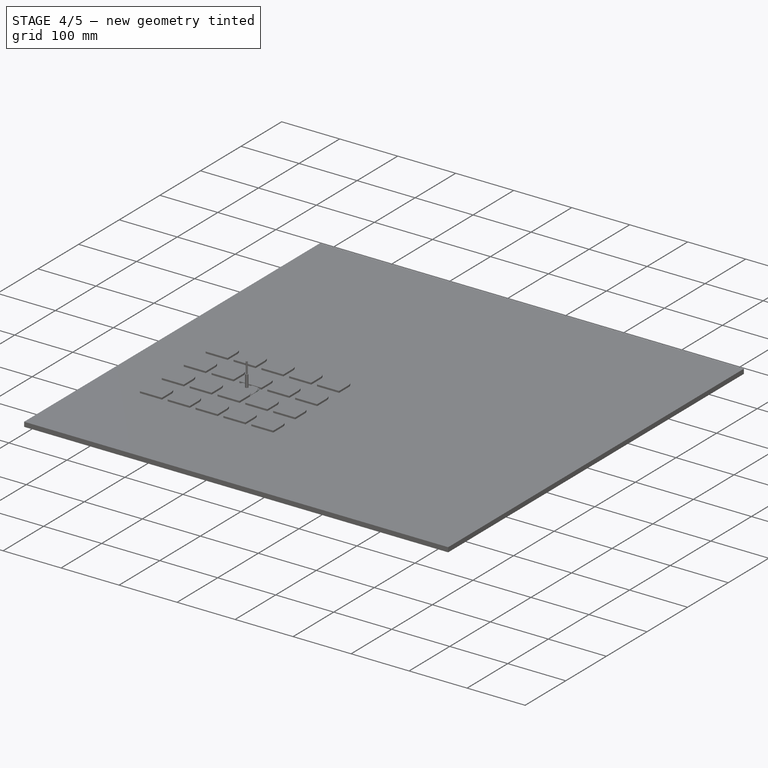
[diagram: stage 4 of 5 — iso view after this stage's code; geometry added in this stage tinted green]
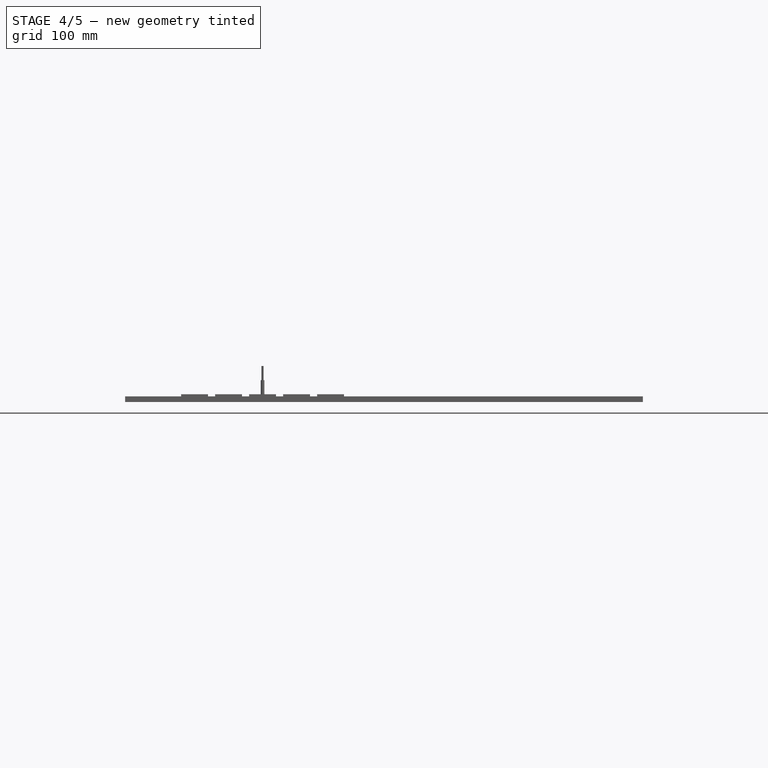
[diagram: stage 4 of 5 — front view after this stage's code; geometry added in this stage tinted green]
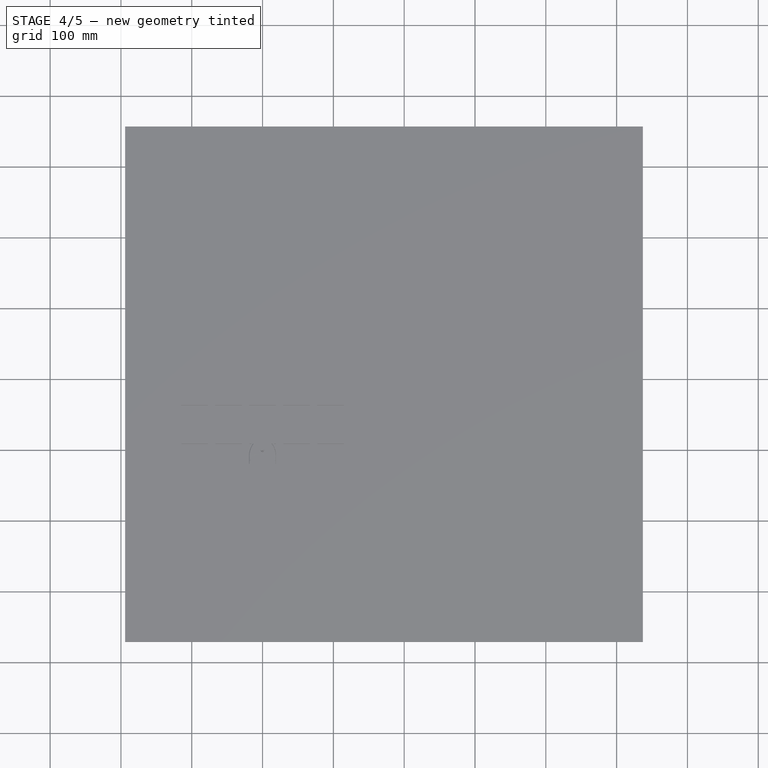
[diagram: stage 4 of 5 — top view after this stage's code; geometry added in this stage tinted green]
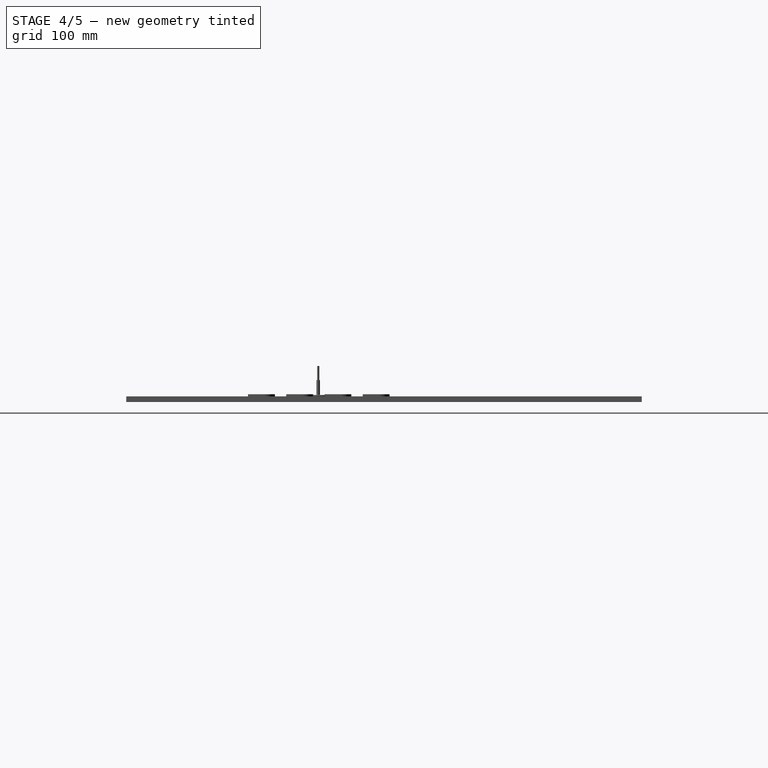
[diagram: stage 4 of 5 — right view after this stage's code; geometry added in this stage tinted green]
FEATURE [PartDesign::Body] Body004  label="Connector"
  Group = -> [Sketch004,Pad004]
  Origin = -> Origin006
  Tip = -> Pad004
FEATURE [PartDesign::SubShapeBinder] Binder
  BindCopyOnChange = 0
  BindMode = 0
  ClaimChildren = false
  Context = -> Part001 [Body005.Binder.]
  Fuse = false
  MakeFace = true
  OffsetFill = false
  OffsetIntersection = false
  OffsetJoinType = 0
  OffsetOpenResult = false
  PartialLoad = false
  Relative = true
  Support = -> [Part[Body.]]
  _Version = 2
FEATURE [Sketcher::SketchObject] Sketch005
  FullyConstrained = true
  MapMode = 5
  Support = -> [XY_Plane008]
  expr: Constraints[30] = Spreadsheet.OutsideBoxWidth
  sketch-geometry (11):
    g0: LineSegment StartX=-18 StartY=-18 StartZ=0 EndX=-18 EndY=3.6e-15 EndZ=0
    g1: ArcOfCircle CenterX=-9e-16 CenterY=-1e-16 CenterZ=0 NormalX=0 NormalY=0 NormalZ=1 AngleXU=0 Radius=18 StartAngle=1e-16 EndAngle=3.14159
    g2: LineSegment StartX=18 StartY=1.7e-15 StartZ=0 EndX=18 EndY=-18 EndZ=0
    g3: LineSegment StartX=18 StartY=-18 StartZ=0 EndX=-18 EndY=-18 EndZ=0
    g4: Circle CenterX=0 CenterY=14 CenterZ=0 NormalX=0 NormalY=0 NormalZ=1 AngleXU=0 Radius=4
    g5: LineSegment StartX=-18 StartY=-12 StartZ=0 EndX=0 EndY=18 EndZ=0
    g6: LineSegment StartX=0 StartY=18 StartZ=0 EndX=18 EndY=-12 EndZ=0
    g7: LineSegment StartX=-9e-16 StartY=-1e-16 StartZ=0 EndX=31.1769 EndY=18 EndZ=0
    g8: LineSegment StartX=-9e-16 StartY=-1e-16 StartZ=0 EndX=0 EndY=-36 EndZ=0
    g9: LineSegment StartX=-9e-16 StartY=-1e-16 StartZ=0 EndX=-31.1769 EndY=18 EndZ=0
    g10: Circle CenterX=-9e-16 CenterY=-1e-16 CenterZ=0 NormalX=0 NormalY=0 NormalZ=1 AngleXU=0 Radius=36
  constraints (31):
    c: Vertical(g0)
    c: Tangent(g0,g1) = 1.5708
    c: Coincident(g1,g2)
    c: Vertical(g2)
    c: Coincident(g2,g3)
    c: Horizontal(g3)
    c: Symmetric(g0,g1,g-2)
    c: PointOnObject(g5,g1)
    c: DistanceX(g3,g3) = 36
    c: PointOnObject(g5,g-2)
    c: PointOnObject(g4,g-2)
    c: PointOnObject(g5,g4)
    c: Radius(g4) = 4
    c: DistanceY(g0,g-1) = 18
    c: DistanceY(g-1,g5) = 18
    c: PointOnObject(g5,g0)
    c: PointOnObject(g6,g2)
    c: Coincident(g6,g5)
    c: Equal(g5,g6)
    c: Coincident(g3,g0)
    c: DistanceY(g0,g5) = 6
    c: Coincident(g7,g1)
    c: Coincident(g8,g1)
    c: PointOnObject(g8,g-2)
    c: Coincident(g9,g1)
    c: Coincident(g10,g1)
    c: PointOnObject(g9,g10)
    c: PointOnObject(g8,g10)
    c: Symmetric(g7,g9,g-2)
    c: Angle(g-1,g7) = 0.523599
    c: Radius(g10) = 36
FEATURE [PartDesign::Pad] Pad005
  Direction = (0,0,1)
  Length = 8
  Length2 = 10
  Profile = -> Sketch005
  ReferenceAxis = -> Sketch005 [N_Axis]
  Type = 0
  expr: Length = Spreadsheet.OutsideBoxThickness - 2
FEATURE [Sketcher::SketchObject] Sketch013
  ExternalGeometry = -> [Binder008]
  FullyConstrained = true
  MapMode = 5
  Placement = pos=(0,0,7.3) rot=(1,0,0;3.14159rad)
  expr: Constraints[11] = Spreadsheet.HoleRadius + 0.5
  sketch-geometry (6):
    g0: Circle CenterX=-12.7 CenterY=14 CenterZ=0 NormalX=0 NormalY=0 NormalZ=1 AngleXU=0 Radius=1.77
    g1: Circle CenterX=12.7 CenterY=14 CenterZ=0 NormalX=0 NormalY=0 NormalZ=1 AngleXU=0 Radius=1.77
    g2: Circle CenterX=7.62 CenterY=0 CenterZ=0 NormalX=0 NormalY=0 NormalZ=1 AngleXU=0 Radius=1.77
    g3: Circle CenterX=-7.62 CenterY=0 CenterZ=0 NormalX=0 NormalY=0 NormalZ=1 AngleXU=0 Radius=1.77
    g4: Circle CenterX=-11.43 CenterY=-5 CenterZ=0 NormalX=0 NormalY=0 NormalZ=1 AngleXU=0 Radius=1.77
    g5: Circle CenterX=11.43 CenterY=-5 CenterZ=0 NormalX=0 NormalY=0 NormalZ=1 AngleXU=0 Radius=1.77
  constraints (12):
    c: Coincident(g0,g-3)
    c: Coincident(g1,g-4)
    c: Coincident(g2,g-5)
    c: Coincident(g3,g-7)
    c: Coincident(g4,g-8)
    c: Coincident(g5,g-6)
    c: Equal(g5,g2)
    c: Equal(g2,g3)
    c: Equal(g3,g4)
    c: Equal(g4,g0)
    c: Equal(g0,g1)
    c: Radius(g0) = 1.77
FEATURE [PartDesign::SubShapeBinder] Binder012
  BindCopyOnChange = 0
  BindMode = 0
  ClaimChildren = false
  Context = -> Part002 [Body010.Binder012.]
  Fuse = false
  MakeFace = true
  OffsetFill = false
  OffsetIntersection = false
  OffsetJoinType = 0
  OffsetOpenResult = false
  PartialLoad = false
  Relative = true
  Support = -> [Part[Body.]]
  _Version = 2
FEATURE [Sketcher::SketchObject] Sketch019
  FullyConstrained = true
  MapMode = 5
  Support = -> [XY_Plane014]
  expr: Constraints[12] = Spreadsheet.OutsideBoxWidth
  expr: Constraints[5] = 4 mm
  sketch-geometry (20):
    g0: LineSegment StartX=-18 StartY=-18 StartZ=0 EndX=-18 EndY=-12.2543 EndZ=0
    g1: LineSegment StartX=18 StartY=-12.2543 StartZ=0 EndX=18 EndY=-18 EndZ=0
    g2: LineSegment StartX=18 StartY=-18 StartZ=0 EndX=-18 EndY=-18 EndZ=0
    g3: ArcOfCircle CenterX=-2.521e-13 CenterY=14 CenterZ=0 NormalX=0 NormalY=0 NormalZ=1 AngleXU=0 Radius=4 StartAngle=5.89879 EndAngle=9.80917
    g4: LineSegment StartX=-18 StartY=-12.2543 StartZ=0 EndX=-3.7081 EndY=12.5 EndZ=0
    g5: LineSegment StartX=3.7081 StartY=12.5 StartZ=0 EndX=18 EndY=-12.2543 EndZ=0
    g6: LineSegment StartX=0 StartY=0 StartZ=0 EndX=31.1769 EndY=18 EndZ=0
    g7: LineSegment StartX=0 StartY=0 StartZ=0 EndX=0 EndY=-36 EndZ=0
    g8: LineSegment StartX=0 StartY=0 StartZ=0 EndX=-31.1769 EndY=18 EndZ=0
    g9: Circle CenterX=0 CenterY=0 CenterZ=0 NormalX=0 NormalY=0 NormalZ=1 AngleXU=0 Radius=36
    g10: LineSegment StartX=-17.7321 StartY=-11.7902 StartZ=0 EndX=-3.7081 EndY=12.5 EndZ=0
    g11: ArcOfCircle CenterX=-2.521e-13 CenterY=14 CenterZ=0 NormalX=0 NormalY=0 NormalZ=1 AngleXU=0 Radius=4 StartAngle=5.89879 EndAngle=9.80917
    g12: LineSegment StartX=3.7081 StartY=12.5 StartZ=0 EndX=17.7321 EndY=-11.7902 EndZ=0
    g13: ArcOfCircle CenterX=16 CenterY=-12.7902 CenterZ=0 NormalX=0 NormalY=0 NormalZ=1 AngleXU=0 Radius=2 StartAngle=5e-16 EndAngle=0.523599
    g14: LineSegment StartX=18 StartY=-12.7902 StartZ=0 EndX=18 EndY=-17 EndZ=0
    g15: ArcOfCircle CenterX=17 CenterY=-17 CenterZ=0 NormalX=0 NormalY=0 NormalZ=1 AngleXU=0 Radius=1 StartAngle=4.71239 EndAngle=6.28319
    g16: LineSegment StartX=17 StartY=-18 StartZ=0 EndX=-17 EndY=-18 EndZ=0
    g17: ArcOfCircle CenterX=-17 CenterY=-17 CenterZ=0 NormalX=0 NormalY=0 NormalZ=1 AngleXU=0 Radius=1 StartAngle=3.14159 EndAngle=4.71239
    g18: LineSegment StartX=-18 StartY=-17 StartZ=0 EndX=-18 EndY=-12.7902 EndZ=0
    g19: ArcOfCircle CenterX=-16 CenterY=-12.7902 CenterZ=0 NormalX=0 NormalY=0 NormalZ=1 AngleXU=0 Radius=2 StartAngle=2.61799 EndAngle=3.14159
  constraints (54):
    c: Vertical(g0)
    c: Vertical(g1)
    c: Coincident(g1,g2)
    c: Horizontal(g2)
    c: DistanceX(g2,g2) = 36
    c: Radius(g3) = 4
    c: DistanceY(g0,g-1) = 18
    c: Coincident(g2,g0)
    c: PointOnObject(g8,g9)
    c: PointOnObject(g7,g9)
    c: Symmetric(g6,g8,g-2)
    c: Angle(g-1,g6) = 0.523599
    c: Radius(g9) = 36
    c: Coincident(g3,g4)
    c: Coincident(g3,g5)
    c: Coincident(g1,g5)
    c: Coincident(g0,g4)
    c: Equal(g1,g0)
    c: Symmetric(g3,g3,g-2)
    c: Symmetric(g0,g1,g7)
    c: DistanceY(g3,g3) = 1.5
    c: DistanceY(g0,g3) = 32
    c: Coincident(g9,g6)
    c: Coincident(g6,g7)
    c: Coincident(g6,g8)
    c: Coincident(g6,g-1)
    c: Angle(g4) = 1.0472
    c: Coincident(g11,g12)
    c: Tangent(g12,g13) = 1.5708
    c: Vertical(g14)
    c: Tangent(g14,g15) = 1.5708
    c: Horizontal(g16)
    c: Tangent(g16,g17) = 1.5708
    c: Coincident(g17,g18)
    c: Vertical(g18)
    c: Tangent(g18,g19) = 1.5708
    c: Equal(g15,g17)
    c: Equal(g19,g13)
    c: PointOnObject(g18,g0)
    c: PointOnObject(g13,g1)
    c: Radius(g17) = 1
    c: Equal(g18,g14)
    c: Tangent(g15,g16) = 1.5708
    c: PointOnObject(g15,g2)
    c: PointOnObject(g10,g4)
    c: Tangent(g19,g10) = 1.5708
    c: PointOnObject(g10,g4)
    c: PointOnObject(g11,g5)
    c: PointOnObject(g12,g5)
    c: Tangent(g13,g14) = 1.5708
    c: Equal(g11,g3)
    c: Radius(g19) = 2
    c: Coincident(g11,g3)
    c: Coincident(g11,g10)
FEATURE [PartDesign::Pad] Pad014
  Direction = (0,0,1)
  Length = 8
  Length2 = 10
  Profile = -> Sketch019
  ReferenceAxis = -> Sketch019 [N_Axis]
  Type = 0
  expr: Length = Spreadsheet.OutsideBoxThickness - 2
FEATURE [PartDesign::Thickness] Thickness001
  Base = -> Pad014 [Face12]
  BaseFeature = -> Pad014
  Intersection = false
  Join = 1
  Mode = 0
  SupportTransform = false
  Value = 1
FEATURE [PartDesign::SubShapeBinder] Binder013
  BindCopyOnChange = 0
  BindMode = 0
  ClaimChildren = false
  Context = -> Part002 [Body010.Binder013.]
  Fuse = false
  MakeFace = true
  OffsetFill = false
  OffsetIntersection = false
  OffsetJoinType = 0
  OffsetOpenResult = false
  PartialLoad = false
  Relative = true
  Support = -> [Part[Body.Pad.Edge26,Body.Pad.Edge23,Body.Pad.Edge20,Body.Pad.Edge29,Body.Pad.Edge35,Body.Pad.Edge32]]
  _Version = 2
FEATURE [Sketcher::SketchObject] Sketch020
  ExternalGeometry = -> [Binder013]
  FullyConstrained = true
  MapMode = 5
  Support = -> [XY_Plane014]
  expr: Constraints[3] = Spreadsheet.HoleRadius + 0.5
  sketch-geometry (2):
    g0: Circle CenterX=-12.7 CenterY=-14 CenterZ=0 NormalX=0 NormalY=0 NormalZ=1 AngleXU=0 Radius=1.77
    g1: Circle CenterX=12.7 CenterY=-14 CenterZ=0 NormalX=0 NormalY=0 NormalZ=1 AngleXU=0 Radius=1.77
  constraints (4):
    c: Coincident(g0,g-4)
    c: Coincident(g1,g-3)
    c: Equal(g1,g0)
    c: Radius(g0) = 1.77
FEATURE [PartDesign::Pad] Pad015
  BaseFeature = -> Thickness001
  Direction = (0,0,1)
  Length = 2
  Length2 = 10
  Profile = -> Sketch020
  ReferenceAxis = -> Sketch020 [N_Axis]
  Type = 0
  expr: Length = Spreadsheet.PCBZOffset
FEATURE [Sketcher::SketchObject] Sketch021
  ExternalGeometry = -> [Binder013]
  FullyConstrained = true
  MapMode = 5
  Support = -> [XY_Plane014]
  expr: Constraints[1] = Spreadsheet.HoleRadius
  sketch-geometry (2):
    g0: Circle CenterX=-12.7 CenterY=-14 CenterZ=0 NormalX=0 NormalY=0 NormalZ=1 AngleXU=0 Radius=1.27
    g1: Circle CenterX=12.7 CenterY=-14 CenterZ=0 NormalX=0 NormalY=0 NormalZ=1 AngleXU=0 Radius=1.27
  constraints (4):
    c: Equal(g1,g0)
    c: Radius(g0) = 1.27
    c: Coincident(g0,g-3)
    c: Coincident(g1,g-4)
FEATURE [PartDesign::Pad] Pad016
  BaseFeature = -> Pad015
  Direction = (0,0,1)
  Length = 3.6
  Length2 = 10
  Profile = -> Sketch021
  ReferenceAxis = -> Sketch021 [N_Axis]
  Type = 0
  expr: Length = Spreadsheet.PCBThickness + Spreadsheet.PCBZOffset
FEATURE [PartDesign::Body] Body006  label="ContainerTopAND"
  BaseFeature = -> Binder003
  Group = -> [BaseFeature,Pad008,Binder006,Binder008,Fillet005,Binder011,Pad011,Sketch013,Pocket003,Boolean,Fillet009,Pad019,Fillet010]
  Origin = -> Origin009
  Tip = -> Fillet010
FEATURE [App::Part] Part001  label="EnclosureAND"
  Group = -> [Body005,Binder003,Body006]
  Origin = -> Origin007
FEATURE [PartDesign::SubShapeBinder] Binder017
  BindCopyOnChange = 0
  BindMode = 0
  ClaimChildren = false
  Context = -> Part002 [Body010.Binder017.]
  Fuse = false
  MakeFace = true
  OffsetFill = false
  OffsetIntersection = false
  OffsetJoinType = 0
  OffsetOpenResult = false
  PartialLoad = false
  Relative = true
  Support = -> [Part[Body004.Pad004.Edge3]]
  _Version = 2
FEATURE [PartDesign::Pocket] Pocket004
  BaseFeature = -> Pad016
  Direction = (0,0,-1)
  Length = 5
  Length2 = 5
  Profile = -> Binder017
  Reversed = true
  Type = 4
FEATURE [PartDesign::SubShapeBinder] Binder018
  BindCopyOnChange = 0
  BindMode = 0
  ClaimChildren = false
  Context = -> Part002 [Body010.Binder018.]
  Fuse = false
  MakeFace = true
  OffsetFill = false
  OffsetIntersection = false
  OffsetJoinType = 0
  OffsetOpenResult = false
  PartialLoad = false
  Relative = true
  Support = -> [Part[Body.Pad.Edge20,Body.Pad.Edge23]]
  _Version = 2
FEATURE [Sketcher::SketchObject] Sketch024
  ExternalGeometry = -> [Binder013]
  FullyConstrained = true
  MapMode = 5
  Support = -> [XY_Plane014]
  expr: Constraints[0] = Spreadsheet.HoleRadius + 0.5
  sketch-geometry (2):
    g0: Circle CenterX=-7.62 CenterY=0 CenterZ=0 NormalX=0 NormalY=0 NormalZ=1 AngleXU=0 Radius=1.77
    g1: Circle CenterX=7.62 CenterY=0 CenterZ=0 NormalX=0 NormalY=0 NormalZ=1 AngleXU=0 Radius=1.77
  constraints (4):
    c: Radius(g0) = 1.77
    c: Equal(g0,g1)
    c: Coincident(g0,g-3)
    c: Coincident(g1,g-4)
FEATURE [PartDesign::Pad] Pad020
  BaseFeature = -> Pocket004
  Direction = (0,0,1)
  Length = 1.4
  Length2 = 10
  Profile = -> Sketch024
  ReferenceAxis = -> Sketch024 [N_Axis]
  Type = 0
  expr: Length = Spreadsheet.PCBZOffset - 0.6
FEATURE [PartDesign::Body] Body016
  Group = -> [Clone003]
  Origin = -> Origin021
  Placement = pos=(-9,0,0) rot=(0,0,1;0rad)
  Tip = -> Clone003
  expr: .Placement.Base.x = -Spreadsheet.OutsideBoxWidth / 4
FEATURE [App::Part] Part003  label="EnclosureSupport"
  Group = -> [Body011,Body015,Body016]
  Origin = -> Origin019
FEATURE [PartDesign::SubShapeBinder] Binder019
  BindCopyOnChange = 0
  BindMode = 0
  ClaimChildren = false
  Context = -> Part002 [Body010.Binder019.]
  Fuse = false
  MakeFace = true
  OffsetFill = false
  OffsetIntersection = false
  OffsetJoinType = 0
  OffsetOpenResult = false
  PartialLoad = false
  Relative = true
  Support = -> [Part003[Body016.Clone003.Face6,Body015.Clone002.Face6]]
  _Version = 2
FEATURE [PartDesign::SubShapeBinder] Binder020
  BindCopyOnChange = 0
  BindMode = 0
  ClaimChildren = false
  Context = -> Part002 [Body010.Binder020.]
  Fuse = false
  MakeFace = true
  OffsetFill = false
  OffsetIntersection = false
  OffsetJoinType = 0
  OffsetOpenResult = false
  PartialLoad = false
  Relative = true
  Support = -> [Part003[Body011.PolarPattern.Face6]]
  _Version = 2
FEATURE [PartDesign::SubShapeBinder] Binder021
  BindCopyOnChange = 0
  BindMode = 0
  ClaimChildren = false
  Context = -> Part002 [Body010.Binder021.]
  Fuse = false
  MakeFace = true
  OffsetFill = false
  OffsetIntersection = false
  OffsetJoinType = 0
  OffsetOpenResult = false
  PartialLoad = false
  Relative = true
  Support = -> [Part003[Body011.PolarPattern.Face17]]
  _Version = 2
FEATURE [PartDesign::Pocket] Pocket005
  BaseFeature = -> Pad020
  Direction = (0,1,-2e-16)
  Length = 5
  Length2 = 5
  Profile = -> Binder019
  Reversed = true
  Type = 1
FEATURE [PartDesign::Pocket] Pocket006
  BaseFeature = -> Pocket005
  Direction = (0.866025,-0.5,-1e-16)
  Length = 5
  Length2 = 5
  Profile = -> Binder020
  Reversed = true
  Type = 1
FEATURE [PartDesign::Pocket] Pocket007
  BaseFeature = -> Pocket006
  Direction = (-0.866025,-0.5,-1e-16)
  Length = 5
  Length2 = 5
  Profile = -> Binder021
  Reversed = true
  Type = 1
FEATURE [Sketcher::SketchObject] Sketch025
  FullyConstrained = true
  MapMode = 5
  Placement = pos=(0,-19,0) rot=(1,0,0;1.5708rad)
  Support = -> [Pocket007]
  expr: Constraints[1] = Spreadsheet.WireHoleDiameter / 2
  sketch-geometry (1):
    g0: Circle CenterX=0 CenterY=4 CenterZ=0 NormalX=0 NormalY=0 NormalZ=1 AngleXU=0 Radius=0.8
  constraints (3):
    c: PointOnObject(g0,g-2)
    c: Radius(g0) = 0.8
    c: DistanceY(g-1,g0) = 4
FEATURE [PartDesign::Pocket] Pocket008
  BaseFeature = -> Pocket007
  Direction = (0,1,-2e-16)
  Length = 50
  Length2 = 5
  Profile = -> Sketch025
  ReferenceAxis = -> Sketch025 [N_Axis]
  Type = 0
FEATURE [PartDesign::SubShapeBinder] Binder022
  BindCopyOnChange = 0
  BindMode = 0
  ClaimChildren = false
  Context = -> Part002 [Body017.Binder022.]
  Fuse = false
  MakeFace = true
  OffsetFill = false
  OffsetIntersection = false
  OffsetJoinType = 0
  OffsetOpenResult = false
  PartialLoad = false
  Relative = true
  Support = -> [Body010[Pocket008.Edge33,Pocket008.Edge42,Pocket008.Edge41,Pocket008.Edge40,Pocket008.Edge39,Pocket008.Edge38,Pocket008.Edge37,Pocket008.Edge36]]
  _Version = 2
FEATURE [PartDesign::Pad] Pad021
  Direction = (0,0,1)
  Length = 1
  Length2 = 10
  Profile = -> Binder022
  Type = 0
  expr: Length = Spreadsheet.WallsThickness + 0.1
FEATURE [PartDesign::SubShapeBinder] Binder023
  BindCopyOnChange = 0
  BindMode = 0
  ClaimChildren = false
  Context = -> Part002 [Body017.Binder023.]
  Fuse = false
  MakeFace = true
  OffsetFill = false
  OffsetIntersection = false
  OffsetJoinType = 0
  OffsetOpenResult = false
  PartialLoad = false
  Relative = true
  Support = -> [Part[Fillet002.Face3]]
  _Version = 2
FEATURE [PartDesign::SubShapeBinder] Binder024
  BindCopyOnChange = 0
  BindMode = 0
  ClaimChildren = false
  Context = -> Part002 [Body017.Binder024.]
  Fuse = false
  MakeFace = true
  OffsetFill = false
  OffsetIntersection = false
  OffsetJoinType = 0
  OffsetOpenResult = false
  PartialLoad = false
  Relative = true
  Support = -> [Part[Body.Pad.Edge30,Body.Pad.Edge21,Body.Pad.Edge24,Body.Pad.Edge27,Body.Pad.Edge33,Body.Pad.Edge36]]
  _Version = 2
FEATURE [PartDesign::SubShapeBinder] Binder025
  BindCopyOnChange = 0
  BindMode = 0
  ClaimChildren = false
  Context = -> Part002 [Body017.Binder025.]
  Fuse = false
  MakeFace = true
  OffsetFill = false
  OffsetIntersection = false
  OffsetJoinType = 0
  OffsetOpenResult = false
  PartialLoad = false
  Relative = true
  Support = -> [Body010[Pocket008.Edge25,Pocket008.Edge26,Pocket008.Edge27,Pocket008.Edge28,Pocket008.Edge29,Pocket008.Edge30,Pocket008.Edge31,Pocket008.Edge32]]
  _Version = 2
FEATURE [PartDesign::Pad] Pad022
  BaseFeature = -> Pad021
  Direction = (0,0,1)
  Length = 0.7
  Length2 = 10
  Profile = -> Binder025
  Reversed = true
  Type = 0
  expr: Length = 0.7 mm
FEATURE [PartDesign::Pocket] Pocket009
  BaseFeature = -> Pad022
  Direction = (0,0,1)
  Length = 5
  Length2 = 5
  Midplane = true
  Profile = -> Binder023
  Type = 1
FEATURE [Sketcher::SketchObject] Sketch026
  ExternalGeometry = -> [Binder024]
  FullyConstrained = true
  MapMode = 5
  Placement = pos=(0,0,7.3) rot=(1,0,0;3.14159rad)
  Support = -> [Pocket009]
  expr: Constraints[4] = Spreadsheet.HoleRadius + 0.5
  sketch-geometry (4):
    g0: Circle CenterX=-12.7 CenterY=14 CenterZ=0 NormalX=0 NormalY=0 NormalZ=1 AngleXU=0 Radius=1.77
    g1: Circle CenterX=12.7 CenterY=14 CenterZ=0 NormalX=0 NormalY=0 NormalZ=1 AngleXU=0 Radius=1.77
    g2: Circle CenterX=7.62 CenterY=0 CenterZ=0 NormalX=0 NormalY=0 NormalZ=1 AngleXU=0 Radius=1.77
    g3: Circle CenterX=-7.62 CenterY=0 CenterZ=0 NormalX=0 NormalY=0 NormalZ=1 AngleXU=0 Radius=1.77
  constraints (8):
    c: Coincident(g0,g-6)
    c: Coincident(g1,g-5)
    c: Coincident(g2,g-4)
    c: Coincident(g3,g-3)
    c: Radius(g0) = 1.77
    c: Equal(g0,g1)
    c: Equal(g1,g2)
    c: Equal(g2,g3)
FEATURE [PartDesign::Pad] Pad023
  BaseFeature = -> Pocket009
  Direction = (0,0,-1)
  Length = 3.6
  Length2 = 10
  Profile = -> Sketch026
  ReferenceAxis = -> Sketch026 [N_Axis]
  Type = 0
  expr: Length = Spreadsheet.OutsideBoxThickness - Spreadsheet.PCBThickness - Spreadsheet.PCBZOffset - 2.8
FEATURE [Sketcher::SketchObject] Sketch027
  AttachmentOffset = pos=(0,7.4,0) rot=(0,1,0;1.5708rad)
  FullyConstrained = true
  MapMode = 5
  Placement = pos=(0,-17.7,7.4) rot=(0.57735,-0.57735,-0.57735;2.0944rad)
  expr: .AttachmentOffset.Base.y = Spreadsheet.ClosingTabZOffset + Spreadsheet.WallsThickness * 3 + 0.05
  expr: .Placement.Base.x = 0
  expr: .Placement.Base.y = -17.7 mm
  expr: Constraints[12] = Spreadsheet.WallsThickness * 2
  expr: Constraints[13] = Spreadsheet.WallsThickness * 2
  expr: Constraints[14] = Spreadsheet.WallsThickness + 0.1
  expr: Constraints[15] = Spreadsheet.WallsThickness
  expr: Constraints[16] = Spreadsheet.WallsThickness * 2
  sketch-geometry (6):
    g0: LineSegment StartX=0 StartY=0 StartZ=0 EndX=-1.8 EndY=0 EndZ=0
    g1: LineSegment StartX=-1.8 StartY=0 StartZ=0 EndX=-0.8 EndY=-2.7 EndZ=0
    g2: LineSegment StartX=-0.8 StartY=-2.7 StartZ=0 EndX=1 EndY=-2.7 EndZ=0
    g3: LineSegment StartX=1 StartY=-2.7 StartZ=0 EndX=1 EndY=-1.8 EndZ=0
    g4: LineSegment StartX=1 StartY=-1.8 StartZ=0 EndX=0 EndY=-1.8 EndZ=0
    g5: LineSegment StartX=0 StartY=-1.8 StartZ=0 EndX=0 EndY=0 EndZ=0
  constraints (17):
    c: Coincident(g-1,g0)
    c: PointOnObject(g0,g-1)
    c: Coincident(g0,g1)
    c: Coincident(g1,g2)
    c: Horizontal(g2)
    c: Coincident(g2,g3)
    c: Vertical(g3)
    c: Coincident(g3,g4)
    c: PointOnObject(g4,g-2)
    c: Horizontal(g4)
    c: Coincident(g4,g5)
    c: Coincident(g5,g0)
    c: DistanceX(g0,g0) = 1.8
    c: DistanceY(g5,g5) = 1.8
    c: DistanceX(g4,g4) = 1
    c: DistanceY(g3,g3) = 0.9
    c: DistanceX(g2,g2) = 1.8
FEATURE [PartDesign::Pad] Pad024
  Direction = (-1,0,0)
  Length = 2
  Length2 = 10
  Midplane = true
  Placement = pos=(0,-17.7,7.4) rot=(0.57735,-0.57735,-0.57735;2.0944rad)
  Profile = -> Sketch027
  ReferenceAxis = -> Sketch027 [N_Axis]
  Type = 0
  expr: Length = Spreadsheet.ClosingTabWidth
FEATURE [PartDesign::Fillet] Fillet011
  Base = -> Pad024 [Face8,Face6,Face4,Face7,Face3,Face2]
  BaseFeature = -> Pad024
  Placement = pos=(0,-17.7,7.4) rot=(0.57735,-0.57735,-0.57735;2.0944rad)
  Radius = 0.2
  SupportTransform = false
  UseAllEdges = false
FEATURE [PartDesign::Body] Body018  label="Body"
  Group = -> [Sketch027,Pad024,Fillet011]
  Origin = -> Origin023
  Placement = pos=(9,0,0) rot=(0,0,1;0rad)
  Tip = -> Fillet011
  expr: .Placement.Base.x = Spreadsheet.OutsideBoxWidth / 4
FEATURE [PartDesign::FeatureBase] Clone004
  BaseFeature = -> Body018
FEATURE [PartDesign::Body] Body019
  Group = -> [Clone004]
  Origin = -> Origin024
  Placement = pos=(-9,0,0) rot=(0,0,1;0rad)
  Tip = -> Clone004
  expr: .Placement.Base.x = -Spreadsheet.OutsideBoxWidth / 4
FEATURE [PartDesign::FeatureBase] Clone005
  BaseFeature = -> Body018
FEATURE [PartDesign::Body] Body020
  Group = -> [Clone005]
  Origin = -> Origin025
  Placement = pos=(-7.79423,-4.5,0) rot=(0,0,1;2.0944rad)
  Tip = -> Clone005
  expr: .Placement.Base.x = -Spreadsheet.OutsideBoxWidth / 4 * sin(60)
  expr: .Placement.Base.y = -Spreadsheet.OutsideBoxWidth / 4 * cos(60)
FEATURE [PartDesign::FeatureBase] Clone006
  BaseFeature = -> Body018
FEATURE [PartDesign::Body] Body021
  Group = -> [Clone006]
  Origin = -> Origin026
  Placement = pos=(7.79423,-4.5,0) rot=(0,0,1;4.18879rad)
  Tip = -> Clone006
  expr: .Placement.Base.x = Spreadsheet.OutsideBoxWidth / 4 * sin(60)
  expr: .Placement.Base.y = -Spreadsheet.OutsideBoxWidth / 4 * cos(60)
FEATURE [PartDesign::Boolean] Boolean001
  BaseFeature = -> Pad023
  Group = -> [Body018,Body019,Body020,Body021]
  Type = 0
FEATURE [PartDesign::Fillet] Fillet012
  Base = -> Boolean001 [Edge33,Edge31,Edge29,Edge10,Edge4,Edge7,Edge28,Edge30,Edge32,Edge34]
  BaseFeature = -> Boolean001
  Radius = 0.99
  SupportTransform = false
  UseAllEdges = false
FEATURE [PartDesign::Body] Body017  label="ContainerTopNOT"
  Group = -> [Binder022,Pad021,Binder023,Binder024,Binder025,Pad022,Pocket009,Sketch026,Pad023,Boolean001,Fillet012]
  Origin = -> Origin022
  Tip = -> Fillet012
FEATURE [PartDesign::Fillet] Fillet013
  Base = -> Pocket008 [Edge83,Edge114,Edge108,Edge106,Edge104,Edge102,Edge91,Edge89,Edge87,Edge85]
  BaseFeature = -> Pocket008
  Radius = 1
  SupportTransform = false
  UseAllEdges = false
FEATURE [PartDesign::Fillet] Fillet016
  Base = -> Boolean002 [Edge23,Edge25,Edge27,Edge26,Edge24,Edge10,Edge4,Edge7]
  BaseFeature = -> Boolean002
  Radius = 0.99
  SupportTransform = false
  UseAllEdges = false
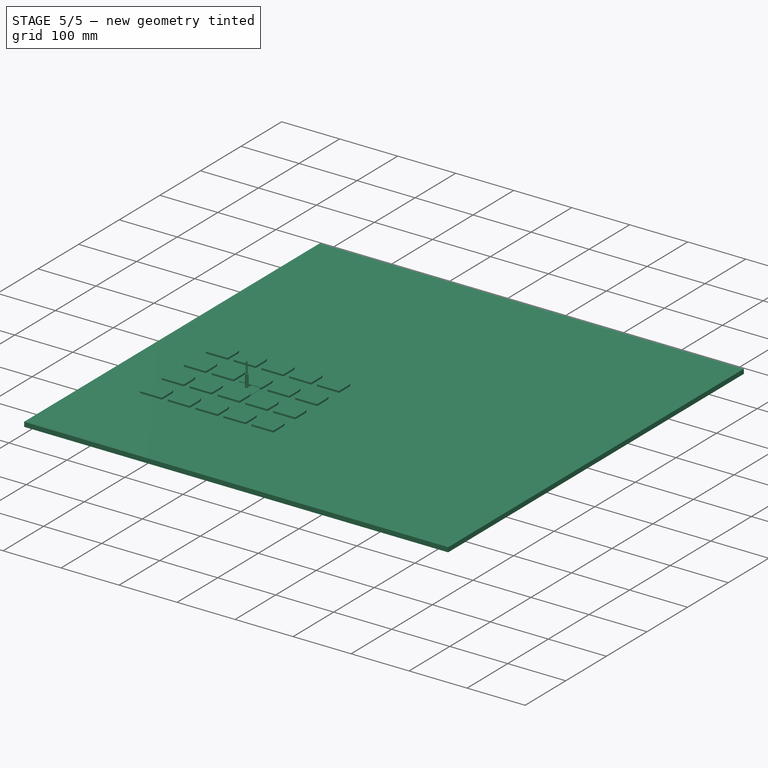
[diagram: stage 5 of 5 — iso view after this stage's code; geometry added in this stage tinted green]
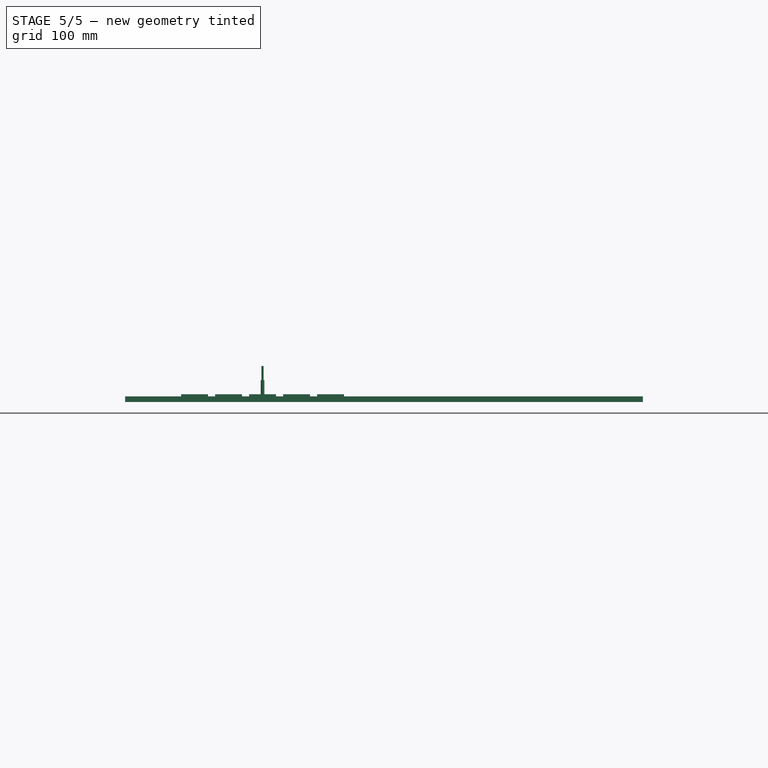
[diagram: stage 5 of 5 — front view after this stage's code; geometry added in this stage tinted green]
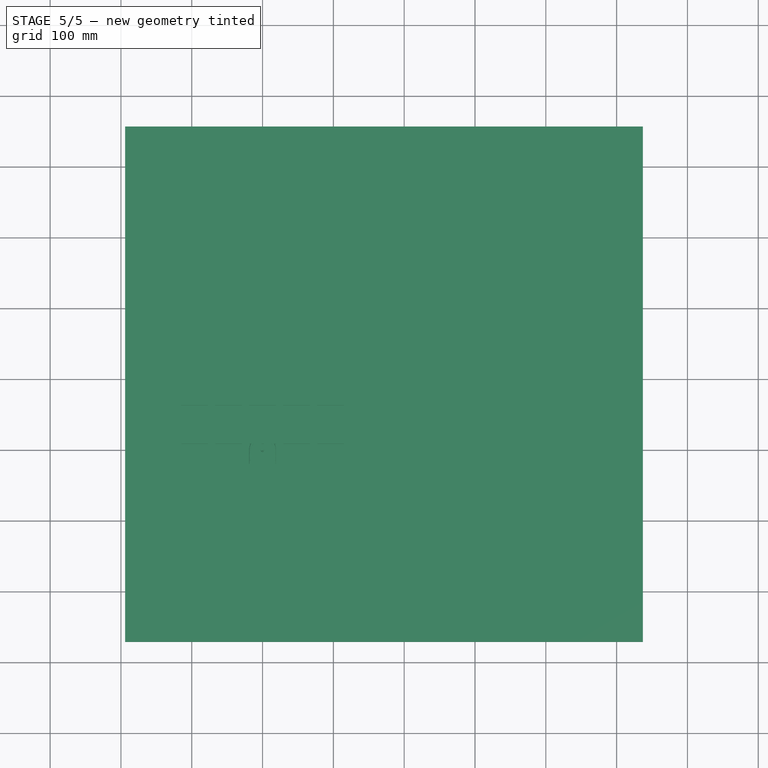
[diagram: stage 5 of 5 — top view after this stage's code; geometry added in this stage tinted green]
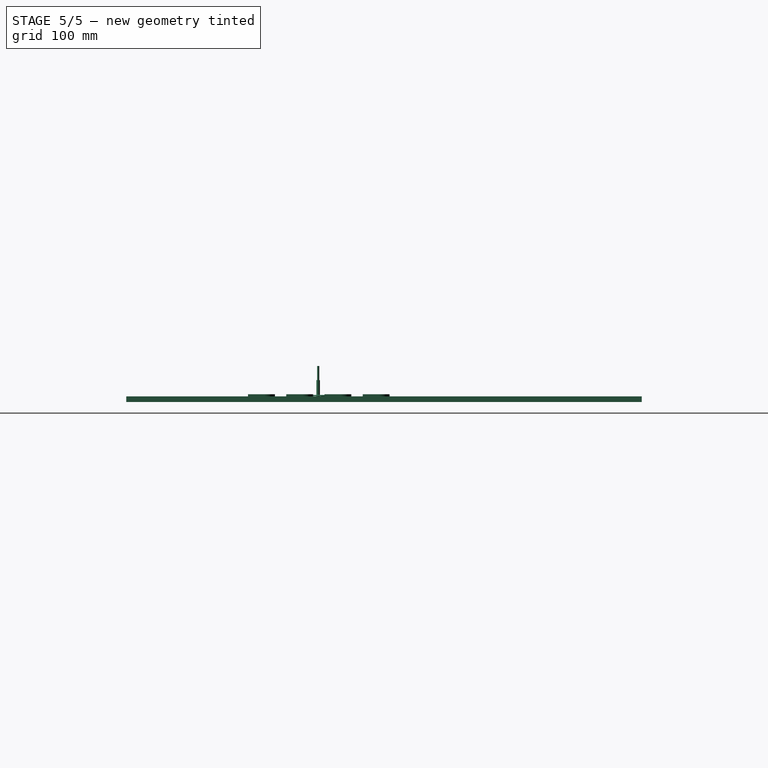
[diagram: stage 5 of 5 — right view after this stage's code; geometry added in this stage tinted green]
FEATURE [PartDesign::Thickness] Thickness
  Base = -> Pad005 [Face6]
  BaseFeature = -> Pad005
  Intersection = false
  Join = 0
  Mode = 0
  SupportTransform = false
  Value = 1
FEATURE [PartDesign::SubShapeBinder] Binder001
  BindCopyOnChange = 0
  BindMode = 0
  ClaimChildren = false
  Context = -> Part001 [Body005.Binder001.]
  Fuse = true
  MakeFace = true
  OffsetFill = false
  OffsetIntersection = false
  OffsetJoinType = 0
  OffsetOpenResult = false
  PartialLoad = false
  Relative = true
  Support = -> [Binder[Edge32,Edge23,Edge26,Edge35,Edge20,Edge29]]
  _Version = 2
FEATURE [Sketcher::SketchObject] Sketch006
  ExternalGeometry = -> [Binder001]
  FullyConstrained = true
  MapMode = 5
  Support = -> [XY_Plane008]
  expr: Constraints[7] = Spreadsheet.HoleRadius + 0.5
  sketch-geometry (4):
    g0: Circle CenterX=-12.7 CenterY=-14 CenterZ=0 NormalX=0 NormalY=0 NormalZ=1 AngleXU=0 Radius=1.77
    g1: Circle CenterX=12.7 CenterY=-14 CenterZ=0 NormalX=0 NormalY=0 NormalZ=1 AngleXU=0 Radius=1.77
    g2: Circle CenterX=-11.43 CenterY=5 CenterZ=0 NormalX=0 NormalY=0 NormalZ=1 AngleXU=0 Radius=1.77
    g3: Circle CenterX=11.43 CenterY=5 CenterZ=0 NormalX=0 NormalY=0 NormalZ=1 AngleXU=0 Radius=1.77
  constraints (8):
    c: Coincident(g0,g-3)
    c: Coincident(g1,g-6)
    c: Coincident(g2,g-8)
    c: Coincident(g3,g-7)
    c: Equal(g0,g1)
    c: Equal(g1,g3)
    c: Equal(g3,g2)
    c: Radius(g0) = 1.77
FEATURE [PartDesign::Pad] Pad006
  BaseFeature = -> Thickness
  Direction = (0,0,1)
  Length = 2
  Length2 = 10
  Profile = -> Sketch006
  ReferenceAxis = -> Sketch006 [N_Axis]
  Type = 0
  expr: Length = Spreadsheet.PCBZOffset
FEATURE [Sketcher::SketchObject] Sketch007
  ExternalGeometry = -> [Pad006]
  FullyConstrained = true
  MapMode = 5
  Support = -> [XY_Plane008]
  expr: Constraints[7] = Spreadsheet.HoleRadius
  sketch-geometry (4):
    g0: Circle CenterX=-11.43 CenterY=5 CenterZ=0 NormalX=0 NormalY=0 NormalZ=1 AngleXU=0 Radius=1.27
    g1: Circle CenterX=11.43 CenterY=5 CenterZ=0 NormalX=0 NormalY=0 NormalZ=1 AngleXU=0 Radius=1.27
    g2: Circle CenterX=12.7 CenterY=-14 CenterZ=0 NormalX=0 NormalY=0 NormalZ=1 AngleXU=0 Radius=1.27
    g3: Circle CenterX=-12.7 CenterY=-14 CenterZ=0 NormalX=0 NormalY=0 NormalZ=1 AngleXU=0 Radius=1.27
  constraints (8):
    c: Coincident(g0,g-3)
    c: Coincident(g1,g-4)
    c: Coincident(g2,g-5)
    c: Coincident(g3,g-6)
    c: Equal(g3,g0)
    c: Equal(g0,g1)
    c: Equal(g1,g2)
    c: Radius(g0) = 1.27
FEATURE [PartDesign::Pad] Pad007
  BaseFeature = -> Pad006
  Direction = (0,0,1)
  Length = 3.6
  Length2 = 10
  Profile = -> Sketch007
  ReferenceAxis = -> Sketch007 [N_Axis]
  Type = 0
  expr: Length = Spreadsheet.PCBZOffset + Spreadsheet.PCBThickness
FEATURE [PartDesign::SubShapeBinder] Binder002
  BindCopyOnChange = 0
  BindMode = 0
  ClaimChildren = false
  Context = -> Part001 [Body005.Binder002.]
  Fuse = true
  MakeFace = true
  OffsetFill = false
  OffsetIntersection = false
  OffsetJoinType = 0
  OffsetOpenResult = false
  PartialLoad = false
  Relative = true
  Support = -> [Part[Body004.]]
  _Version = 2
FEATURE [Sketcher::SketchObject] Sketch008
  ExternalGeometry = -> [Binder002]
  FullyConstrained = true
  MapMode = 5
  Support = -> [Pad007]
  expr: Constraints[1] = Spreadsheet.ConnectorDiameter / 2
  sketch-geometry (1):
    g0: Circle CenterX=0 CenterY=0 CenterZ=0 NormalX=0 NormalY=0 NormalZ=1 AngleXU=0 Radius=3.75
  constraints (2):
    c: Coincident(g0,g-3)
    c: Radius(g0) = 3.75
FEATURE [PartDesign::Hole] Hole
  BaseFeature = -> Pad007
  CustomThreadClearance = 0
  Depth = 25
  DepthType = 0
  Diameter = 7.5
  DrillForDepth = false
  DrillPoint = 1
  DrillPointAngle = 118
  HoleCutCountersinkAngle = 90
  HoleCutCustomValues = false
  HoleCutDepth = 0
  HoleCutDiameter = 6.1
  HoleCutType = 0
  ModelThread = false
  Profile = -> Sketch008
  Tapered = false
  TaperedAngle = 90
  ThreadClass = 0
  ThreadDepth = 25
  ThreadDepthType = 0
  ThreadDirection = 0
  ThreadFit = 0
  ThreadSize = 0
  ThreadType = 0
  Threaded = false
  UseCustomThreadClearance = false
  expr: Diameter = Spreadsheet.ConnectorDiameter
FEATURE [PartDesign::Fillet] Fillet
  Base = -> Hole [Face4]
  BaseFeature = -> Hole
  Radius = 0.1
  Refine = true
  SupportTransform = false
  UseAllEdges = false
FEATURE [PartDesign::SubShapeBinder] Binder003
  BindCopyOnChange = 0
  BindMode = 0
  ClaimChildren = false
  Context = -> Part001 [Body005.Binder003.]
  Fuse = false
  MakeFace = true
  OffsetFill = false
  OffsetIntersection = false
  OffsetJoinType = 0
  OffsetOpenResult = false
  PartialLoad = false
  Relative = true
  Support = -> [Fillet[Edge17,Edge18,Edge16,Edge15,Edge14,Edge13]]
  _Version = 2
FEATURE [PartDesign::FeatureBase] BaseFeature
  BaseFeature = -> Binder003
FEATURE [PartDesign::Pad] Pad008
  BaseFeature = -> BaseFeature
  Direction = (0,0,1)
  Length = 1
  Length2 = 10
  Profile = -> BaseFeature
  Type = 0
  expr: Length = Spreadsheet.WallsThickness + 0.1
FEATURE [App::Part] Part  label="PCB"
  Group = -> [Body,Fillet002,Body004,Sketch003,Pad003]
  Origin = -> Origin001
  Placement = pos=(0,0,2.8) rot=(0,0,1;0rad)
  expr: .Placement.Base.z = Spreadsheet.PCBThickness / 2 + Spreadsheet.PCBZOffset
FEATURE [PartDesign::SubShapeBinder] Binder006
  BindCopyOnChange = 0
  BindMode = 0
  ClaimChildren = false
  Context = -> Body006 [Hole004.Binder006.]
  Fuse = false
  MakeFace = true
  OffsetFill = false
  OffsetIntersection = false
  OffsetJoinType = 0
  OffsetOpenResult = false
  PartialLoad = false
  Relative = true
  Support = -> [Part[Fillet002.Edge2]]
  _Version = 2
FEATURE [PartDesign::SubShapeBinder] Binder008
  BindCopyOnChange = 0
  BindMode = 0
  ClaimChildren = false
  Context = -> Part001 [Body012.Binder008.]
  Fuse = true
  MakeFace = true
  OffsetFill = false
  OffsetIntersection = false
  OffsetJoinType = 0
  OffsetOpenResult = false
  PartialLoad = false
  Relative = true
  Support = -> [Part[Body.Pad.Edge30,Body.Pad.Edge21,Body.Pad.Edge36,Body.Pad.Edge27,Body.Pad.Edge24,Body.Pad.Edge33]]
  _Version = 2
FEATURE [PartDesign::SubShapeBinder] Binder009
  BindCopyOnChange = 0
  BindMode = 0
  ClaimChildren = false
  Context = -> Part001 [Body005.Binder009.]
  Fuse = false
  MakeFace = true
  OffsetFill = false
  OffsetIntersection = false
  OffsetJoinType = 0
  OffsetOpenResult = false
  PartialLoad = false
  Relative = true
  Support = -> [Part[Body.Pad.Edge20,Body.Pad.Edge23]]
  _Version = 2
FEATURE [Sketcher::SketchObject] Sketch010
  ExternalGeometry = -> [Binder009]
  FullyConstrained = true
  MapMode = 5
  Support = -> [Thickness]
  expr: Constraints[3] = Spreadsheet.HoleRadius + 0.5
  sketch-geometry (2):
    g0: Circle CenterX=-7.62 CenterY=0 CenterZ=0 NormalX=0 NormalY=0 NormalZ=1 AngleXU=0 Radius=1.77
    g1: Circle CenterX=7.62 CenterY=0 CenterZ=0 NormalX=0 NormalY=0 NormalZ=1 AngleXU=0 Radius=1.77
  constraints (4):
    c: Coincident(g0,g-3)
    c: Coincident(g1,g-4)
    c: Equal(g0,g1)
    c: Radius(g0) = 1.77
FEATURE [PartDesign::Pad] Pad010
  BaseFeature = -> Fillet
  Direction = (0,0,1)
  Length = 1.4
  Length2 = 10
  Profile = -> Sketch010
  ReferenceAxis = -> Sketch010 [N_Axis]
  Type = 0
  expr: Length = Spreadsheet.PCBZOffset - 0.6
FEATURE [Sketcher::SketchObject] Sketch011
  FullyConstrained = true
  MapMode = 5
  Placement = pos=(0,-19,0) rot=(1,0,0;1.5708rad)
  Support = -> [Pad010]
  expr: Constraints[2] = Spreadsheet.WireHoleDiameter / 2
  sketch-geometry (2):
    g0: Circle CenterX=-16 CenterY=4 CenterZ=0 NormalX=0 NormalY=0 NormalZ=1 AngleXU=0 Radius=0.8
    g1: Circle CenterX=16 CenterY=4 CenterZ=0 NormalX=0 NormalY=0 NormalZ=1 AngleXU=0 Radius=0.8
  constraints (5):
    c: Symmetric(g0,g1,g-2)
    c: Equal(g0,g1)
    c: Radius(g0) = 0.8
    c: DistanceX(g0,g-1) = 16
    c: DistanceY(g-1,g0) = 4
FEATURE [PartDesign::Hole] Hole002
  BaseFeature = -> Pad010
  CustomThreadClearance = 0
  Depth = 10
  DepthType = 0
  Diameter = 1.6
  DrillForDepth = false
  DrillPoint = 1
  DrillPointAngle = 118
  HoleCutCountersinkAngle = 90
  HoleCutCustomValues = false
  HoleCutDepth = 0
  HoleCutDiameter = 6.1
  HoleCutType = 0
  ModelThread = false
  Profile = -> Sketch011
  Refine = true
  Tapered = false
  TaperedAngle = 90
  ThreadClass = 0
  ThreadDepth = 10
  ThreadDepthType = 0
  ThreadDirection = 0
  ThreadFit = 0
  ThreadSize = 0
  ThreadType = 0
  Threaded = false
  UseCustomThreadClearance = false
  expr: Diameter = Spreadsheet.WireHoleDiameter
FEATURE [PartDesign::SubShapeBinder] Binder010
  BindCopyOnChange = 0
  BindMode = 0
  ClaimChildren = false
  Context = -> Part001 [Body005.Binder010.]
  Fuse = false
  MakeFace = true
  OffsetFill = false
  OffsetIntersection = false
  OffsetJoinType = 0
  OffsetOpenResult = false
  PartialLoad = false
  Relative = true
  Support = -> [Hole002[Edge29,Edge27]]
  _Version = 2
FEATURE [Sketcher::SketchObject] Sketch012
  ExternalGeometry = -> [Hole002]
  FullyConstrained = true
  MapMode = 5
  Placement = pos=(0,0,0) rot=(1,0,0;1.5708rad)
  Support = -> [XZ_Plane008]
  expr: Constraints[4] = Spreadsheet.WireHoleDiameter / 2
  sketch-geometry (2):
    g0: LineSegment StartX=-16 StartY=4 StartZ=0 EndX=16 EndY=4 EndZ=0
    g1: Circle CenterX=0 CenterY=4 CenterZ=0 NormalX=0 NormalY=0 NormalZ=1 AngleXU=0 Radius=0.8
  constraints (5):
    c: Coincident(g0,g-3)
    c: Coincident(g0,g-4)
    c: PointOnObject(g1,g-2)
    c: PointOnObject(g1,g0)
    c: Radius(g1) = 0.8
FEATURE [PartDesign::Hole] Hole003
  BaseFeature = -> Hole002
  CustomThreadClearance = 0
  Depth = 25
  DepthType = 0
  Diameter = 1.6
  DrillForDepth = false
  DrillPoint = 1
  DrillPointAngle = 118
  HoleCutCountersinkAngle = 90
  HoleCutCustomValues = false
  HoleCutDepth = 0
  HoleCutDiameter = 6.1
  HoleCutType = 0
  ModelThread = false
  Profile = -> Sketch012
  Tapered = false
  TaperedAngle = 90
  ThreadClass = 0
  ThreadDepth = 25
  ThreadDepthType = 0
  ThreadDirection = 0
  ThreadFit = 0
  ThreadSize = 0
  ThreadType = 0
  Threaded = false
  UseCustomThreadClearance = false
  expr: Diameter = Spreadsheet.WireHoleDiameter
FEATURE [PartDesign::Fillet] Fillet004
  Base = -> Hole003 [Edge38,Edge35]
  BaseFeature = -> Hole003
  Radius = 0.5
  SupportTransform = false
  UseAllEdges = false
FEATURE [PartDesign::Fillet] Fillet005
  Base = -> Pad008
  BaseFeature = -> Pad008
  Radius = 0.5
  SupportTransform = false
  UseAllEdges = false
FEATURE [PartDesign::SubShapeBinder] Binder011
  BindCopyOnChange = 1
  BindMode = 0
  ClaimChildren = false
  Context = -> Part001 [Body006.Binder011.]
  Fuse = true
  MakeFace = true
  OffsetFill = false
  OffsetIntersection = false
  OffsetJoinType = 0
  OffsetOpenResult = false
  PartialLoad = false
  Placement = pos=(0,0,8.1) rot=(0,0,1;0rad)
  Refine = true
  Relative = true
  Support = -> [Body005[Fillet.Edge23,Fillet.Edge25,Fillet.Edge9,Fillet.Edge24]]
  _Version = 2
FEATURE [PartDesign::Pad] Pad011
  BaseFeature = -> Fillet005
  Direction = (0,0,1)
  Length = 0.8
  Length2 = 10
  Profile = -> Binder011
  Reversed = true
  Type = 0
FEATURE [PartDesign::ShapeBinder] ShapeBinder
  Placement = pos=(6.23538,3.6,1e-15) rot=(0,0,1;2.0944rad)
  Support = -> [PolarPattern]
  TraceSupport = false
FEATURE [PartDesign::ShapeBinder] ShapeBinder001
  Placement = pos=(0,-7.2,-2e-15) rot=(0,0,1;0rad)
  Support = -> [PolarPattern]
  TraceSupport = false
FEATURE [PartDesign::ShapeBinder] ShapeBinder002
  Placement = pos=(-6.23538,3.6,1e-15) rot=(0,0,1;4.18879rad)
  Support = -> [PolarPattern]
  TraceSupport = false
FEATURE [PartDesign::Body] Body011  label="EnclosureSupportBody"
  Group = -> [Sketch022,Pad017,PolarPattern]
  Origin = -> Origin015
  Tip = -> PolarPattern
FEATURE [PartDesign::Pocket] Pocket
  BaseFeature = -> Fillet004
  Direction = (-0.866025,-0.5,-1e-16)
  Length = 5
  Length2 = 5
  Profile = -> ShapeBinder
  Refine = true
  Reversed = true
  Type = 1
FEATURE [PartDesign::Pocket] Pocket001
  BaseFeature = -> Pocket
  Direction = (0,1,2e-16)
  Length = 5
  Length2 = 5
  Profile = -> ShapeBinder001
  Reversed = true
  Type = 1
FEATURE [PartDesign::Pocket] Pocket002
  BaseFeature = -> Pocket001
  Direction = (0.866025,-0.5,-1e-16)
  Length = 5
  Length2 = 5
  Profile = -> ShapeBinder002
  Reversed = true
  Type = 1
FEATURE [PartDesign::Body] Body005  label="ContainerBottomAND"
  Group = -> [Binder,Sketch005,Pad005,Thickness,Binder001,Sketch006,Pad006,Sketch007,Pad007,Sketch008,Binder002,Hole,Fillet,Binder009,Sketch010,Pad010,Sketch011,Hole002,Binder010,Sketch012,Hole003,Fillet004,ShapeBinder,ShapeBinder001,ShapeBinder002,Pocket,Pocket001,Pocket002]
  Origin = -> Origin008
  Tip = -> Pocket002
FEATURE [Sketcher::SketchObject] Sketch023
  AttachmentOffset = pos=(0,7.4,0) rot=(0,1,0;1.5708rad)
  FullyConstrained = true
  MapMode = 5
  Placement = pos=(0,-17.7,7.4) rot=(0.57735,-0.57735,-0.57735;2.0944rad)
  expr: .AttachmentOffset.Base.y = Spreadsheet.ClosingTabZOffset + Spreadsheet.WallsThickness * 3 + 0.05
  expr: Constraints[12] = Spreadsheet.WallsThickness * 2
  expr: Constraints[13] = Spreadsheet.WallsThickness * 2
  expr: Constraints[14] = Spreadsheet.WallsThickness + 0.1
  expr: Constraints[15] = Spreadsheet.WallsThickness
  expr: Constraints[16] = Spreadsheet.WallsThickness * 2
  sketch-geometry (6):
    g0: LineSegment StartX=0 StartY=0 StartZ=0 EndX=-1.8 EndY=0 EndZ=0
    g1: LineSegment StartX=-1.8 StartY=0 StartZ=0 EndX=-0.8 EndY=-2.7 EndZ=0
    g2: LineSegment StartX=-0.8 StartY=-2.7 StartZ=0 EndX=1 EndY=-2.7 EndZ=0
    g3: LineSegment StartX=1 StartY=-2.7 StartZ=0 EndX=1 EndY=-1.8 EndZ=0
    g4: LineSegment StartX=1 StartY=-1.8 StartZ=0 EndX=0 EndY=-1.8 EndZ=0
    g5: LineSegment StartX=0 StartY=-1.8 StartZ=0 EndX=0 EndY=0 EndZ=0
  constraints (17):
    c: Coincident(g-1,g0)
    c: PointOnObject(g0,g-1)
    c: Coincident(g0,g1)
    c: Coincident(g1,g2)
    c: Horizontal(g2)
    c: Coincident(g2,g3)
    c: Vertical(g3)
    c: Coincident(g3,g4)
    c: PointOnObject(g4,g-2)
    c: Horizontal(g4)
    c: Coincident(g4,g5)
    c: Coincident(g5,g0)
    c: DistanceX(g0,g0) = 1.8
    c: DistanceY(g5,g5) = 1.8
    c: DistanceX(g4,g4) = 1
    c: DistanceY(g3,g3) = 0.9
    c: DistanceX(g2,g2) = 1.8
FEATURE [PartDesign::Pad] Pad018
  Direction = (-1,0,0)
  Length = 2
  Length2 = 10
  Midplane = true
  Placement = pos=(0,-17.7,7.4) rot=(0.57735,-0.57735,-0.57735;2.0944rad)
  Profile = -> Sketch023
  ReferenceAxis = -> Sketch023 [N_Axis]
  Type = 0
  expr: Length = Spreadsheet.ClosingTabWidth
FEATURE [PartDesign::Fillet] Fillet008
  Base = -> Pad018 [Edge1,Edge2,Edge3,Edge4,Edge5,Edge6,Edge7,Edge8,Edge9,Edge10,Edge11,Edge12,Edge13,Edge14,Edge15,Edge16,Edge17,Edge18]
  BaseFeature = -> Pad018
  Placement = pos=(0,-17.7,7.4) rot=(0.57735,-0.57735,-0.57735;2.0944rad)
  Radius = 0.2
  SupportTransform = false
  UseAllEdges = false
FEATURE [PartDesign::Body] Body012  label="ClosingTab1"
  Group = -> [Sketch023,Pad018,Fillet008]
  Origin = -> Origin016
  Tip = -> Fillet008
FEATURE [PartDesign::FeatureBase] Clone
  BaseFeature = -> Fillet008
  Placement = pos=(0,-17.7,7.4) rot=(0.57735,-0.57735,-0.57735;2.0944rad)
FEATURE [PartDesign::Body] Body013  label="ClosingTab2"
  Group = -> [Clone]
  Origin = -> Origin017
  Placement = pos=(0,0,0) rot=(0,0,1;2.0944rad)
  Tip = -> Clone
FEATURE [PartDesign::FeatureBase] Clone001
  BaseFeature = -> Fillet008
  Placement = pos=(0,-17.7,7.4) rot=(0.57735,-0.57735,-0.57735;2.0944rad)
FEATURE [PartDesign::Body] Body014  label="ClosingTab3"
  Group = -> [Clone001]
  Origin = -> Origin018
  Placement = pos=(0,0,0) rot=(0,0,1;4.18879rad)
  Tip = -> Clone001
FEATURE [PartDesign::Pocket] Pocket003
  BaseFeature = -> Pad011
  Direction = (0,0,-1)
  Length = 10
  Length2 = 10
  Profile = -> Binder006
  Type = 4
  expr: Length = 10 mm
FEATURE [PartDesign::Boolean] Boolean
  BaseFeature = -> Pocket003
  Group = -> [Body012,Body013,Body014]
  Type = 0
FEATURE [PartDesign::Fillet] Fillet009
  Base = -> Boolean [Edge19,Edge20,Edge18,Edge7,Edge4,Edge10]
  BaseFeature = -> Boolean
  Radius = 0.99
  Refine = true
  SupportTransform = false
  UseAllEdges = false
FEATURE [PartDesign::Pad] Pad019
  BaseFeature = -> Fillet009
  Direction = (0,0,-1)
  Length = 3.6
  Length2 = 10
  Profile = -> Sketch013
  ReferenceAxis = -> Sketch013 [N_Axis]
  Type = 0
  expr: Length = Spreadsheet.OutsideBoxThickness - Spreadsheet.PCBThickness - Spreadsheet.PCBZOffset - 2.8
FEATURE [PartDesign::Fillet] Fillet010
  Base = -> Pad019 [Edge63,Edge64,Edge66,Edge67,Edge65,Edge46]
  BaseFeature = -> Pad019
  Radius = 0.3
  SupportTransform = false
  UseAllEdges = false
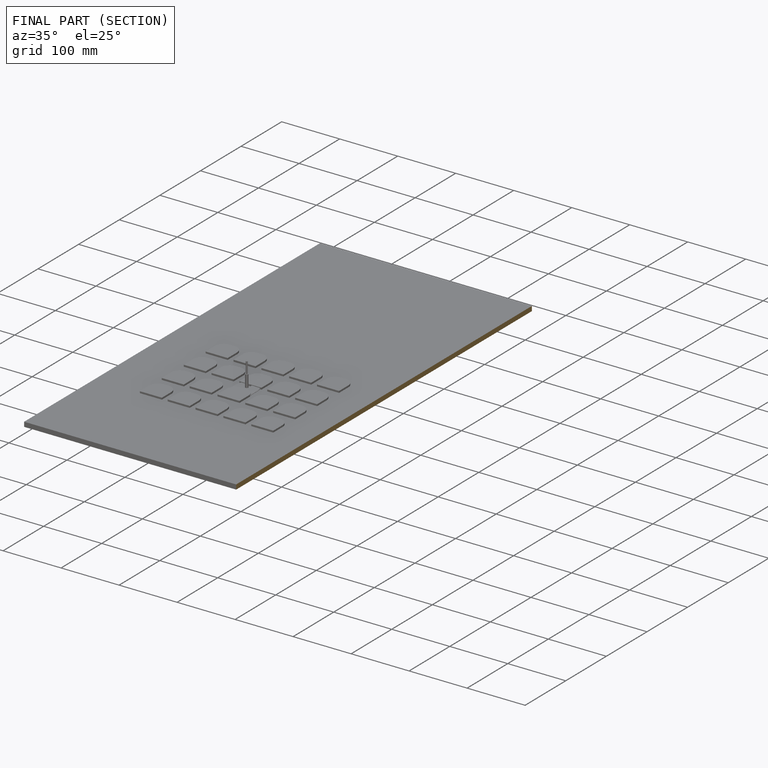
[diagram: finished part — half-section view (interior)]
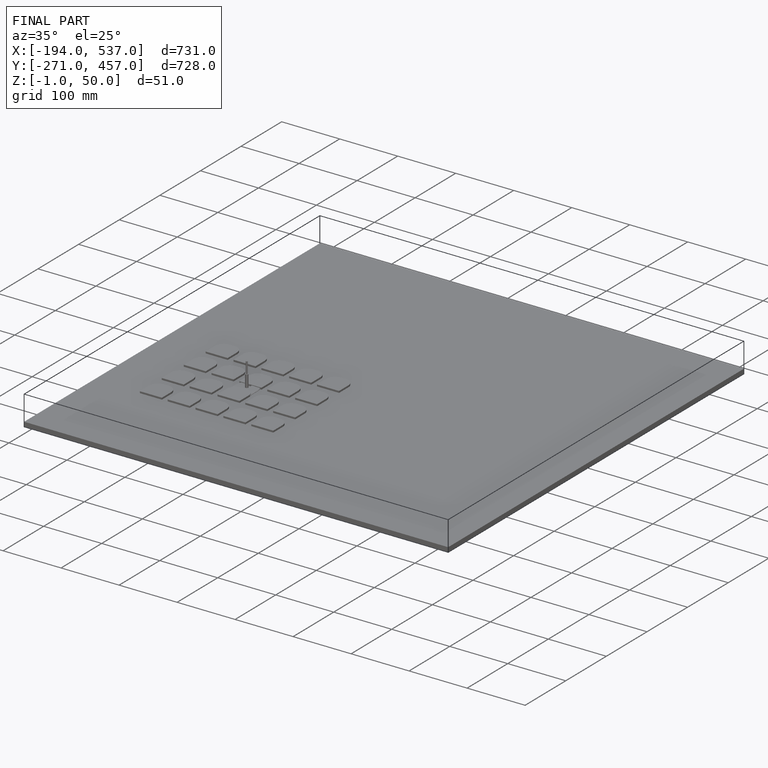
[diagram: finished part — iso view with bounding-box wireframe]
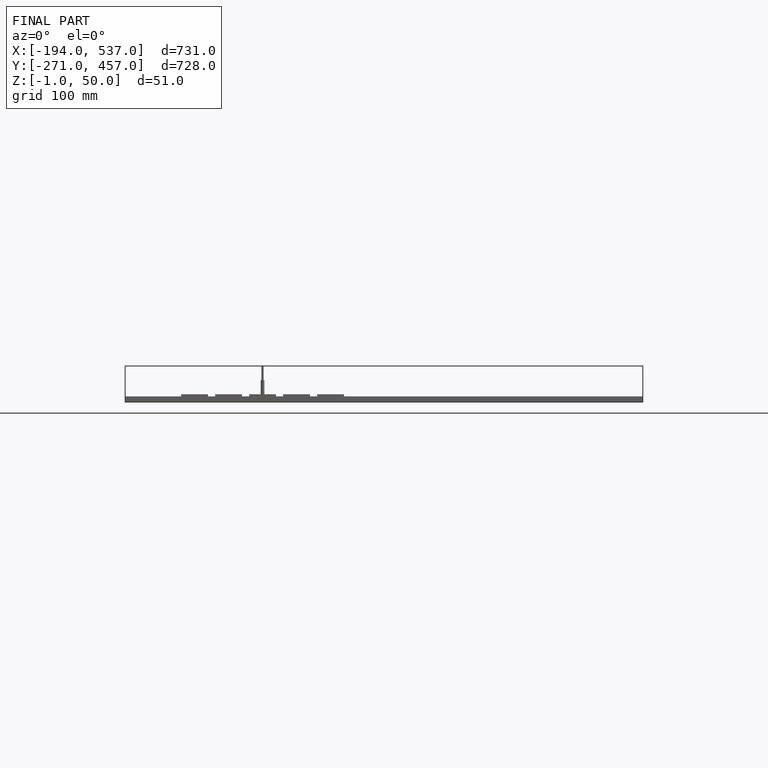
[diagram: finished part — front view with bounding-box wireframe]
